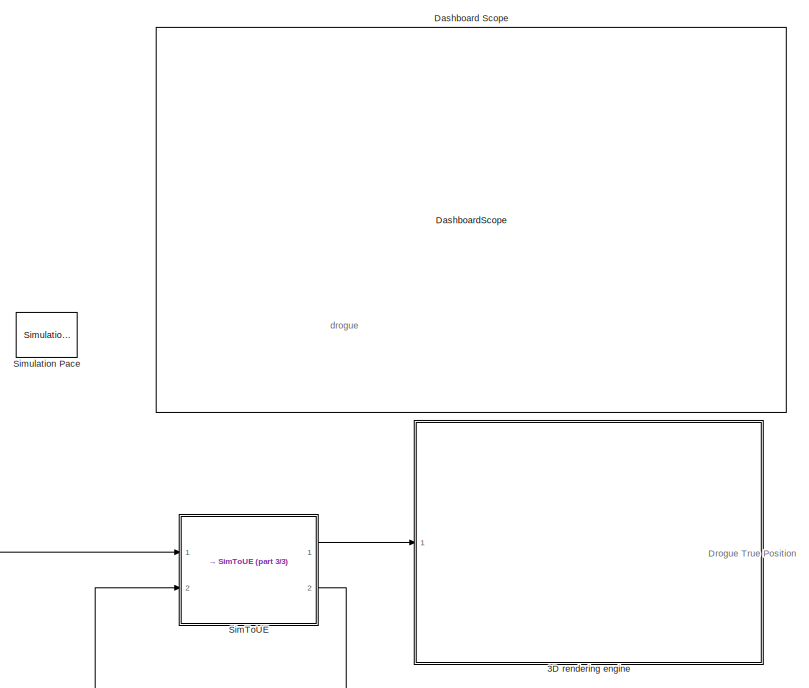
[diagram: root canvas - part 1/3, top right region]
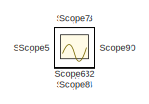
[diagram: root canvas - part 2/3, top left region]
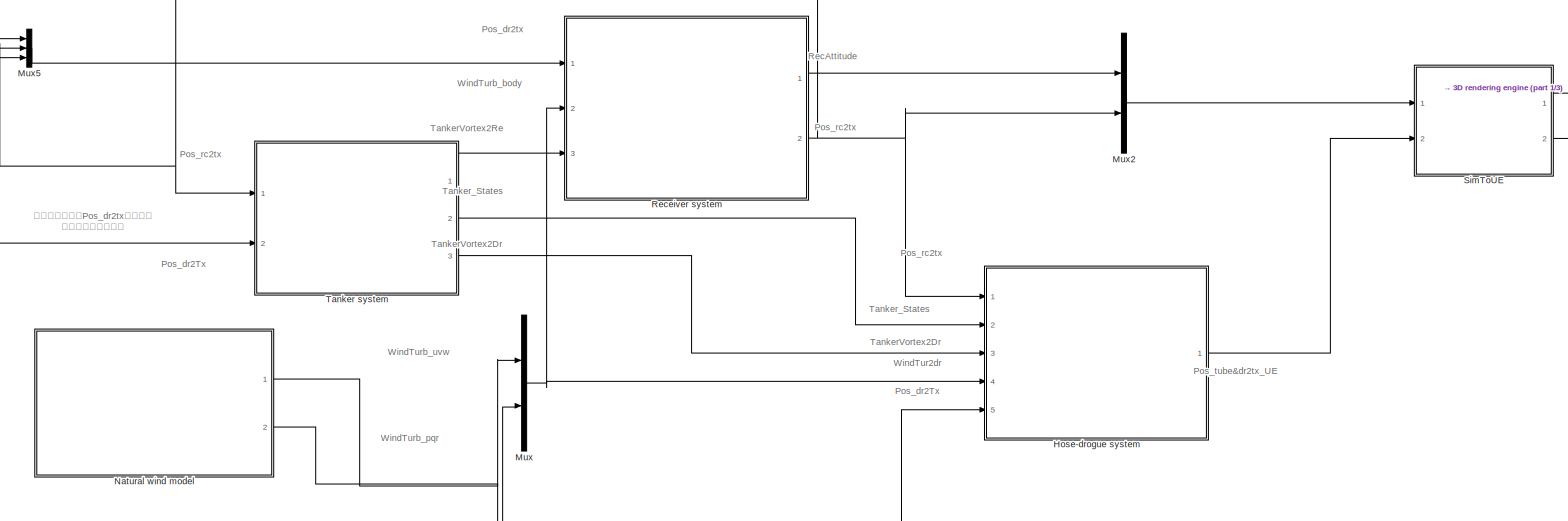
[diagram: root canvas - part 3/3, central region]
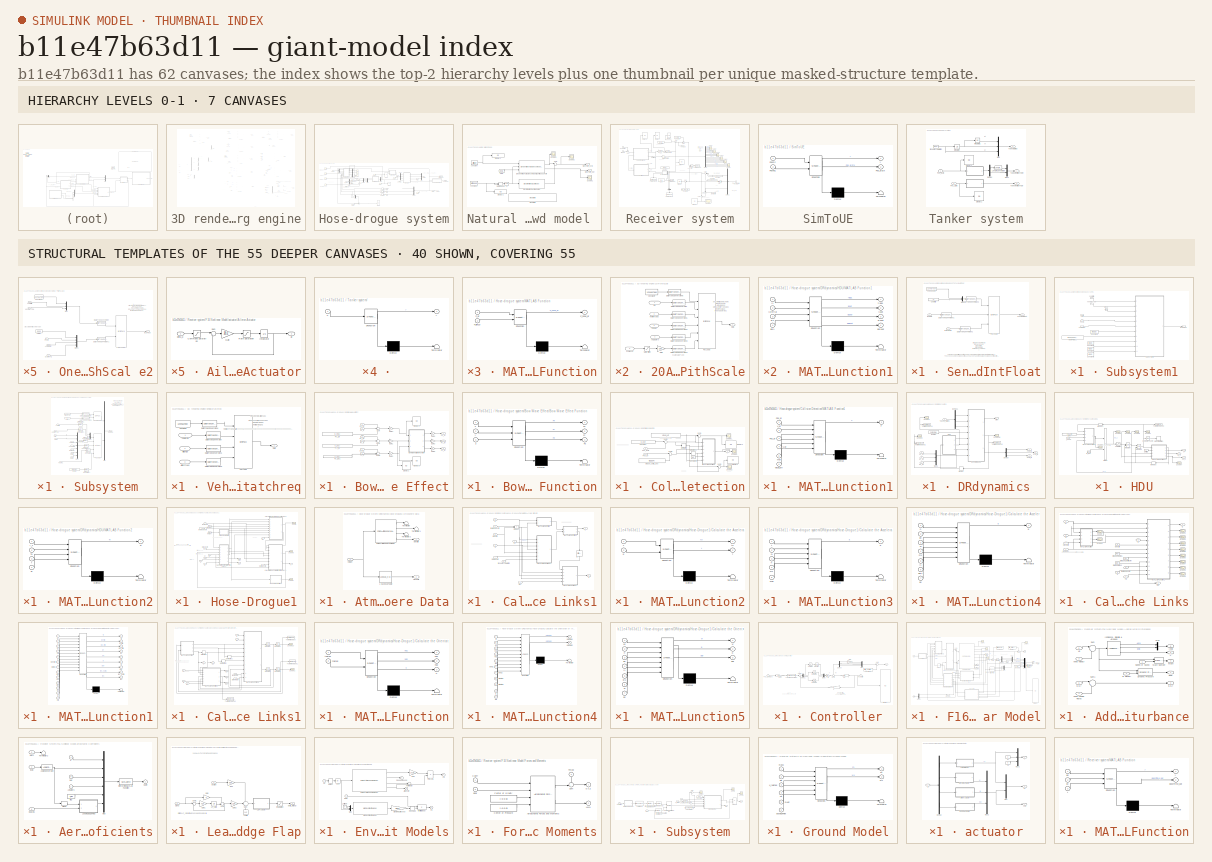
[diagram: thumbnail index - top-2 hierarchy levels (7 canvases) + 40 structural-template representatives of the remaining 55 canvases]
MODEL slx_b11e47b63d11
KIND model
CONFIG AbsTol = 1e-4
CONFIG EnableMultiTasking = on
CONFIG FixedStep = 0.01
CONFIG InitFcn = F16_Init
CONFIG MaxStep = auto
CONFIG MinStep = auto
CONFIG RelTol = 1e-5
CONFIG SampleTimeConstraint = Unconstrained
CONFIG SolverName = ode3
CONFIG StartTime = 0.0
CONFIG StopTime = 270
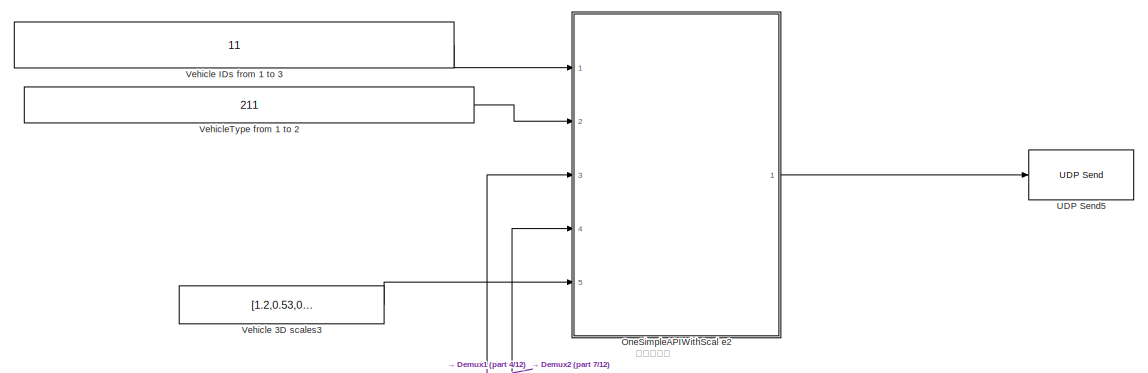
[diagram: 3D rendering engine - part 1/12, top center region]
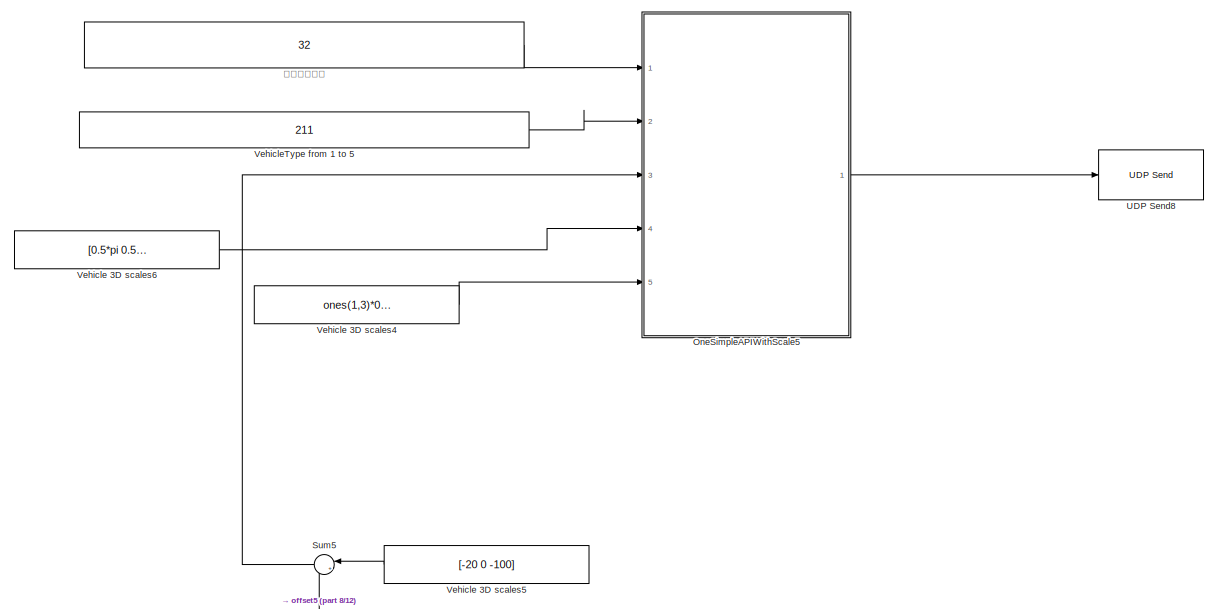
[diagram: 3D rendering engine - part 2/12, top right region]
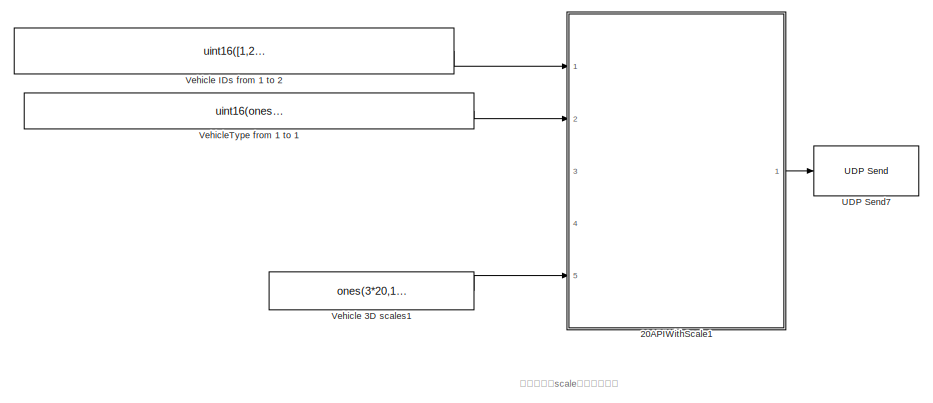
[diagram: 3D rendering engine - part 3/12, top left region]
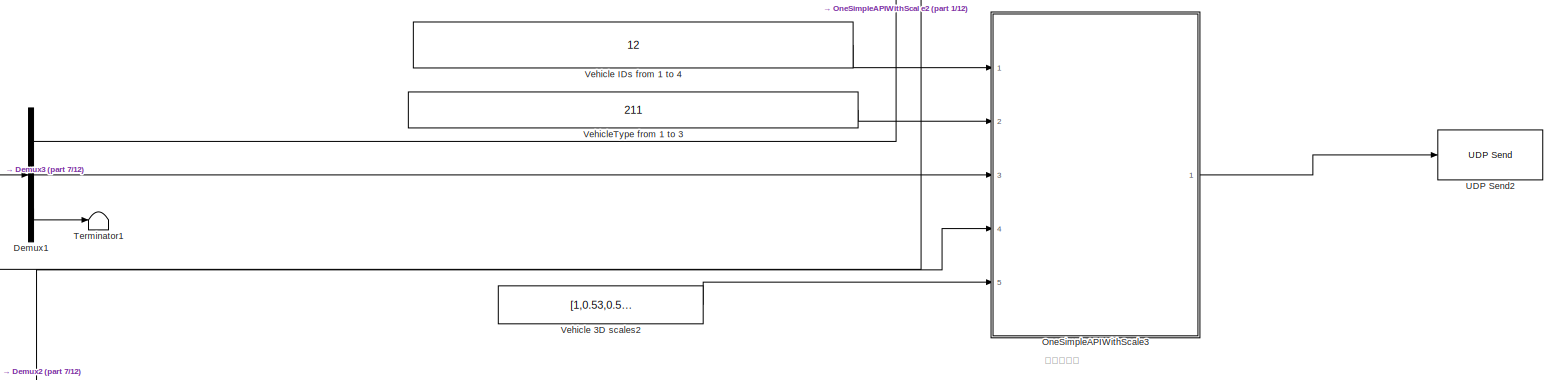
[diagram: 3D rendering engine - part 4/12, top center region]
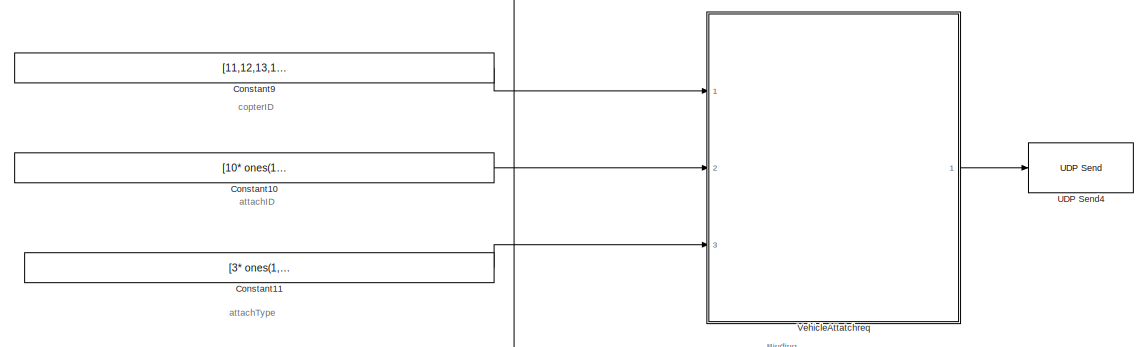
[diagram: 3D rendering engine - part 5/12, middle right region]
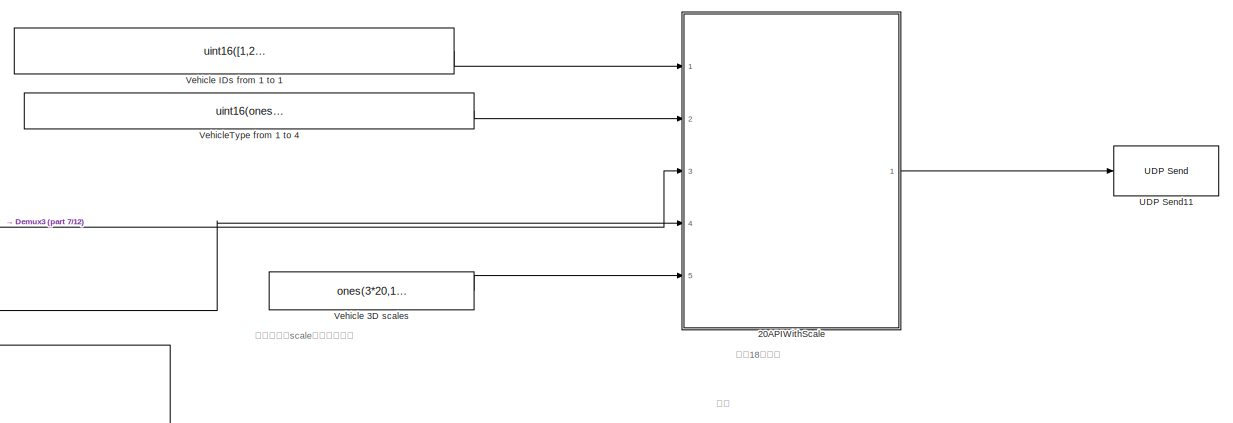
[diagram: 3D rendering engine - part 6/12, central region]
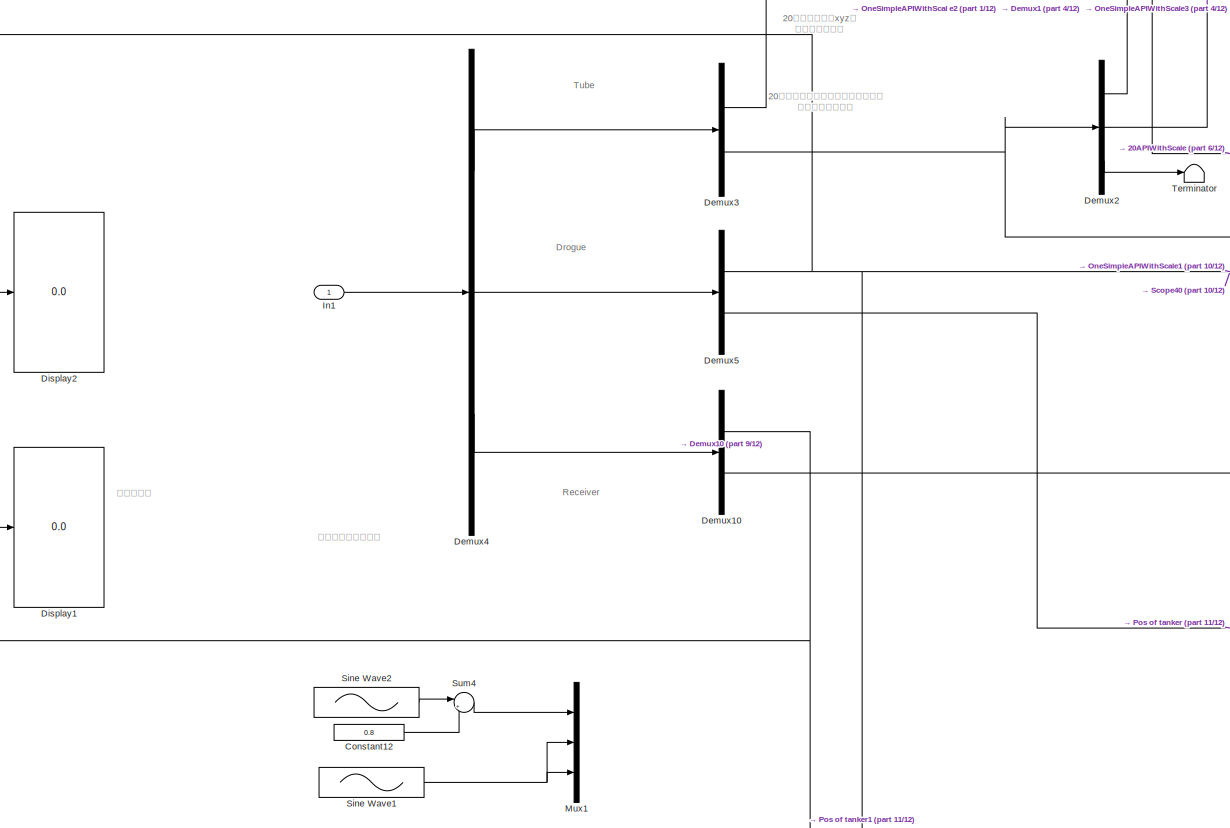
[diagram: 3D rendering engine - part 7/12, middle left region]
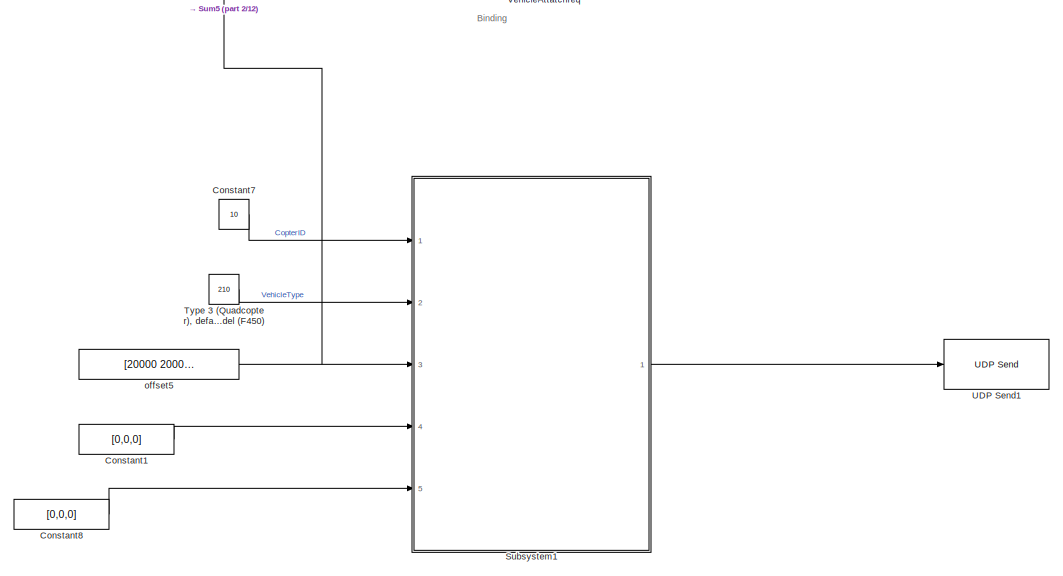
[diagram: 3D rendering engine - part 8/12, middle right region]
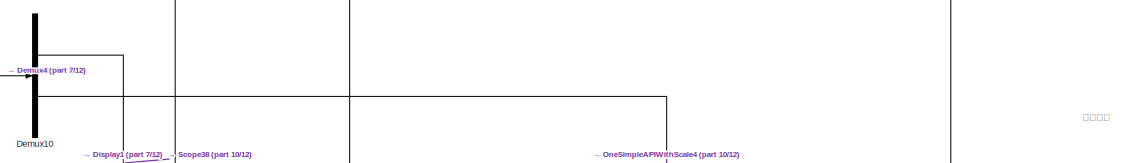
[diagram: 3D rendering engine - part 9/12, middle left region]
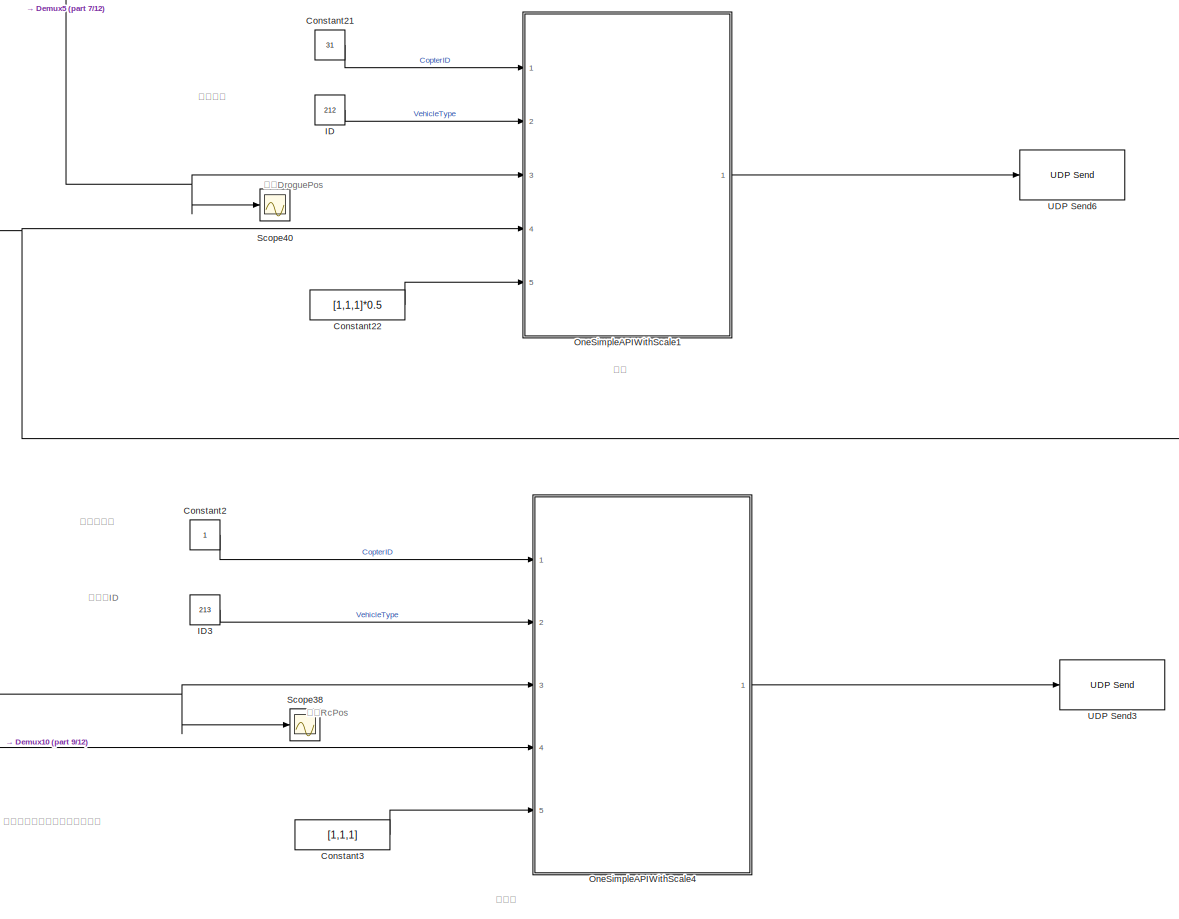
[diagram: 3D rendering engine - part 10/12, central region]
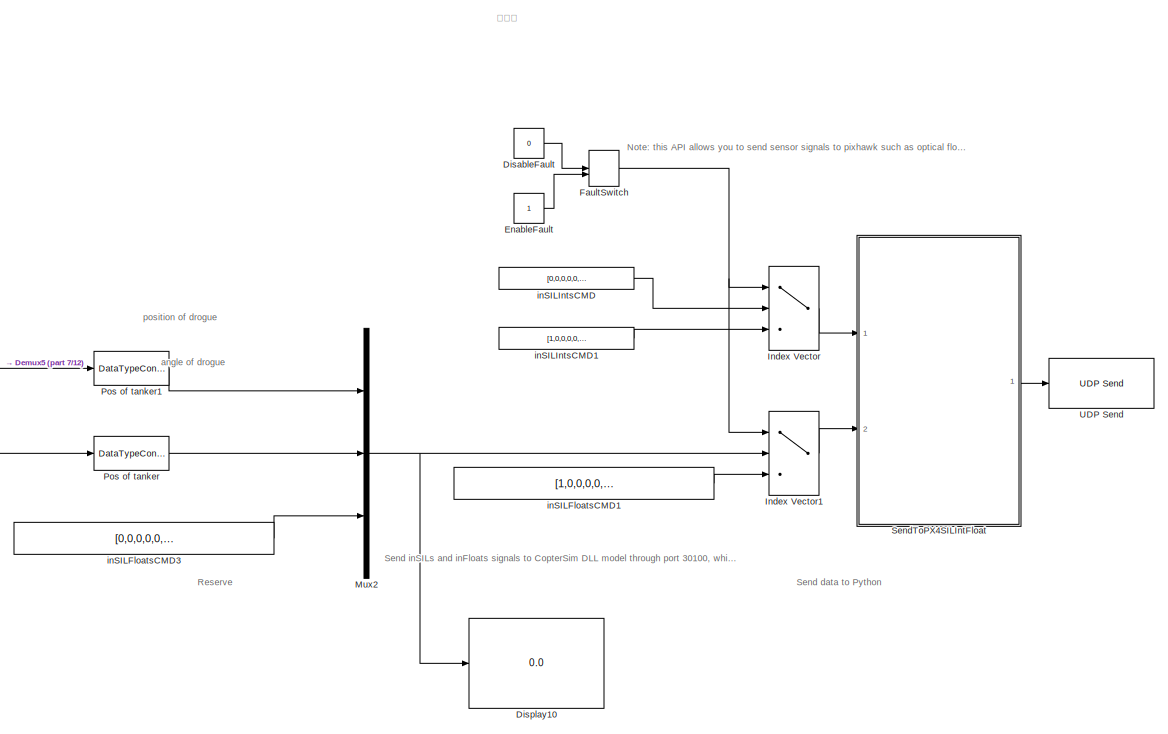
[diagram: 3D rendering engine - part 11/12, bottom right region]
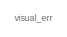
[diagram: 3D rendering engine - part 12/12, bottom center region]
BLOCK [SubSystem] 3D rendering engine
  Ports = [1]
  RequestExecContextInheritance = off
BLOCK [SubSystem] 3D rendering engine/20APIWithScale
  Ports = [5, 1]
  RequestExecContextInheritance = off
BLOCK [Inport] 3D rendering engine/20APIWithScale/AngEulers
  Port = 4
  PortDimensions = 60
BLOCK [Constant] 3D rendering engine/20APIWithScale/Constant7
  Value = 1234567890
BLOCK [DataTypeConversion] 3D rendering engine/20APIWithScale/Data Type Conversion
  OutDataTypeStr = uint16
  RndMeth = Floor
  SaturateOnIntegerOverflow = off
BLOCK [DataTypeConversion] 3D rendering engine/20APIWithScale/Data Type Conversion1
  OutDataTypeStr = uint16
  RndMeth = Floor
  SaturateOnIntegerOverflow = off
BLOCK [DataTypeConversion] 3D rendering engine/20APIWithScale/Data Type Conversion2
  OutDataTypeStr = single
  RndMeth = Floor
  SaturateOnIntegerOverflow = off
BLOCK [DataTypeConversion] 3D rendering engine/20APIWithScale/Data Type Conversion3
  OutDataTypeStr = single
  RndMeth = Floor
  SaturateOnIntegerOverflow = off
BLOCK [DataTypeConversion] 3D rendering engine/20APIWithScale/Data Type Conversion4
  OutDataTypeStr = uint16
  RndMeth = Floor
  SaturateOnIntegerOverflow = off
BLOCK [DataTypeConversion] 3D rendering engine/20APIWithScale/Data Type Conversion5
  OutDataTypeStr = int32
  RndMeth = Floor
  SaturateOnIntegerOverflow = off
BLOCK [Gain] 3D rendering engine/20APIWithScale/Gain
  Gain = 100
BLOCK [Inport] 3D rendering engine/20APIWithScale/IDs
  PortDimensions = 20
BLOCK [Outport] 3D rendering engine/20APIWithScale/Out1
  VectorParamsAs1DForOutWhenUnconnected = off
BLOCK [Reference] 3D rendering engine/20APIWithScale/PayLoad  REF=etargetslib/Byte Pack
  Ports = [6, 1]
  SourceBlock = etargetslib/Byte Pack
  SourceProductBaseCode = ME
  SourceType = Byte pack
BLOCK [Inport] 3D rendering engine/20APIWithScale/PosEs
  Port = 3
  PortDimensions = 60
BLOCK [Saturate] 3D rendering engine/20APIWithScale/Saturation
  LowerLimit = 0.01
  UpperLimit = 655.35
BLOCK [Inport] 3D rendering engine/20APIWithScale/VehileTypes
  Port = 2
  PortDimensions = 20
BLOCK [Inport] 3D rendering engine/20APIWithScale/scaleXYZ
  Port = 5
  PortDimensions = 60
BLOCK [SubSystem] 3D rendering engine/20APIWithScale1
  Commented = on
  Ports = [5, 1]
  RequestExecContextInheritance = off
BLOCK [Inport] 3D rendering engine/20APIWithScale1/AngEulers
  Port = 4
  PortDimensions = 60
BLOCK [Constant] 3D rendering engine/20APIWithScale1/Constant7
  Value = 1234567890
BLOCK [DataTypeConversion] 3D rendering engine/20APIWithScale1/Data Type Conversion
  OutDataTypeStr = uint16
  RndMeth = Floor
  SaturateOnIntegerOverflow = off
BLOCK [DataTypeConversion] 3D rendering engine/20APIWithScale1/Data Type Conversion1
  OutDataTypeStr = uint16
  RndMeth = Floor
  SaturateOnIntegerOverflow = off
BLOCK [DataTypeConversion] 3D rendering engine/20APIWithScale1/Data Type Conversion2
  OutDataTypeStr = single
  RndMeth = Floor
  SaturateOnIntegerOverflow = off
BLOCK [DataTypeConversion] 3D rendering engine/20APIWithScale1/Data Type Conversion3
  OutDataTypeStr = single
  RndMeth = Floor
  SaturateOnIntegerOverflow = off
BLOCK [DataTypeConversion] 3D rendering engine/20APIWithScale1/Data Type Conversion4
  OutDataTypeStr = uint16
  RndMeth = Floor
  SaturateOnIntegerOverflow = off
BLOCK [DataTypeConversion] 3D rendering engine/20APIWithScale1/Data Type Conversion5
  OutDataTypeStr = int32
  RndMeth = Floor
  SaturateOnIntegerOverflow = off
BLOCK [Gain] 3D rendering engine/20APIWithScale1/Gain
  Gain = 100
BLOCK [Inport] 3D rendering engine/20APIWithScale1/IDs
  PortDimensions = 20
BLOCK [Outport] 3D rendering engine/20APIWithScale1/Out1
  VectorParamsAs1DForOutWhenUnconnected = off
BLOCK [Reference] 3D rendering engine/20APIWithScale1/PayLoad  REF=etargetslib/Byte Pack
  Ports = [6, 1]
  SourceBlock = etargetslib/Byte Pack
  SourceProductBaseCode = ME
  SourceType = Byte pack
BLOCK [Inport] 3D rendering engine/20APIWithScale1/PosEs
  Port = 3
  PortDimensions = 60
BLOCK [Saturate] 3D rendering engine/20APIWithScale1/Saturation
  LowerLimit = 0.01
  UpperLimit = 655.35
BLOCK [Inport] 3D rendering engine/20APIWithScale1/VehileTypes
  Port = 2
  PortDimensions = 20
BLOCK [Inport] 3D rendering engine/20APIWithScale1/scaleXYZ
  Port = 5
  PortDimensions = 60
BLOCK [Constant] 3D rendering engine/Constant1
  Value = [0,0,0]
BLOCK [Constant] 3D rendering engine/Constant10
  Value = [10* ones(1,22),zeros(1,3)]
BLOCK [Constant] 3D rendering engine/Constant11
  Value = [3* ones(1,22),zeros(1,3)]
BLOCK [Constant] 3D rendering engine/Constant12
  Commented = on
  Value = 0.8
BLOCK [Constant] 3D rendering engine/Constant2
BLOCK [Constant] 3D rendering engine/Constant21
  Value = 31
BLOCK [Constant] 3D rendering engine/Constant22
  Value = [1,1,1]*0.5
BLOCK [Constant] 3D rendering engine/Constant3
  Value = [1,1,1]
BLOCK [Constant] 3D rendering engine/Constant7
  Value = 10
BLOCK [Constant] 3D rendering engine/Constant8
  Value = [0,0,0]
BLOCK [Constant] 3D rendering engine/Constant9
  Value = [11,12,13,14,15,16,17,18,19,20,21,22,23,24,25,26,27,28,29,30,31,1,zeros(1,3)]
BLOCK [Demux] 3D rendering engine/Demux1
  Outputs = [3,3,54]
  Ports = [1, 3]
BLOCK [Demux] 3D rendering engine/Demux10
  Outputs = [3,3]
  Ports = [1, 2]
BLOCK [Demux] 3D rendering engine/Demux2
  Outputs = [3,3,54]
  Ports = [1, 3]
BLOCK [Demux] 3D rendering engine/Demux3
  Outputs = [60,60]
  Ports = [1, 2]
BLOCK [Demux] 3D rendering engine/Demux4
  Outputs = [120,6,6]
  Ports = [1, 3]
BLOCK [Demux] 3D rendering engine/Demux5
  Outputs = [3,3]
  Ports = [1, 2]
BLOCK [Constant] 3D rendering engine/DisableFault
  Value = 0
BLOCK [Display] 3D rendering engine/Display1
  Decimation = 1
  Ports = [1]
BLOCK [Display] 3D rendering engine/Display10
  Decimation = 1
  Ports = [1]
BLOCK [Display] 3D rendering engine/Display2
  Decimation = 1
  Ports = [1]
BLOCK [Constant] 3D rendering engine/EnableFault
BLOCK [ManualSwitch] 3D rendering engine/FaultSwitch
BLOCK [Constant] 3D rendering engine/ID
  NameLocation = left
  Value = 212
BLOCK [Constant] 3D rendering engine/ID3
  NameLocation = left
  Value = 213
BLOCK [Inport] 3D rendering engine/In1
BLOCK [MultiPortSwitch] 3D rendering engine/Index Vector
  DataPortOrder = Zero-based contiguous
  InputSameDT = off
  Inputs = 2
  Ports = [3, 1]
  SaturateOnIntegerOverflow = off
  zeroidx = on
BLOCK [MultiPortSwitch] 3D rendering engine/Index Vector1
  DataPortOrder = Zero-based contiguous
  InputSameDT = off
  Inputs = 2
  Ports = [3, 1]
  SaturateOnIntegerOverflow = off
  zeroidx = on
BLOCK [Mux] 3D rendering engine/Mux1
  Commented = on
  DisplayOption = bar
  Inputs = 3
  Ports = [3, 1]
BLOCK [Mux] 3D rendering engine/Mux2
  DisplayOption = bar
  Inputs = [3 3 14]
  Ports = [3, 1]
BLOCK [SubSystem] 3D rendering engine/OneSimpleAPIWithScal e2
  Ports = [5, 1]
  RequestExecContextInheritance = off
BLOCK [Inport] 3D rendering engine/OneSimpleAPIWithScal e2/AngEuler
  Port = 4
  PortDimensions = 3
BLOCK [Constant] 3D rendering engine/OneSimpleAPIWithScal e2/Constant7
  Value = 1234567890
BLOCK [DataTypeConversion] 3D rendering engine/OneSimpleAPIWithScal e2/Data Type Conversion
  OutDataTypeStr = int32
  RndMeth = Floor
  SaturateOnIntegerOverflow = off
BLOCK [DataTypeConversion] 3D rendering engine/OneSimpleAPIWithScal e2/Data Type Conversion1
  OutDataTypeStr = single
  RndMeth = Floor
  SaturateOnIntegerOverflow = off
BLOCK [Mux] 3D rendering engine/OneSimpleAPIWithScal e2/Mux
  DisplayOption = bar
  Inputs = 3
  Ports = [3, 1]
BLOCK [Mux] 3D rendering engine/OneSimpleAPIWithScal e2/Mux1
  DisplayOption = bar
  Ports = [4, 1]
BLOCK [Constant] 3D rendering engine/OneSimpleAPIWithScal e2/PWMs
  Value = 3000
BLOCK [Reference] 3D rendering engine/OneSimpleAPIWithScal e2/PayLoad  REF=etargetslib/Byte Pack
  Ports = [2, 1]
  SourceBlock = etargetslib/Byte Pack
  SourceProductBaseCode = ME
  SourceType = Byte pack
BLOCK [Inport] 3D rendering engine/OneSimpleAPIWithScal e2/PosE
  Port = 3
  PortDimensions = 3
BLOCK [Inport] 3D rendering engine/OneSimpleAPIWithScal e2/ScaleXYZ
  Port = 5
  PortDimensions = 3
BLOCK [Inport] 3D rendering engine/OneSimpleAPIWithScal e2/copterID
  PortDimensions = 1
BLOCK [Outport] 3D rendering engine/OneSimpleAPIWithScal e2/toUnReal
  VectorParamsAs1DForOutWhenUnconnected = off
BLOCK [Inport] 3D rendering engine/OneSimpleAPIWithScal e2/vehicleType
  Port = 2
  PortDimensions = 1
BLOCK [SubSystem] 3D rendering engine/OneSimpleAPIWithScale1
  Ports = [5, 1]
  RequestExecContextInheritance = off
BLOCK [Inport] 3D rendering engine/OneSimpleAPIWithScale1/AngEuler
  Port = 4
  PortDimensions = 3
BLOCK [Constant] 3D rendering engine/OneSimpleAPIWithScale1/Constant7
  Value = 1234567890
BLOCK [DataTypeConversion] 3D rendering engine/OneSimpleAPIWithScale1/Data Type Conversion
  OutDataTypeStr = int32
  RndMeth = Floor
  SaturateOnIntegerOverflow = off
BLOCK [DataTypeConversion] 3D rendering engine/OneSimpleAPIWithScale1/Data Type Conversion1
  OutDataTypeStr = single
  RndMeth = Floor
  SaturateOnIntegerOverflow = off
BLOCK [Mux] 3D rendering engine/OneSimpleAPIWithScale1/Mux
  DisplayOption = bar
  Inputs = 3
  Ports = [3, 1]
BLOCK [Mux] 3D rendering engine/OneSimpleAPIWithScale1/Mux1
  DisplayOption = bar
  Ports = [4, 1]
BLOCK [Constant] 3D rendering engine/OneSimpleAPIWithScale1/PWMs
  Value = 3000
BLOCK [Reference] 3D rendering engine/OneSimpleAPIWithScale1/PayLoad  REF=etargetslib/Byte Pack
  Ports = [2, 1]
  SourceBlock = etargetslib/Byte Pack
  SourceProductBaseCode = ME
  SourceType = Byte pack
BLOCK [Inport] 3D rendering engine/OneSimpleAPIWithScale1/PosE
  Port = 3
  PortDimensions = 3
BLOCK [Inport] 3D rendering engine/OneSimpleAPIWithScale1/ScaleXYZ
  Port = 5
  PortDimensions = 3
BLOCK [Inport] 3D rendering engine/OneSimpleAPIWithScale1/copterID
  PortDimensions = 1
BLOCK [Outport] 3D rendering engine/OneSimpleAPIWithScale1/toUnReal
  VectorParamsAs1DForOutWhenUnconnected = off
BLOCK [Inport] 3D rendering engine/OneSimpleAPIWithScale1/vehicleType
  Port = 2
  PortDimensions = 1
BLOCK [SubSystem] 3D rendering engine/OneSimpleAPIWithScale3
  Ports = [5, 1]
  RequestExecContextInheritance = off
BLOCK [Inport] 3D rendering engine/OneSimpleAPIWithScale3/AngEuler
  Port = 4
  PortDimensions = 3
BLOCK [Constant] 3D rendering engine/OneSimpleAPIWithScale3/Constant7
  Value = 1234567890
BLOCK [DataTypeConversion] 3D rendering engine/OneSimpleAPIWithScale3/Data Type Conversion
  OutDataTypeStr = int32
  RndMeth = Floor
  SaturateOnIntegerOverflow = off
BLOCK [DataTypeConversion] 3D rendering engine/OneSimpleAPIWithScale3/Data Type Conversion1
  OutDataTypeStr = single
  RndMeth = Floor
  SaturateOnIntegerOverflow = off
BLOCK [Mux] 3D rendering engine/OneSimpleAPIWithScale3/Mux
  DisplayOption = bar
  Inputs = 3
  Ports = [3, 1]
BLOCK [Mux] 3D rendering engine/OneSimpleAPIWithScale3/Mux1
  DisplayOption = bar
  Ports = [4, 1]
BLOCK [Constant] 3D rendering engine/OneSimpleAPIWithScale3/PWMs
  Value = 3000
BLOCK [Reference] 3D rendering engine/OneSimpleAPIWithScale3/PayLoad  REF=etargetslib/Byte Pack
  Ports = [2, 1]
  SourceBlock = etargetslib/Byte Pack
  SourceProductBaseCode = ME
  SourceType = Byte pack
BLOCK [Inport] 3D rendering engine/OneSimpleAPIWithScale3/PosE
  Port = 3
  PortDimensions = 3
BLOCK [Inport] 3D rendering engine/OneSimpleAPIWithScale3/ScaleXYZ
  Port = 5
  PortDimensions = 3
BLOCK [Inport] 3D rendering engine/OneSimpleAPIWithScale3/copterID
  PortDimensions = 1
BLOCK [Outport] 3D rendering engine/OneSimpleAPIWithScale3/toUnReal
  VectorParamsAs1DForOutWhenUnconnected = off
BLOCK [Inport] 3D rendering engine/OneSimpleAPIWithScale3/vehicleType
  Port = 2
  PortDimensions = 1
BLOCK [SubSystem] 3D rendering engine/OneSimpleAPIWithScale4
  Ports = [5, 1]
  RequestExecContextInheritance = off
BLOCK [Inport] 3D rendering engine/OneSimpleAPIWithScale4/AngEuler
  Port = 4
  PortDimensions = 3
BLOCK [Constant] 3D rendering engine/OneSimpleAPIWithScale4/Constant7
  Value = 1234567890
BLOCK [DataTypeConversion] 3D rendering engine/OneSimpleAPIWithScale4/Data Type Conversion
  OutDataTypeStr = int32
  RndMeth = Floor
  SaturateOnIntegerOverflow = off
BLOCK [DataTypeConversion] 3D rendering engine/OneSimpleAPIWithScale4/Data Type Conversion1
  OutDataTypeStr = single
  RndMeth = Floor
  SaturateOnIntegerOverflow = off
BLOCK [Mux] 3D rendering engine/OneSimpleAPIWithScale4/Mux
  DisplayOption = bar
  Inputs = 3
  Ports = [3, 1]
BLOCK [Mux] 3D rendering engine/OneSimpleAPIWithScale4/Mux1
  DisplayOption = bar
  Ports = [4, 1]
BLOCK [Constant] 3D rendering engine/OneSimpleAPIWithScale4/PWMs
  Value = 3000
BLOCK [Reference] 3D rendering engine/OneSimpleAPIWithScale4/PayLoad  REF=etargetslib/Byte Pack
  Ports = [2, 1]
  SourceBlock = etargetslib/Byte Pack
  SourceProductBaseCode = ME
  SourceType = Byte pack
BLOCK [Inport] 3D rendering engine/OneSimpleAPIWithScale4/PosE
  Port = 3
  PortDimensions = 3
BLOCK [Inport] 3D rendering engine/OneSimpleAPIWithScale4/ScaleXYZ
  Port = 5
  PortDimensions = 3
BLOCK [Inport] 3D rendering engine/OneSimpleAPIWithScale4/copterID
  PortDimensions = 1
BLOCK [Outport] 3D rendering engine/OneSimpleAPIWithScale4/toUnReal
  VectorParamsAs1DForOutWhenUnconnected = off
BLOCK [Inport] 3D rendering engine/OneSimpleAPIWithScale4/vehicleType
  Port = 2
  PortDimensions = 1
BLOCK [SubSystem] 3D rendering engine/OneSimpleAPIWithScale5
  Ports = [5, 1]
  RequestExecContextInheritance = off
BLOCK [Inport] 3D rendering engine/OneSimpleAPIWithScale5/AngEuler
  Port = 4
  PortDimensions = 3
BLOCK [Constant] 3D rendering engine/OneSimpleAPIWithScale5/Constant7
  Value = 1234567890
BLOCK [DataTypeConversion] 3D rendering engine/OneSimpleAPIWithScale5/Data Type Conversion
  OutDataTypeStr = int32
  RndMeth = Floor
  SaturateOnIntegerOverflow = off
BLOCK [DataTypeConversion] 3D rendering engine/OneSimpleAPIWithScale5/Data Type Conversion1
  OutDataTypeStr = single
  RndMeth = Floor
  SaturateOnIntegerOverflow = off
BLOCK [Mux] 3D rendering engine/OneSimpleAPIWithScale5/Mux
  DisplayOption = bar
  Inputs = 3
  Ports = [3, 1]
BLOCK [Mux] 3D rendering engine/OneSimpleAPIWithScale5/Mux1
  DisplayOption = bar
  Ports = [4, 1]
BLOCK [Constant] 3D rendering engine/OneSimpleAPIWithScale5/PWMs
  Value = 3000
BLOCK [Reference] 3D rendering engine/OneSimpleAPIWithScale5/PayLoad  REF=etargetslib/Byte Pack
  Ports = [2, 1]
  SourceBlock = etargetslib/Byte Pack
  SourceProductBaseCode = ME
  SourceType = Byte pack
BLOCK [Inport] 3D rendering engine/OneSimpleAPIWithScale5/PosE
  Port = 3
  PortDimensions = 3
BLOCK [Inport] 3D rendering engine/OneSimpleAPIWithScale5/ScaleXYZ
  Port = 5
  PortDimensions = 3
BLOCK [Inport] 3D rendering engine/OneSimpleAPIWithScale5/copterID
  PortDimensions = 1
BLOCK [Outport] 3D rendering engine/OneSimpleAPIWithScale5/toUnReal
  VectorParamsAs1DForOutWhenUnconnected = off
BLOCK [Inport] 3D rendering engine/OneSimpleAPIWithScale5/vehicleType
  Port = 2
  PortDimensions = 1
BLOCK [DataTypeConversion] 3D rendering engine/Pos of tanker
  OutDataTypeStr = single
  RndMeth = Floor
  SaturateOnIntegerOverflow = off
BLOCK [DataTypeConversion] 3D rendering engine/Pos of tanker1
  OutDataTypeStr = single
  RndMeth = Floor
  SaturateOnIntegerOverflow = off
BLOCK [Scope] 3D rendering engine/Scope38
  Floating = off
  NumInputPorts = 1
  Ports = [1]
  ScopeSpecificationString = Simulink.scopes.TimeScopeBlockCfg('CurrentConfiguration', extmgr.ConfigurationSet(extmgr.Configuration('Core','General UI',true),extmgr.Configuration('Core','Source UI',true),extmgr.Configuration('Sources','WiredSimulink',true,'DataLoggingVariableName','ScopeData5','DataLogging',true,'DataLoggingSaveFormat','StructureWithTime'),extmgr.Configuration('Visuals','Time Domain',true,'SerializedDisplays'...<+1540ch>
BLOCK [Scope] 3D rendering engine/Scope40
  Floating = off
  NumInputPorts = 1
  Ports = [1]
  ScopeSpecificationString = Simulink.scopes.TimeScopeBlockCfg('CurrentConfiguration', extmgr.ConfigurationSet(extmgr.Configuration('Core','General UI',true),extmgr.Configuration('Core','Source UI',true),extmgr.Configuration('Sources','WiredSimulink',true,'DataLoggingVariableName','ScopeData7','DataLogging',true,'DataLoggingSaveFormat','StructureWithTime'),extmgr.Configuration('Visuals','Time Domain',true,'SerializedDisplays'...<+1544ch>
BLOCK [SubSystem] 3D rendering engine/SendToPX4SILIntFloat
  Ports = [2, 1]
  RequestExecContextInheritance = off
BLOCK [Constant] 3D rendering engine/SendToPX4SILIntFloat/CopterID
  OutDataTypeStr = Inherit: Inherit via back propagation
  Value = 10
BLOCK [DataTypeConversion] 3D rendering engine/SendToPX4SILIntFloat/Data Type Conversion1
  OutDataTypeStr = int32
  RndMeth = Floor
  SaturateOnIntegerOverflow = off
BLOCK [DataTypeConversion] 3D rendering engine/SendToPX4SILIntFloat/Data Type Conversion2
  OutDataTypeStr = single
  RndMeth = Floor
  SaturateOnIntegerOverflow = off
BLOCK [DataTypeConversion] 3D rendering engine/SendToPX4SILIntFloat/Data Type Conversion3
  OutDataTypeStr = int32
  RndMeth = Floor
  SaturateOnIntegerOverflow = off
BLOCK [Mux] 3D rendering engine/SendToPX4SILIntFloat/Mux
  DisplayOption = bar
  Inputs = 2
  Ports = [2, 1]
BLOCK [Outport] 3D rendering engine/SendToPX4SILIntFloat/PX4SILIntFloat
  OutDataTypeStr = uint8
  PortDimensions = 120
  VectorParamsAs1DForOutWhenUnconnected = off
BLOCK [Reference] 3D rendering engine/SendToPX4SILIntFloat/PayLoad  REF=etargetslib/Byte Pack
  Ports = [3, 1]
  SourceBlock = etargetslib/Byte Pack
  SourceProductBaseCode = ME
  SourceType = Byte pack
BLOCK [Constant] 3D rendering engine/SendToPX4SILIntFloat/checksum
  OutDataTypeStr = Inherit: Inherit via back propagation
  Value = 1234567897
BLOCK [Inport] 3D rendering engine/SendToPX4SILIntFloat/inSILFloats
  OutDataTypeStr = single
  Port = 2
  PortDimensions = 20
BLOCK [Inport] 3D rendering engine/SendToPX4SILIntFloat/inSILInts
  OutDataTypeStr = int32
  PortDimensions = 8
BLOCK [Sin] 3D rendering engine/Sine Wave1
  Amplitude = 0
  Commented = on
  Ports = [0, 1]
  SampleTime = 0
BLOCK [Sin] 3D rendering engine/Sine Wave2
  Amplitude = 0.8
  Commented = on
  Ports = [0, 1]
  SampleTime = 0
BLOCK [SubSystem] 3D rendering engine/Subsystem1
  Ports = [5, 1]
  RequestExecContextInheritance = off
BLOCK [Inport] 3D rendering engine/Subsystem1/AngEuler
  Port = 4
  PortDimensions = 3
BLOCK [Clock] 3D rendering engine/Subsystem1/Clock
BLOCK [Constant] 3D rendering engine/Subsystem1/Constant1
  Value = [0,0,0,0]
BLOCK [Constant] 3D rendering engine/Subsystem1/Constant3
  Value = [0,0,0]
BLOCK [Constant] 3D rendering engine/Subsystem1/Constant4
  Value = [0,0,0]
BLOCK [Constant] 3D rendering engine/Subsystem1/Constant5
  Value = [0,0,0]
BLOCK [Constant] 3D rendering engine/Subsystem1/MotorPWMs1
  Value = [1000,1000,1000,1000,0,0,0,0]
BLOCK [Inport] 3D rendering engine/Subsystem1/PosE
  Port = 3
  PortDimensions = 3
BLOCK [SubSystem] 3D rendering engine/Subsystem1/Subsystem
  Ports = [11, 1]
  RequestExecContextInheritance = off
BLOCK [Inport] 3D rendering engine/Subsystem1/Subsystem/AccB
  Port = 9
  PortDimensions = 3
BLOCK [Inport] 3D rendering engine/Subsystem1/Subsystem/AngEuler
  Port = 6
  PortDimensions = 3
BLOCK [Inport] 3D rendering engine/Subsystem1/Subsystem/AngQuatern
  Port = 7
  PortDimensions = 4
BLOCK [DataTypeConversion] 3D rendering engine/Subsystem1/Subsystem/Data Type Conversion
  OutDataTypeStr = uint32
  RndMeth = Floor
  SaturateOnIntegerOverflow = off
BLOCK [DataTypeConversion] 3D rendering engine/Subsystem1/Subsystem/Data Type Conversion1
  OutDataTypeStr = int32
  RndMeth = Floor
  SaturateOnIntegerOverflow = off
BLOCK [DataTypeConversion] 3D rendering engine/Subsystem1/Subsystem/Data Type Conversion2
  OutDataTypeStr = int32
  RndMeth = Floor
  SaturateOnIntegerOverflow = off
BLOCK [DataTypeConversion] 3D rendering engine/Subsystem1/Subsystem/Data Type Conversion3
  OutDataTypeStr = int32
  RndMeth = Floor
  SaturateOnIntegerOverflow = off
BLOCK [DataTypeConversion] 3D rendering engine/Subsystem1/Subsystem/Data Type Conversion4
  OutDataTypeStr = double
  RndMeth = Floor
  SaturateOnIntegerOverflow = off
BLOCK [DataTypeConversion] 3D rendering engine/Subsystem1/Subsystem/Data Type Conversion5
  OutDataTypeStr = single
  RndMeth = Floor
  SaturateOnIntegerOverflow = off
BLOCK [DataTypeConversion] 3D rendering engine/Subsystem1/Subsystem/Data Type Conversion6
  OutDataTypeStr = double
  RndMeth = Floor
  SaturateOnIntegerOverflow = off
BLOCK [DataTypeConversion] 3D rendering engine/Subsystem1/Subsystem/Data Type Conversion7
  OutDataTypeStr = double
  RndMeth = Floor
  SaturateOnIntegerOverflow = off
BLOCK [Inport] 3D rendering engine/Subsystem1/Subsystem/MotorRPMS
  Port = 8
  PortDimensions = 8
BLOCK [Mux] 3D rendering engine/Subsystem1/Subsystem/Mux
  DisplayOption = bar
  Inputs = 2
  Ports = [2, 1]
BLOCK [Mux] 3D rendering engine/Subsystem1/Subsystem/Mux1
  DisplayOption = bar
  Inputs = 7
  Ports = [7, 1]
BLOCK [Mux] 3D rendering engine/Subsystem1/Subsystem/Mux2
  DisplayOption = bar
  Inputs = 2
  Ports = [2, 1]
BLOCK [Reference] 3D rendering engine/Subsystem1/Subsystem/Package Head  REF=etargetslib/Byte Pack
  Ports = [2, 1]
  SourceBlock = etargetslib/Byte Pack
  SourceProductBaseCode = ME
  SourceType = Byte pack
BLOCK [Reference] 3D rendering engine/Subsystem1/Subsystem/PayLoad  REF=etargetslib/Byte Pack
  Ports = [5, 1]
  SourceBlock = etargetslib/Byte Pack
  SourceProductBaseCode = ME
  SourceType = Byte pack
BLOCK [Inport] 3D rendering engine/Subsystem1/Subsystem/PosE
  Port = 5
  PortDimensions = 3
BLOCK [Inport] 3D rendering engine/Subsystem1/Subsystem/PosGPS
  Port = 11
  PortDimensions = 3
BLOCK [Inport] 3D rendering engine/Subsystem1/Subsystem/RateB
  Port = 10
  PortDimensions = 3
BLOCK [Constant] 3D rendering engine/Subsystem1/Subsystem/TargetType
  OutDataTypeStr = Inherit: Inherit via back propagation
BLOCK [Inport] 3D rendering engine/Subsystem1/Subsystem/VelE 
  Port = 4
  PortDimensions = 3
BLOCK [Inport] 3D rendering engine/Subsystem1/Subsystem/copterID
  PortDimensions = 1
BLOCK [Constant] 3D rendering engine/Subsystem1/Subsystem/len
  OutDataTypeStr = Inherit: Inherit via back propagation
  Value = 152
BLOCK [Constant] 3D rendering engine/Subsystem1/Subsystem/reserve
  OutDataTypeStr = double
  Value = [0 0 0 0 0]
BLOCK [Inport] 3D rendering engine/Subsystem1/Subsystem/runnedTime
  Port = 3
  PortDimensions = 1
BLOCK [Outport] 3D rendering engine/Subsystem1/Subsystem/toUnReal
  VectorParamsAs1DForOutWhenUnconnected = off
BLOCK [Inport] 3D rendering engine/Subsystem1/Subsystem/vehicleType
  Port = 2
  PortDimensions = 1
BLOCK [Inport] 3D rendering engine/Subsystem1/VelE
  Port = 5
  PortDimensions = 3
BLOCK [Inport] 3D rendering engine/Subsystem1/copterID
  PortDimensions = 1
BLOCK [Outport] 3D rendering engine/Subsystem1/toUnReal
  VectorParamsAs1DForOutWhenUnconnected = off
BLOCK [Inport] 3D rendering engine/Subsystem1/vehicleType
  Port = 2
  PortDimensions = 1
BLOCK [Sum] 3D rendering engine/Sum4
  Commented = on
  Inputs = |++
  Ports = [2, 1]
BLOCK [Sum] 3D rendering engine/Sum5
  Inputs = |++
  Ports = [2, 1]
BLOCK [Terminator] 3D rendering engine/Terminator
BLOCK [Terminator] 3D rendering engine/Terminator1
BLOCK [Constant] 3D rendering engine/Type 3 (Quadcopter), default model (F450)
  Value = 210
BLOCK [Reference] 3D rendering engine/UDP Send  REF=dspnetwork/UDP Send
  Ports = [1]
  SourceBlock = dspnetwork/UDP Send
  SourceProductBaseCode = SL
  SourceType = UDP Send
BLOCK [Reference] 3D rendering engine/UDP Send1  REF=dspnetwork/UDP Send
  Ports = [1]
  SourceBlock = dspnetwork/UDP Send
  SourceProductBaseCode = SL
  SourceType = UDP Send
BLOCK [Reference] 3D rendering engine/UDP Send11  REF=dspnetwork/UDP Send
  Ports = [1]
  SourceBlock = dspnetwork/UDP Send
  SourceProductBaseCode = SL
  SourceType = UDP Send
BLOCK [Reference] 3D rendering engine/UDP Send2  REF=dspnetwork/UDP Send
  Ports = [1]
  SourceBlock = dspnetwork/UDP Send
  SourceProductBaseCode = SL
  SourceType = UDP Send
BLOCK [Reference] 3D rendering engine/UDP Send3  REF=dspnetwork/UDP Send
  Ports = [1]
  SourceBlock = dspnetwork/UDP Send
  SourceProductBaseCode = SL
  SourceType = UDP Send
BLOCK [Reference] 3D rendering engine/UDP Send4  REF=dspnetwork/UDP Send
  Ports = [1]
  SourceBlock = dspnetwork/UDP Send
  SourceProductBaseCode = SL
  SourceType = UDP Send
BLOCK [Reference] 3D rendering engine/UDP Send5  REF=dspnetwork/UDP Send
  Ports = [1]
  SourceBlock = dspnetwork/UDP Send
  SourceProductBaseCode = SL
  SourceType = UDP Send
BLOCK [Reference] 3D rendering engine/UDP Send6  REF=dspnetwork/UDP Send
  Ports = [1]
  SourceBlock = dspnetwork/UDP Send
  SourceProductBaseCode = SL
  SourceType = UDP Send
BLOCK [Reference] 3D rendering engine/UDP Send7  REF=dspnetwork/UDP Send
  Commented = on
  Ports = [1]
  SourceBlock = dspnetwork/UDP Send
  SourceProductBaseCode = SL
  SourceType = UDP Send
BLOCK [Reference] 3D rendering engine/UDP Send8  REF=dspnetwork/UDP Send
  Ports = [1]
  SourceBlock = dspnetwork/UDP Send
  SourceProductBaseCode = SL
  SourceType = UDP Send
BLOCK [Constant] 3D rendering engine/Vehicle 3D scales
  Value = ones(3*20,1)*0.53
BLOCK [Constant] 3D rendering engine/Vehicle 3D scales1
  Commented = on
  Value = ones(3*20,1)*0.53
BLOCK [Constant] 3D rendering engine/Vehicle 3D scales2
  Value = [1,0.53,0.53]
BLOCK [Constant] 3D rendering engine/Vehicle 3D scales3
  Value = [1.2,0.53,0.53]
BLOCK [Constant] 3D rendering engine/Vehicle 3D scales4
  Value = ones(1,3)*0.01
BLOCK [Constant] 3D rendering engine/Vehicle 3D scales5
  NameLocation = top
  Value = [-20 0 -100]
BLOCK [Constant] 3D rendering engine/Vehicle 3D scales6
  Value = [0.5*pi 0.5*pi 0.5*pi]
BLOCK [Constant] 3D rendering engine/Vehicle IDs from 1 to 1
  Value = uint16([1,2,3,4,5,6,7,8,9,10,11,12,13,14,15,16,17,18,19,20]+10)
BLOCK [Constant] 3D rendering engine/Vehicle IDs from 1 to 2
  Commented = on
  Value = uint16([1,2,3,4,5,6,7,8,9,10,11,12,13,14,15,16,17,18,19,20]+10)
BLOCK [Constant] 3D rendering engine/Vehicle IDs from 1 to 3
  Value = 11
BLOCK [Constant] 3D rendering engine/Vehicle IDs from 1 to 4
  Value = 12
BLOCK [SubSystem] 3D rendering engine/VehicleAttatchreq
  Ports = [3, 1]
  RequestExecContextInheritance = off
BLOCK [Inport] 3D rendering engine/VehicleAttatchreq/AttatchIDs
  Port = 2
  PortDimensions = 25
BLOCK [Inport] 3D rendering engine/VehicleAttatchreq/AttatchTypes
  Port = 3
  PortDimensions = 25
BLOCK [Constant] 3D rendering engine/VehicleAttatchreq/Constant7
  Value = 1234567892
BLOCK [Inport] 3D rendering engine/VehicleAttatchreq/CopterIDs
  PortDimensions = 25
BLOCK [DataTypeConversion] 3D rendering engine/VehicleAttatchreq/Data Type Conversion
  OutDataTypeStr = int32
  RndMeth = Floor
  SaturateOnIntegerOverflow = off
BLOCK [DataTypeConversion] 3D rendering engine/VehicleAttatchreq/Data Type Conversion1
  OutDataTypeStr = int32
  RndMeth = Floor
  SaturateOnIntegerOverflow = off
BLOCK [DataTypeConversion] 3D rendering engine/VehicleAttatchreq/Data Type Conversion2
  OutDataTypeStr = int32
  RndMeth = Floor
  SaturateOnIntegerOverflow = off
BLOCK [DataTypeConversion] 3D rendering engine/VehicleAttatchreq/Data Type Conversion4
  OutDataTypeStr = int32
  RndMeth = Floor
  SaturateOnIntegerOverflow = off
BLOCK [Outport] 3D rendering engine/VehicleAttatchreq/Out1
  VectorParamsAs1DForOutWhenUnconnected = off
BLOCK [Reference] 3D rendering engine/VehicleAttatchreq/PayLoad  REF=etargetslib/Byte Pack
  Ports = [4, 1]
  SourceBlock = etargetslib/Byte Pack
  SourceProductBaseCode = ME
  SourceType = Byte pack
BLOCK [Constant] 3D rendering engine/VehicleType from 1 to 1
  Commented = on
  Value = uint16(ones(20,1)*211)
BLOCK [Constant] 3D rendering engine/VehicleType from 1 to 2
  Value = 211
BLOCK [Constant] 3D rendering engine/VehicleType from 1 to 3
  Value = 211
BLOCK [Constant] 3D rendering engine/VehicleType from 1 to 4
  Value = uint16(ones(20,1)*211)
BLOCK [Constant] 3D rendering engine/VehicleType from 1 to 5
  Value = 211
BLOCK [Constant] 3D rendering engine/inSILFloatsCMD1
  OutDataTypeStr = single
  Value = [1,0,0,0,0,0,0,0,0,0,0,0,0,0,0,0,0,0,0,0]
BLOCK [Constant] 3D rendering engine/inSILFloatsCMD3
  OutDataTypeStr = single
  Value = [0,0,0,0,0,0,0,0,0,0,0,0,0,0]
BLOCK [Constant] 3D rendering engine/inSILIntsCMD
  OutDataTypeStr = int32
  Value = [0,0,0,0,0,0,0,1]
BLOCK [Constant] 3D rendering engine/inSILIntsCMD1
  OutDataTypeStr = int32
  Value = [1,0,0,0,0,0,0,0]
BLOCK [Constant] 3D rendering engine/offset5
  Value = [20000 20000 -3000]
BLOCK [Constant] 3D rendering engine/上帝视角观察
  Value = 32
BLOCK [DashboardScope] Dashboard Scope
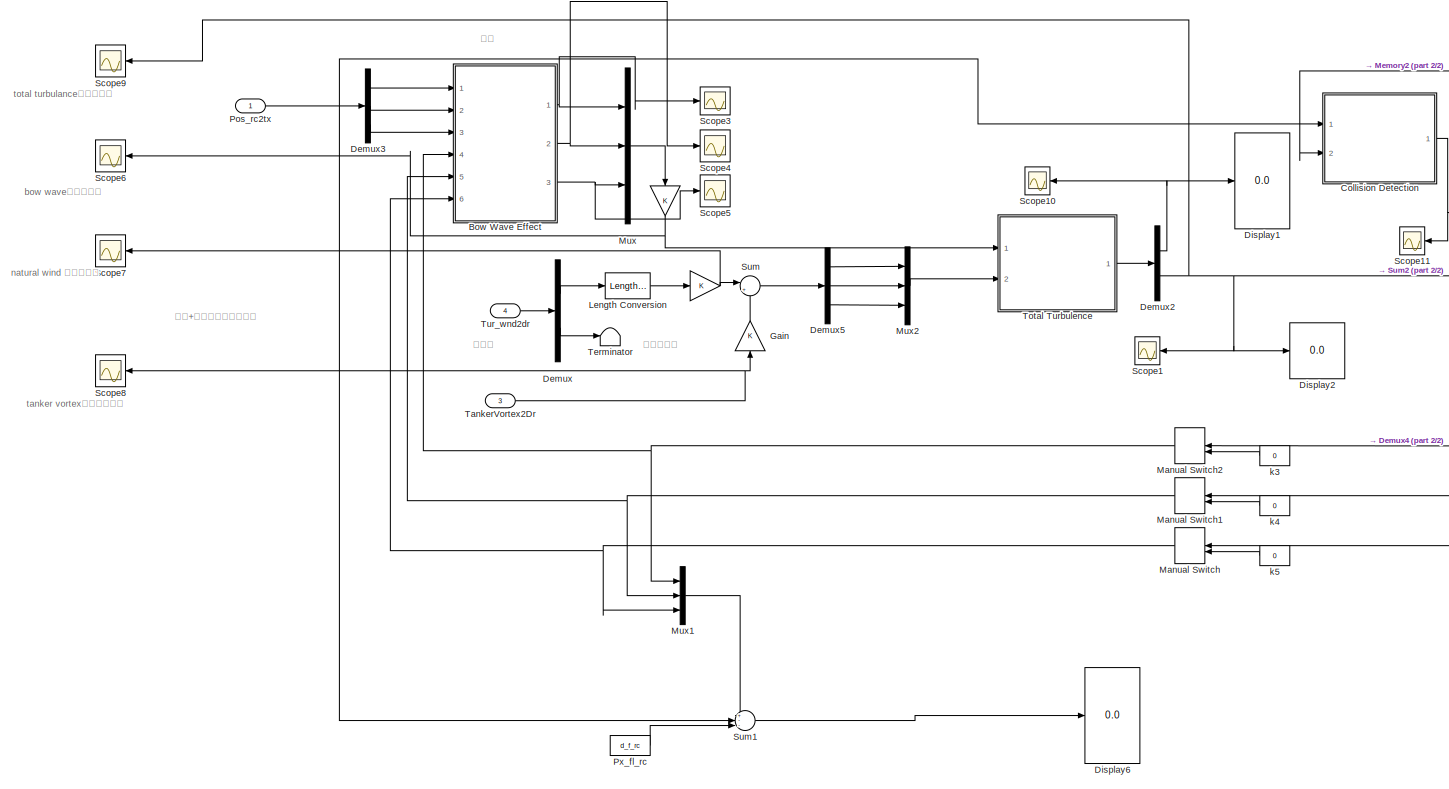
[diagram: Hose-drogue system - part 1/2, left side, full height]
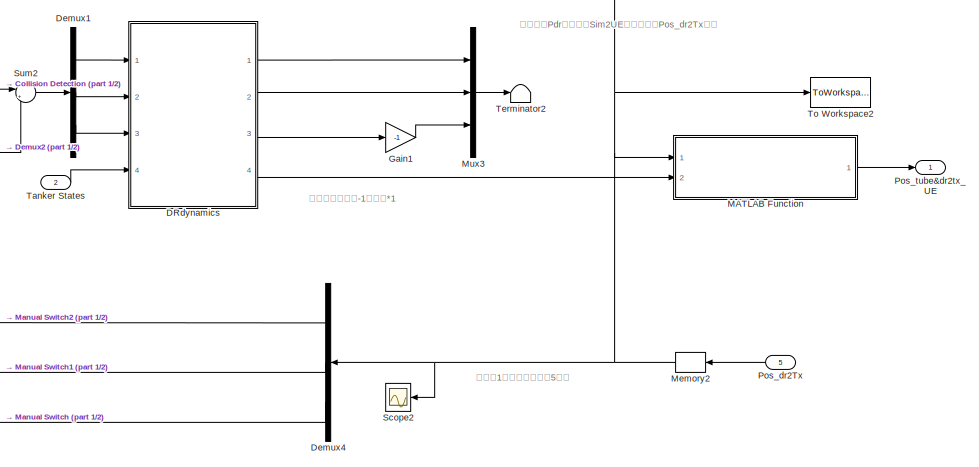
[diagram: Hose-drogue system - part 2/2, middle right region]
BLOCK [SubSystem] Hose-drogue system
  Ports = [5, 1]
  RequestExecContextInheritance = off
BLOCK [Gain] Hose-drogue system/ 
BLOCK [Gain] Hose-drogue system/  
  NameLocation = left
BLOCK [SubSystem] Hose-drogue system/Bow Wave Effect
  Ports = [6, 3]
  RequestExecContextInheritance = off
BLOCK [SubSystem] Hose-drogue system/Bow Wave Effect/Bow Wave Effect Function
  ErrorFcn = Stateflow.Translate.translate
  PermitHierarchicalResolution = ExplicitOnly
  Ports = [3, 3]
  RequestExecContextInheritance = off
  SFBlockType = MATLAB Function
  TreatAsAtomicUnit = on
BLOCK [Demux] Hose-drogue system/Bow Wave Effect/Bow Wave Effect Function/ Demux 
  Outputs = 1
  Ports = [1, 1]
BLOCK [S-Function] Hose-drogue system/Bow Wave Effect/Bow Wave Effect Function/ SFunction 
  EnableBusSupport = on
  FunctionName = sf_sfun
  PortCounts = [3 4]
  Ports = [3, 4]
  SFcnIsStateOwnerBlock = off
  SFunctionDeploymentMode = off
  Tag = Stateflow S-Function 7
BLOCK [Terminator] Hose-drogue system/Bow Wave Effect/Bow Wave Effect Function/ Terminator 
BLOCK [Outport] Hose-drogue system/Bow Wave Effect/Bow Wave Effect Function/Fx
BLOCK [Outport] Hose-drogue system/Bow Wave Effect/Bow Wave Effect Function/Fy
  Port = 2
BLOCK [Outport] Hose-drogue system/Bow Wave Effect/Bow Wave Effect Function/Fz
  Port = 3
BLOCK [Inport] Hose-drogue system/Bow Wave Effect/Bow Wave Effect Function/x
BLOCK [Inport] Hose-drogue system/Bow Wave Effect/Bow Wave Effect Function/y
  Port = 2
BLOCK [Inport] Hose-drogue system/Bow Wave Effect/Bow Wave Effect Function/z
  Port = 3
BLOCK [Display] Hose-drogue system/Bow Wave Effect/Display1
  Decimation = 1
  Ports = [1]
BLOCK [Display] Hose-drogue system/Bow Wave Effect/Display2
  Decimation = 1
  Ports = [1]
BLOCK [Display] Hose-drogue system/Bow Wave Effect/Display3
  Decimation = 1
  Ports = [1]
BLOCK [Outport] Hose-drogue system/Bow Wave Effect/Fx_dr
BLOCK [Outport] Hose-drogue system/Bow Wave Effect/Fy_dr
  Port = 2
BLOCK [Outport] Hose-drogue system/Bow Wave Effect/Fz_dr
  Port = 3
BLOCK [Gain] Hose-drogue system/Bow Wave Effect/Gain1
BLOCK [Gain] Hose-drogue system/Bow Wave Effect/Gain2
BLOCK [Gain] Hose-drogue system/Bow Wave Effect/Gain3
BLOCK [Gain] Hose-drogue system/Bow Wave Effect/Gain4
BLOCK [Gain] Hose-drogue system/Bow Wave Effect/Gain5
BLOCK [Gain] Hose-drogue system/Bow Wave Effect/Gain6
BLOCK [Inport] Hose-drogue system/Bow Wave Effect/Px_dr
  Port = 4
BLOCK [Constant] Hose-drogue system/Bow Wave Effect/Px_fl_rc
  Value = d_f_rc(1)
BLOCK [Inport] Hose-drogue system/Bow Wave Effect/Px_rc
BLOCK [Inport] Hose-drogue system/Bow Wave Effect/Py_dr
  Port = 5
BLOCK [Constant] Hose-drogue system/Bow Wave Effect/Py_fl_rc
  Value = d_f_rc(2)
BLOCK [Inport] Hose-drogue system/Bow Wave Effect/Py_rc
  Port = 2
BLOCK [Inport] Hose-drogue system/Bow Wave Effect/Pz_dr
  Port = 6
BLOCK [Constant] Hose-drogue system/Bow Wave Effect/Pz_fl_rc1
  Value = d_f_rc(3)
BLOCK [Inport] Hose-drogue system/Bow Wave Effect/Pz_rc
  Port = 3
BLOCK [Sum] Hose-drogue system/Bow Wave Effect/Sum
  Inputs = +--
  Ports = [3, 1]
BLOCK [Sum] Hose-drogue system/Bow Wave Effect/Sum1
  Inputs = +--
  Ports = [3, 1]
BLOCK [Sum] Hose-drogue system/Bow Wave Effect/Sum2
  Inputs = +--
  Ports = [3, 1]
BLOCK [SubSystem] Hose-drogue system/Collision Detection
  Ports = [2, 1]
  RequestExecContextInheritance = off
BLOCK [Constant] Hose-drogue system/Collision Detection/Constant
  Value = d_pr_rc
BLOCK [Constant] Hose-drogue system/Collision Detection/Constant1
  Value = Mdr
BLOCK [Derivative] Hose-drogue system/Collision Detection/Derivative
BLOCK [Derivative] Hose-drogue system/Collision Detection/Derivative1
BLOCK [Display] Hose-drogue system/Collision Detection/Display1
  Decimation = 1
  Ports = [1]
BLOCK [Display] Hose-drogue system/Collision Detection/Display6
  Decimation = 1
  Ports = [1]
BLOCK [SubSystem] Hose-drogue system/Collision Detection/MATLAB Function1
  ErrorFcn = Stateflow.Translate.translate
  PermitHierarchicalResolution = ExplicitOnly
  Ports = [6, 1]
  RequestExecContextInheritance = off
  SFBlockType = MATLAB Function
  TreatAsAtomicUnit = on
BLOCK [Demux] Hose-drogue system/Collision Detection/MATLAB Function1/ Demux 
  Outputs = 1
  Ports = [1, 1]
BLOCK [S-Function] Hose-drogue system/Collision Detection/MATLAB Function1/ SFunction 
  EnableBusSupport = on
  FunctionName = sf_sfun
  PortCounts = [6 2]
  Ports = [6, 2]
  SFcnIsStateOwnerBlock = off
  SFunctionDeploymentMode = off
  Tag = Stateflow S-Function 19
BLOCK [Terminator] Hose-drogue system/Collision Detection/MATLAB Function1/ Terminator 
BLOCK [Outport] Hose-drogue system/Collision Detection/MATLAB Function1/F
BLOCK [Inport] Hose-drogue system/Collision Detection/MATLAB Function1/Mdr
  Port = 5
BLOCK [Inport] Hose-drogue system/Collision Detection/MATLAB Function1/Pos_dr
  Port = 3
BLOCK [Inport] Hose-drogue system/Collision Detection/MATLAB Function1/Pos_pr
BLOCK [Inport] Hose-drogue system/Collision Detection/MATLAB Function1/V_dr
  Port = 4
BLOCK [Inport] Hose-drogue system/Collision Detection/MATLAB Function1/V_pr
  Port = 2
BLOCK [Inport] Hose-drogue system/Collision Detection/MATLAB Function1/visual_err
  Port = 6
BLOCK [Inport] Hose-drogue system/Collision Detection/Pos_dr
  Port = 2
BLOCK [Inport] Hose-drogue system/Collision Detection/Pos_rc2tx
BLOCK [Scope] Hose-drogue system/Collision Detection/Scope1
  Floating = off
  NumInputPorts = 1
  Ports = [1]
  ScopeSpecificationString = Simulink.scopes.TimeScopeBlockCfg('CurrentConfiguration', extmgr.ConfigurationSet(extmgr.Configuration('Core','General UI',true),extmgr.Configuration('Core','Source UI',true),extmgr.Configuration('Sources','WiredSimulink',true,'DataLoggingVariableName','ScopeData2'),extmgr.Configuration('Visuals','Time Domain',true,'SerializedDisplays',{struct('MinYLimReal','-2.83906','MaxYLimReal','11.69369','YLa...<+1486ch>
BLOCK [Scope] Hose-drogue system/Collision Detection/Scope2
  Floating = off
  NumInputPorts = 1
  Ports = [1]
  ScopeSpecificationString = Simulink.scopes.TimeScopeBlockCfg('CurrentConfiguration', extmgr.ConfigurationSet(extmgr.Configuration('Core','General UI',true),extmgr.Configuration('Core','Source UI',true),extmgr.Configuration('Sources','WiredSimulink',true,'DataLoggingVariableName','ScopeData1'),extmgr.Configuration('Visuals','Time Domain',true,'SerializedDisplays',{struct('MinYLimReal','-7.63297','MaxYLimReal','8.21035','YLab...<+1443ch>
BLOCK [Scope] Hose-drogue system/Collision Detection/Scope3
  Floating = off
  NumInputPorts = 1
  Ports = [1]
  ScopeSpecificationString = Simulink.scopes.TimeScopeBlockCfg('CurrentConfiguration', extmgr.ConfigurationSet(extmgr.Configuration('Core','General UI',true),extmgr.Configuration('Core','Source UI',true),extmgr.Configuration('Sources','WiredSimulink',true,'DataLoggingVariableName','ScopeData3'),extmgr.Configuration('Visuals','Time Domain',true,'SerializedDisplays',{struct('MinYLimReal','-146.88825','MaxYLimReal','238.87233','...<+1540ch>
BLOCK [Sum] Hose-drogue system/Collision Detection/Sum1
  Inputs = |+-+
  Ports = [3, 1]
BLOCK [Sum] Hose-drogue system/Collision Detection/Sum2
  Inputs = |++
  Ports = [2, 1]
BLOCK [Sum] Hose-drogue system/Collision Detection/Sum3
  Inputs = |+-
  Ports = [2, 1]
BLOCK [Sum] Hose-drogue system/Collision Detection/Sum5
  Inputs = |++
  Ports = [2, 1]
BLOCK [Constant] Hose-drogue system/Collision Detection/drogue_delta_pos
  Value = [0,0,0.04]
BLOCK [Outport] Hose-drogue system/Collision Detection/y
BLOCK [Constant] Hose-drogue system/Collision Detection/修正数据让对接时误差为0
  Value = visual_err
BLOCK [SubSystem] Hose-drogue system/DRdynamics
  Ports = [4, 4]
  RequestExecContextInheritance = off
BLOCK [Demux] Hose-drogue system/DRdynamics/Demux
  Outputs = 3
  Ports = [1, 3]
BLOCK [Demux] Hose-drogue system/DRdynamics/Demux1
  Outputs = 3
  Ports = [1, 3]
BLOCK [Inport] Hose-drogue system/DRdynamics/Fx_dr
BLOCK [Inport] Hose-drogue system/DRdynamics/Fy_dr
  Port = 2
BLOCK [Inport] Hose-drogue system/DRdynamics/Fz_dr
  Port = 3
BLOCK [SubSystem] Hose-drogue system/DRdynamics/HDU
  Ports = [1, 3]
  RequestExecContextInheritance = off
BLOCK [Reference] Hose-drogue system/DRdynamics/HDU/Compare To Zero  REF=simulink/Logic and Bit
Operations/Compare
To Zero
  Commented = on
  Ports = [1, 1]
  SourceBlock = simulink/Logic and Bit\nOperations/Compare\nTo Zero
  SourceProductBaseCode = SL
  SourceType = Compare To Zero
BLOCK [Product] Hose-drogue system/DRdynamics/HDU/Divide
  Inputs = */
  Ports = [2, 1]
BLOCK [Integrator] Hose-drogue system/DRdynamics/HDU/Integrator
  ExternalReset = rising
  LowerSaturationLimit = -0.3
  Ports = [2, 1]
  UpperSaturationLimit = 0.3
BLOCK [Integrator] Hose-drogue system/DRdynamics/HDU/Integrator1
  ExternalReset = rising
  InitialCondition = l1
  Ports = [2, 1]
BLOCK [SubSystem] Hose-drogue system/DRdynamics/HDU/MATLAB Function1
  ErrorFcn = Stateflow.Translate.translate
  PermitHierarchicalResolution = ExplicitOnly
  Ports = [4, 4]
  RequestExecContextInheritance = off
  SFBlockType = MATLAB Function
  TreatAsAtomicUnit = on
BLOCK [Demux] Hose-drogue system/DRdynamics/HDU/MATLAB Function1/ Demux 
  Outputs = 1
  Ports = [1, 1]
BLOCK [S-Function] Hose-drogue system/DRdynamics/HDU/MATLAB Function1/ SFunction 
  EnableBusSupport = on
  FunctionName = sf_sfun
  PortCounts = [4 5]
  Ports = [4, 5]
  SFcnIsStateOwnerBlock = off
  SFunctionDeploymentMode = off
  Tag = Stateflow S-Function 6
BLOCK [Terminator] Hose-drogue system/DRdynamics/HDU/MATLAB Function1/ Terminator 
BLOCK [Inport] Hose-drogue system/DRdynamics/HDU/MATLAB Function1/ddl1
  Port = 4
BLOCK [Outport] Hose-drogue system/DRdynamics/HDU/MATLAB Function1/ddl1out
  Port = 4
BLOCK [Inport] Hose-drogue system/DRdynamics/HDU/MATLAB Function1/dl1
  Port = 3
BLOCK [Outport] Hose-drogue system/DRdynamics/HDU/MATLAB Function1/dl1out
  Port = 3
BLOCK [Outport] Hose-drogue system/DRdynamics/HDU/MATLAB Function1/flag1
BLOCK [Inport] Hose-drogue system/DRdynamics/HDU/MATLAB Function1/l1
BLOCK [Inport] Hose-drogue system/DRdynamics/HDU/MATLAB Function1/l1initial
  Port = 2
BLOCK [Outport] Hose-drogue system/DRdynamics/HDU/MATLAB Function1/l1out
  Port = 2
BLOCK [SubSystem] Hose-drogue system/DRdynamics/HDU/MATLAB Function2
  ErrorFcn = Stateflow.Translate.translate
  PermitHierarchicalResolution = ExplicitOnly
  Ports = [4, 1]
  RequestExecContextInheritance = off
  SFBlockType = MATLAB Function
  TreatAsAtomicUnit = on
BLOCK [Demux] Hose-drogue system/DRdynamics/HDU/MATLAB Function2/ Demux 
  Outputs = 1
  Ports = [1, 1]
BLOCK [S-Function] Hose-drogue system/DRdynamics/HDU/MATLAB Function2/ SFunction 
  EnableBusSupport = on
  FunctionName = sf_sfun
  Parameters = k_reel,kd,l1
  PortCounts = [4 2]
  Ports = [4, 2]
  SFcnIsStateOwnerBlock = off
  SFunctionDeploymentMode = off
  Tag = Stateflow S-Function 10
BLOCK [Terminator] Hose-drogue system/DRdynamics/HDU/MATLAB Function2/ Terminator 
BLOCK [Inport] Hose-drogue system/DRdynamics/HDU/MATLAB Function2/T0
  Port = 2
BLOCK [Outport] Hose-drogue system/DRdynamics/HDU/MATLAB Function2/Tt
BLOCK [Inport] Hose-drogue system/DRdynamics/HDU/MATLAB Function2/dl
  Port = 4
BLOCK [Inport] Hose-drogue system/DRdynamics/HDU/MATLAB Function2/l_1
BLOCK [Inport] Hose-drogue system/DRdynamics/HDU/MATLAB Function2/t
  Port = 3
BLOCK [Memory] Hose-drogue system/DRdynamics/HDU/Memory2
  InitialCondition = l1
BLOCK [Memory] Hose-drogue system/DRdynamics/HDU/Memory3
BLOCK [Saturate] Hose-drogue system/DRdynamics/HDU/Saturation
  LowerLimit = -3
  UpperLimit = 3
BLOCK [Scope] Hose-drogue system/DRdynamics/HDU/Scope1
  Floating = off
  NumInputPorts = 1
  Ports = [1]
  ScopeSpecificationString = Simulink.scopes.TimeScopeBlockCfg('CurrentConfiguration', extmgr.ConfigurationSet(extmgr.Configuration('Core','General UI',true),extmgr.Configuration('Core','Source UI',true),extmgr.Configuration('Sources','WiredSimulink',true,'DataLoggingVariableName','ScopeData12','DataLoggingSaveFormat','StructureWithTime','DataLoggingDecimation','1','DataLoggingDecimateData',true),extmgr.Configuration('Visuals...<+1714ch>
BLOCK [Scope] Hose-drogue system/DRdynamics/HDU/Scope2
  Floating = off
  NumInputPorts = 1
  Ports = [1]
  ScopeSpecificationString = Simulink.scopes.TimeScopeBlockCfg('CurrentConfiguration', extmgr.ConfigurationSet(extmgr.Configuration('Core','General UI',true),extmgr.Configuration('Core','Source UI',true),extmgr.Configuration('Sources','WiredSimulink',true,'DataLoggingVariableName','ScopeData13','DataLoggingSaveFormat','StructureWithTime','DataLoggingDecimation','1','DataLoggingDecimateData',true),extmgr.Configuration('Visuals...<+1697ch>
BLOCK [Scope] Hose-drogue system/DRdynamics/HDU/Scope3
  Floating = off
  NumInputPorts = 1
  Ports = [1]
  ScopeSpecificationString = Simulink.scopes.TimeScopeBlockCfg('CurrentConfiguration', extmgr.ConfigurationSet(extmgr.Configuration('Core','General UI',true),extmgr.Configuration('Core','Source UI',true),extmgr.Configuration('Sources','WiredSimulink',true,'DataLoggingVariableName','ScopeData14','DataLoggingSaveFormat','StructureWithTime','DataLoggingDecimation','1','DataLoggingDecimateData',true),extmgr.Configuration('Visuals...<+1758ch>
BLOCK [Scope] Hose-drogue system/DRdynamics/HDU/Scope5
  Floating = off
  NumInputPorts = 1
  Ports = [1]
  ScopeSpecificationString = C++SS(StrPVP('Location','[5, 48, 1285, 983]'),StrPVP('Open','off'),StrPVP('ZoomMode','yonly'),MxPVP('AxesTitles',54,'struct(''axes1'',''%<SignalLabel>'')'),MxPVP('ScopeGraphics',57,'struct(''FigureColor'',''[0.5 0.5 0.5]'',''AxesColor'',''[0 0 0]'',''AxesTickColor'',''[1 1 1]'',''LineColors'',''[1 1 0;1 0 1;0 1 1;1 0 0;0 1 0;0 0 1]'',''LineStyles'',''-|-|-|-|-|-'',''LineWidths'',''[0.5 0.5 0.5 0.5...<+364ch>
BLOCK [Scope] Hose-drogue system/DRdynamics/HDU/Scope7
  Floating = off
  NumInputPorts = 1
  Ports = [1]
  ScopeSpecificationString = Simulink.scopes.TimeScopeBlockCfg('CurrentConfiguration', extmgr.ConfigurationSet(extmgr.Configuration('Core','General UI',true),extmgr.Configuration('Core','Source UI',true),extmgr.Configuration('Sources','WiredSimulink',true,'DataLoggingVariableName','ScopeData18','DataLoggingSaveFormat','StructureWithTime','DataLoggingDecimation','1','DataLoggingDecimateData',true),extmgr.Configuration('Visuals...<+1743ch>
BLOCK [Scope] Hose-drogue system/DRdynamics/HDU/Scope8
  Floating = off
  NumInputPorts = 1
  Ports = [1]
  ScopeSpecificationString = Simulink.scopes.TimeScopeBlockCfg('CurrentConfiguration', extmgr.ConfigurationSet(extmgr.Configuration('Core','General UI',true),extmgr.Configuration('Core','Source UI',true),extmgr.Configuration('Sources','WiredSimulink',true,'DataLoggingVariableName','ScopeData19','DataLoggingSaveFormat','StructureWithTime','DataLoggingDecimation','1','DataLoggingDecimateData',true),extmgr.Configuration('Visuals...<+1670ch>
BLOCK [Stop] Hose-drogue system/DRdynamics/HDU/Stop Simulation
  Commented = on
BLOCK [ToWorkspace] Hose-drogue system/DRdynamics/HDU/To Workspace3
  MaxDataPoints = inf
  Ports = [1]
  SampleTime = -1
  VariableName = l1
BLOCK [Outport] Hose-drogue system/DRdynamics/HDU/ddl_1
  Port = 3
BLOCK [Outport] Hose-drogue system/DRdynamics/HDU/dl_1
  Port = 2
BLOCK [Constant] Hose-drogue system/DRdynamics/HDU/l1 initial1
  Value = l1
BLOCK [Outport] Hose-drogue system/DRdynamics/HDU/l_1
BLOCK [Constant] Hose-drogue system/DRdynamics/HDU/m_reel
  Value = 68
BLOCK [Inport] Hose-drogue system/DRdynamics/HDU/t_hose
BLOCK [Constant] Hose-drogue system/DRdynamics/HDU/t_reel
  Value = T_reel_initial
BLOCK [SubSystem] Hose-drogue system/DRdynamics/Hose-Drogue1
  Ports = [8, 3]
  RequestExecContextInheritance = off
BLOCK [SubSystem] Hose-drogue system/DRdynamics/Hose-Drogue1/Atmosphere Data
  Ports = [1, 2]
  RequestExecContextInheritance = off
BLOCK [Lookup_n-D] Hose-drogue system/DRdynamics/Hose-Drogue1/Atmosphere Data/1-D Lookup Table
  BreakpointsForDimension1 = [0,1000,2000,3000,4000,5000,6000,7000,8000,9000,10000]
  InputPortMap = u0
  NumberOfTableDimensions = 1
  Ports = [1, 1]
  RndMeth = Simplest
  Table = [1.789e-05,1.749e-05,1.717e-05,1.684e-05,1.652e-05,1.619e-05,1.586e-05,1.552e-05,1.517e-05,1.482e-05,1.447e-05]
BLOCK [Reference] Hose-drogue system/DRdynamics/Hose-Drogue1/Atmosphere Data/COESA Atmosphere Model  REF=aerolibatmos2/COESA Atmosphere Model
  Ports = [1, 4]
  SourceBlock = aerolibatmos2/COESA Atmosphere Model
  SourceProductBaseCode = AE
  SourceType = Atmosphere Model
BLOCK [Terminator] Hose-drogue system/DRdynamics/Hose-Drogue1/Atmosphere Data/Terminator
BLOCK [Terminator] Hose-drogue system/DRdynamics/Hose-Drogue1/Atmosphere Data/Terminator1
BLOCK [Terminator] Hose-drogue system/DRdynamics/Hose-Drogue1/Atmosphere Data/Terminator2
BLOCK [Outport] Hose-drogue system/DRdynamics/Hose-Drogue1/Atmosphere Data/densitiy
BLOCK [Inport] Hose-drogue system/DRdynamics/Hose-Drogue1/Atmosphere Data/height
BLOCK [Outport] Hose-drogue system/DRdynamics/Hose-Drogue1/Atmosphere Data/viscosity
  Port = 2
BLOCK [SubSystem] Hose-drogue system/DRdynamics/Hose-Drogue1/Calculate the Acceleration of the Links1
  Ports = [8, 2]
  RequestExecContextInheritance = off
BLOCK [Inport] Hose-drogue system/DRdynamics/Hose-Drogue1/Calculate the Acceleration of the Links1/DD l1 length
  Port = 7
BLOCK [InitialCondition] Hose-drogue system/DRdynamics/Hose-Drogue1/Calculate the Acceleration of the Links1/IC
  NameLocation = left
  Value = 0
BLOCK [SubSystem] Hose-drogue system/DRdynamics/Hose-Drogue1/Calculate the Acceleration of the Links1/MATLAB Function
  ErrorFcn = Stateflow.Translate.translate
  PermitHierarchicalResolution = ExplicitOnly
  Ports = [2, 1]
  RequestExecContextInheritance = off
  SFBlockType = MATLAB Function
  TreatAsAtomicUnit = on
BLOCK [Demux] Hose-drogue system/DRdynamics/Hose-Drogue1/Calculate the Acceleration of the Links1/MATLAB Function/ Demux 
  Outputs = 1
  Ports = [1, 1]
BLOCK [S-Function] Hose-drogue system/DRdynamics/Hose-Drogue1/Calculate the Acceleration of the Links1/MATLAB Function/ SFunction 
  EnableBusSupport = on
  FunctionName = sf_sfun
  Parameters = N,m0
  PortCounts = [2 2]
  Ports = [2, 2]
  SFcnIsStateOwnerBlock = off
  SFunctionDeploymentMode = off
  Tag = Stateflow S-Function 3
BLOCK [Terminator] Hose-drogue system/DRdynamics/Hose-Drogue1/Calculate the Acceleration of the Links1/MATLAB Function/ Terminator 
BLOCK [Outport] Hose-drogue system/DRdynamics/Hose-Drogue1/Calculate the Acceleration of the Links1/MATLAB Function/T
BLOCK [Inport] Hose-drogue system/DRdynamics/Hose-Drogue1/Calculate the Acceleration of the Links1/MATLAB Function/m1
  Port = 2
BLOCK [Inport] Hose-drogue system/DRdynamics/Hose-Drogue1/Calculate the Acceleration of the Links1/MATLAB Function/n
BLOCK [SubSystem] Hose-drogue system/DRdynamics/Hose-Drogue1/Calculate the Acceleration of the Links1/MATLAB Function2
  ErrorFcn = Stateflow.Translate.translate
  PermitHierarchicalResolution = ExplicitOnly
  Ports = [2, 2]
  RequestExecContextInheritance = off
  SFBlockType = MATLAB Function
  TreatAsAtomicUnit = on
BLOCK [Demux] Hose-drogue system/DRdynamics/Hose-Drogue1/Calculate the Acceleration of the Links1/MATLAB Function2/ Demux 
  Outputs = 1
  Ports = [1, 1]
BLOCK [S-Function] Hose-drogue system/DRdynamics/Hose-Drogue1/Calculate the Acceleration of the Links1/MATLAB Function2/ SFunction 
  EnableBusSupport = on
  FunctionName = sf_sfun
  PortCounts = [2 3]
  Ports = [2, 3]
  SFcnIsStateOwnerBlock = off
  SFunctionDeploymentMode = off
  Tag = Stateflow S-Function 14
BLOCK [Terminator] Hose-drogue system/DRdynamics/Hose-Drogue1/Calculate the Acceleration of the Links1/MATLAB Function2/ Terminator 
BLOCK [Inport] Hose-drogue system/DRdynamics/Hose-Drogue1/Calculate the Acceleration of the Links1/MATLAB Function2/T
BLOCK [Inport] Hose-drogue system/DRdynamics/Hose-Drogue1/Calculate the Acceleration of the Links1/MATLAB Function2/q
  Port = 2
BLOCK [Outport] Hose-drogue system/DRdynamics/Hose-Drogue1/Calculate the Acceleration of the Links1/MATLAB Function2/t
  Port = 2
BLOCK [Outport] Hose-drogue system/DRdynamics/Hose-Drogue1/Calculate the Acceleration of the Links1/MATLAB Function2/t0
BLOCK [SubSystem] Hose-drogue system/DRdynamics/Hose-Drogue1/Calculate the Acceleration of the Links1/MATLAB Function3
  ErrorFcn = Stateflow.Translate.translate
  PermitHierarchicalResolution = ExplicitOnly
  Ports = [5, 1]
  RequestExecContextInheritance = off
  SFBlockType = MATLAB Function
  TreatAsAtomicUnit = on
BLOCK [Demux] Hose-drogue system/DRdynamics/Hose-Drogue1/Calculate the Acceleration of the Links1/MATLAB Function3/ Demux 
  Outputs = 1
  Ports = [1, 1]
BLOCK [S-Function] Hose-drogue system/DRdynamics/Hose-Drogue1/Calculate the Acceleration of the Links1/MATLAB Function3/ SFunction 
  EnableBusSupport = on
  FunctionName = sf_sfun
  Parameters = N,m0
  PortCounts = [5 2]
  Ports = [5, 2]
  SFcnIsStateOwnerBlock = off
  SFunctionDeploymentMode = off
  Tag = Stateflow S-Function 15
BLOCK [Terminator] Hose-drogue system/DRdynamics/Hose-Drogue1/Calculate the Acceleration of the Links1/MATLAB Function3/ Terminator 
BLOCK [Inport] Hose-drogue system/DRdynamics/Hose-Drogue1/Calculate the Acceleration of the Links1/MATLAB Function3/Mdr
  Port = 5
BLOCK [Inport] Hose-drogue system/DRdynamics/Hose-Drogue1/Calculate the Acceleration of the Links1/MATLAB Function3/Q
  Port = 2
BLOCK [Outport] Hose-drogue system/DRdynamics/Hose-Drogue1/Calculate the Acceleration of the Links1/MATLAB Function3/a
BLOCK [Inport] Hose-drogue system/DRdynamics/Hose-Drogue1/Calculate the Acceleration of the Links1/MATLAB Function3/m1
  Port = 4
BLOCK [Inport] Hose-drogue system/DRdynamics/Hose-Drogue1/Calculate the Acceleration of the Links1/MATLAB Function3/n
  Port = 3
BLOCK [Inport] Hose-drogue system/DRdynamics/Hose-Drogue1/Calculate the Acceleration of the Links1/MATLAB Function3/t
BLOCK [SubSystem] Hose-drogue system/DRdynamics/Hose-Drogue1/Calculate the Acceleration of the Links1/MATLAB Function4
  ErrorFcn = Stateflow.Translate.translate
  PermitHierarchicalResolution = ExplicitOnly
  Ports = [7, 1]
  RequestExecContextInheritance = off
  SFBlockType = MATLAB Function
  TreatAsAtomicUnit = on
BLOCK [Demux] Hose-drogue system/DRdynamics/Hose-Drogue1/Calculate the Acceleration of the Links1/MATLAB Function4/ Demux 
  Outputs = 1
  Ports = [1, 1]
BLOCK [S-Function] Hose-drogue system/DRdynamics/Hose-Drogue1/Calculate the Acceleration of the Links1/MATLAB Function4/ SFunction 
  EnableBusSupport = on
  FunctionName = sf_sfun
  Parameters = N,l0,m0
  PortCounts = [7 2]
  Ports = [7, 2]
  SFcnIsStateOwnerBlock = off
  SFunctionDeploymentMode = off
  Tag = Stateflow S-Function 16
BLOCK [Terminator] Hose-drogue system/DRdynamics/Hose-Drogue1/Calculate the Acceleration of the Links1/MATLAB Function4/ Terminator 
BLOCK [Inport] Hose-drogue system/DRdynamics/Hose-Drogue1/Calculate the Acceleration of the Links1/MATLAB Function4/Q
  Port = 3
BLOCK [Inport] Hose-drogue system/DRdynamics/Hose-Drogue1/Calculate the Acceleration of the Links1/MATLAB Function4/a0
  Port = 7
BLOCK [Inport] Hose-drogue system/DRdynamics/Hose-Drogue1/Calculate the Acceleration of the Links1/MATLAB Function4/ddl1
  Port = 6
BLOCK [Inport] Hose-drogue system/DRdynamics/Hose-Drogue1/Calculate the Acceleration of the Links1/MATLAB Function4/dn
  Port = 2
BLOCK [Inport] Hose-drogue system/DRdynamics/Hose-Drogue1/Calculate the Acceleration of the Links1/MATLAB Function4/l1
  Port = 5
BLOCK [Inport] Hose-drogue system/DRdynamics/Hose-Drogue1/Calculate the Acceleration of the Links1/MATLAB Function4/m1
  Port = 4
BLOCK [Inport] Hose-drogue system/DRdynamics/Hose-Drogue1/Calculate the Acceleration of the Links1/MATLAB Function4/n
BLOCK [Outport] Hose-drogue system/DRdynamics/Hose-Drogue1/Calculate the Acceleration of the Links1/MATLAB Function4/q
BLOCK [Inport] Hose-drogue system/DRdynamics/Hose-Drogue1/Calculate the Acceleration of the Links1/Mdr
  Port = 2
BLOCK [Product] Hose-drogue system/DRdynamics/Hose-Drogue1/Calculate the Acceleration of the Links1/Product
  Ports = [2, 1]
BLOCK [Inport] Hose-drogue system/DRdynamics/Hose-Drogue1/Calculate the Acceleration of the Links1/Q
BLOCK [Outport] Hose-drogue system/DRdynamics/Hose-Drogue1/Calculate the Acceleration of the Links1/a
BLOCK [Inport] Hose-drogue system/DRdynamics/Hose-Drogue1/Calculate the Acceleration of the Links1/dn
  NameLocation = top
  Port = 4
BLOCK [Inport] Hose-drogue system/DRdynamics/Hose-Drogue1/Calculate the Acceleration of the Links1/l1 length
  Port = 6
BLOCK [Inport] Hose-drogue system/DRdynamics/Hose-Drogue1/Calculate the Acceleration of the Links1/link line density
  Port = 5
BLOCK [Inport] Hose-drogue system/DRdynamics/Hose-Drogue1/Calculate the Acceleration of the Links1/n
  Port = 3
BLOCK [Outport] Hose-drogue system/DRdynamics/Hose-Drogue1/Calculate the Acceleration of the Links1/t
  Port = 2
BLOCK [Inport] Hose-drogue system/DRdynamics/Hose-Drogue1/Calculate the Acceleration of the Links1/tanker acceleration 
  Port = 8
BLOCK [SubSystem] Hose-drogue system/DRdynamics/Hose-Drogue1/Calculate the External Force of the Links
  Ports = [9, 2]
  RequestExecContextInheritance = off
BLOCK [Constant] Hose-drogue system/DRdynamics/Hose-Drogue1/Calculate the External Force of the Links/Drogue Coeffecint
  Value = Cdr_
BLOCK [Constant] Hose-drogue system/DRdynamics/Hose-Drogue1/Calculate the External Force of the Links/Drogue Mass
  Value = Mdr
BLOCK [Constant] Hose-drogue system/DRdynamics/Hose-Drogue1/Calculate the External Force of the Links/Drogue Radius
  Value = Rdr
BLOCK [Inport] Hose-drogue system/DRdynamics/Hose-Drogue1/Calculate the External Force of the Links/Fb
  Port = 9
BLOCK [SubSystem] Hose-drogue system/DRdynamics/Hose-Drogue1/Calculate the External Force of the Links/MATLAB Function
  ErrorFcn = Stateflow.Translate.translate
  PermitHierarchicalResolution = ExplicitOnly
  Ports = [4, 4]
  RequestExecContextInheritance = off
  SFBlockType = MATLAB Function
  TreatAsAtomicUnit = on
BLOCK [Demux] Hose-drogue system/DRdynamics/Hose-Drogue1/Calculate the External Force of the Links/MATLAB Function/ Demux 
  Outputs = 1
  Ports = [1, 1]
BLOCK [S-Function] Hose-drogue system/DRdynamics/Hose-Drogue1/Calculate the External Force of the Links/MATLAB Function/ SFunction 
  EnableBusSupport = on
  FunctionName = sf_sfun
  Parameters = N
  PortCounts = [4 5]
  Ports = [4, 5]
  SFcnIsStateOwnerBlock = off
  SFunctionDeploymentMode = off
  Tag = Stateflow S-Function 24
BLOCK [Terminator] Hose-drogue system/DRdynamics/Hose-Drogue1/Calculate the External Force of the Links/MATLAB Function/ Terminator 
BLOCK [Outport] Hose-drogue system/DRdynamics/Hose-Drogue1/Calculate the External Force of the Links/MATLAB Function/Cd
  Port = 4
BLOCK [Outport] Hose-drogue system/DRdynamics/Hose-Drogue1/Calculate the External Force of the Links/MATLAB Function/Cf
  Port = 2
BLOCK [Outport] Hose-drogue system/DRdynamics/Hose-Drogue1/Calculate the External Force of the Links/MATLAB Function/Red
  Port = 3
BLOCK [Outport] Hose-drogue system/DRdynamics/Hose-Drogue1/Calculate the External Force of the Links/MATLAB Function/Ref
BLOCK [Inport] Hose-drogue system/DRdynamics/Hose-Drogue1/Calculate the External Force of the Links/MATLAB Function/n
  Port = 2
BLOCK [Inport] Hose-drogue system/DRdynamics/Hose-Drogue1/Calculate the External Force of the Links/MATLAB Function/radius
  Port = 3
BLOCK [Inport] Hose-drogue system/DRdynamics/Hose-Drogue1/Calculate the External Force of the Links/MATLAB Function/viscosity
  Port = 4
BLOCK [Inport] Hose-drogue system/DRdynamics/Hose-Drogue1/Calculate the External Force of the Links/MATLAB Function/vr
BLOCK [SubSystem] Hose-drogue system/DRdynamics/Hose-Drogue1/Calculate the External Force of the Links/MATLAB Function1
  ErrorFcn = Stateflow.Translate.translate
  PermitHierarchicalResolution = ExplicitOnly
  Ports = [13, 9]
  RequestExecContextInheritance = off
  SFBlockType = MATLAB Function
  TreatAsAtomicUnit = on
BLOCK [Demux] Hose-drogue system/DRdynamics/Hose-Drogue1/Calculate the External Force of the Links/MATLAB Function1/ Demux 
  Outputs = 1
  Ports = [1, 1]
BLOCK [S-Function] Hose-drogue system/DRdynamics/Hose-Drogue1/Calculate the External Force of the Links/MATLAB Function1/ SFunction 
  EnableBusSupport = on
  FunctionName = sf_sfun
  Parameters = N,l0
  PortCounts = [13 10]
  Ports = [13, 10]
  SFcnIsStateOwnerBlock = off
  SFunctionDeploymentMode = off
  Tag = Stateflow S-Function 25
BLOCK [Terminator] Hose-drogue system/DRdynamics/Hose-Drogue1/Calculate the External Force of the Links/MATLAB Function1/ Terminator 
BLOCK [Inport] Hose-drogue system/DRdynamics/Hose-Drogue1/Calculate the External Force of the Links/MATLAB Function1/Cd
  Port = 4
BLOCK [Inport] Hose-drogue system/DRdynamics/Hose-Drogue1/Calculate the External Force of the Links/MATLAB Function1/Cdr
  Port = 9
BLOCK [Inport] Hose-drogue system/DRdynamics/Hose-Drogue1/Calculate the External Force of the Links/MATLAB Function1/Cf
  Port = 3
BLOCK [Outport] Hose-drogue system/DRdynamics/Hose-Drogue1/Calculate the External Force of the Links/MATLAB Function1/D
  Port = 6
BLOCK [Outport] Hose-drogue system/DRdynamics/Hose-Drogue1/Calculate the External Force of the Links/MATLAB Function1/Dd
  Port = 5
BLOCK [Outport] Hose-drogue system/DRdynamics/Hose-Drogue1/Calculate the External Force of the Links/MATLAB Function1/Dd_mid
  Port = 3
BLOCK [Outport] Hose-drogue system/DRdynamics/Hose-Drogue1/Calculate the External Force of the Links/MATLAB Function1/Ddr
  Port = 7
BLOCK [Outport] Hose-drogue system/DRdynamics/Hose-Drogue1/Calculate the External Force of the Links/MATLAB Function1/Df
  Port = 4
BLOCK [Outport] Hose-drogue system/DRdynamics/Hose-Drogue1/Calculate the External Force of the Links/MATLAB Function1/Df_mid
  Port = 2
BLOCK [Inport] Hose-drogue system/DRdynamics/Hose-Drogue1/Calculate the External Force of the Links/MATLAB Function1/Fb
  Port = 13
BLOCK [Inport] Hose-drogue system/DRdynamics/Hose-Drogue1/Calculate the External Force of the Links/MATLAB Function1/Mdr
  Port = 10
BLOCK [Outport] Hose-drogue system/DRdynamics/Hose-Drogue1/Calculate the External Force of the Links/MATLAB Function1/Q
BLOCK [Inport] Hose-drogue system/DRdynamics/Hose-Drogue1/Calculate the External Force of the Links/MATLAB Function1/Rdr
  Port = 8
BLOCK [Inport] Hose-drogue system/DRdynamics/Hose-Drogue1/Calculate the External Force of the Links/MATLAB Function1/density
  Port = 6
BLOCK [Outport] Hose-drogue system/DRdynamics/Hose-Drogue1/Calculate the External Force of the Links/MATLAB Function1/fen
  Port = 9
BLOCK [Outport] Hose-drogue system/DRdynamics/Hose-Drogue1/Calculate the External Force of the Links/MATLAB Function1/fen_norm
  Port = 8
BLOCK [Inport] Hose-drogue system/DRdynamics/Hose-Drogue1/Calculate the External Force of the Links/MATLAB Function1/l1
  Port = 5
BLOCK [Inport] Hose-drogue system/DRdynamics/Hose-Drogue1/Calculate the External Force of the Links/MATLAB Function1/n
  Port = 2
BLOCK [Inport] Hose-drogue system/DRdynamics/Hose-Drogue1/Calculate the External Force of the Links/MATLAB Function1/p
  Port = 12
BLOCK [Inport] Hose-drogue system/DRdynamics/Hose-Drogue1/Calculate the External Force of the Links/MATLAB Function1/radius
  Port = 7
BLOCK [Inport] Hose-drogue system/DRdynamics/Hose-Drogue1/Calculate the External Force of the Links/MATLAB Function1/rou
  Port = 11
BLOCK [Inport] Hose-drogue system/DRdynamics/Hose-Drogue1/Calculate the External Force of the Links/MATLAB Function1/vr
BLOCK [Outport] Hose-drogue system/DRdynamics/Hose-Drogue1/Calculate the External Force of the Links/Mdr
  Port = 2
BLOCK [Outport] Hose-drogue system/DRdynamics/Hose-Drogue1/Calculate the External Force of the Links/Q
BLOCK [Scope] Hose-drogue system/DRdynamics/Hose-Drogue1/Calculate the External Force of the Links/Scope
  Floating = off
  NumInputPorts = 1
  Ports = [1]
  ScopeSpecificationString = C++SS(StrPVP('Location','[5, 48, 1285, 983]'),StrPVP('Open','off'),StrPVP('ZoomMode','yonly'),MxPVP('AxesTitles',54,'struct(''axes1'',''%<SignalLabel>'')'),MxPVP('ScopeGraphics',57,'struct(''FigureColor'',''[0.5 0.5 0.5]'',''AxesColor'',''[0 0 0]'',''AxesTickColor'',''[1 1 1]'',''LineColors'',''[1 1 0;1 0 1;0 1 1;1 0 0;0 1 0;0 0 1]'',''LineStyles'',''-|-|-|-|-|-'',''LineWidths'',''[0.5 0.5 0.5 0.5...<+296ch>  <repeated x6 — deduplicated; at blocks: Scope, Scope2, Scope4, Scope5, Scope6, Scope7>
BLOCK [Scope] Hose-drogue system/DRdynamics/Hose-Drogue1/Calculate the External Force of the Links/Scope1
  Floating = off
  NumInputPorts = 1
  Ports = [1]
  ScopeSpecificationString = Simulink.scopes.TimeScopeBlockCfg('CurrentConfiguration', extmgr.ConfigurationSet(extmgr.Configuration('Core','General UI',true),extmgr.Configuration('Core','Source UI',true),extmgr.Configuration('Sources','WiredSimulink',true,'DataLoggingVariableName','ScopeData2','DataLoggingSaveFormat','StructureWithTime','DataLoggingDecimation','1','DataLoggingDecimateData',true),extmgr.Configuration('Visuals'...<+875ch>
BLOCK [Scope] Hose-drogue system/DRdynamics/Hose-Drogue1/Calculate the External Force of the Links/Scope2
  Floating = off
  NumInputPorts = 1
  Ports = [1]
BLOCK [Scope] Hose-drogue system/DRdynamics/Hose-Drogue1/Calculate the External Force of the Links/Scope3
  Floating = off
  NumInputPorts = 1
  Ports = [1]
  ScopeSpecificationString = C++SS(StrPVP('Location','[5, 48, 1285, 983]'),StrPVP('Open','off'),StrPVP('ZoomMode','yonly'),MxPVP('AxesTitles',54,'struct(''axes1'',''%<SignalLabel>'')'),MxPVP('ScopeGraphics',57,'struct(''FigureColor'',''[0.5 0.5 0.5]'',''AxesColor'',''[0 0 0]'',''AxesTickColor'',''[1 1 1]'',''LineColors'',''[1 1 0;1 0 1;0 1 1;1 0 0;0 1 0;0 0 1]'',''LineStyles'',''-|-|-|-|-|-'',''LineWidths'',''[0.5 0.5 0.5 0.5...<+297ch>
BLOCK [Scope] Hose-drogue system/DRdynamics/Hose-Drogue1/Calculate the External Force of the Links/Scope4
  Floating = off
  NumInputPorts = 1
  Ports = [1]
BLOCK [Scope] Hose-drogue system/DRdynamics/Hose-Drogue1/Calculate the External Force of the Links/Scope5
  Floating = off
  NumInputPorts = 1
  Ports = [1]
BLOCK [Scope] Hose-drogue system/DRdynamics/Hose-Drogue1/Calculate the External Force of the Links/Scope6
  Floating = off
  NumInputPorts = 1
  Ports = [1]
BLOCK [Scope] Hose-drogue system/DRdynamics/Hose-Drogue1/Calculate the External Force of the Links/Scope7
  Floating = off
  NumInputPorts = 1
  Ports = [1]
BLOCK [Scope] Hose-drogue system/DRdynamics/Hose-Drogue1/Calculate the External Force of the Links/Scope8
  Floating = off
  NumInputPorts = 1
  Ports = [1]
  ScopeSpecificationString = C++SS(StrPVP('Location','[5, 48, 1285, 983]'),StrPVP('Open','off'),StrPVP('ZoomMode','xonly'),MxPVP('AxesTitles',54,'struct(''axes1'',''%<SignalLabel>'')'),MxPVP('ScopeGraphics',57,'struct(''FigureColor'',''[0.5 0.5 0.5]'',''AxesColor'',''[0 0 0]'',''AxesTickColor'',''[1 1 1]'',''LineColors'',''[1 1 0;1 0 1;0 1 1;1 0 0;0 1 0;0 0 1]'',''LineStyles'',''-|-|-|-|-|-'',''LineWidths'',''[0.5 0.5 0.5 0.5...<+298ch>
BLOCK [Scope] Hose-drogue system/DRdynamics/Hose-Drogue1/Calculate the External Force of the Links/Scope9
  Floating = off
  NumInputPorts = 1
  Ports = [1]
  ScopeSpecificationString = C++SS(StrPVP('Location','[5, 48, 1285, 983]'),StrPVP('Open','off'),StrPVP('ZoomMode','yonly'),MxPVP('AxesTitles',54,'struct(''axes1'',''%<SignalLabel>'')'),MxPVP('ScopeGraphics',57,'struct(''FigureColor'',''[0.5 0.5 0.5]'',''AxesColor'',''[0 0 0]'',''AxesTickColor'',''[1 1 1]'',''LineColors'',''[1 1 0;1 0 1;0 1 1;1 0 0;0 1 0;0 0 1]'',''LineStyles'',''-|-|-|-|-|-'',''LineWidths'',''[0.5 0.5 0.5 0.5...<+297ch>
BLOCK [Inport] Hose-drogue system/DRdynamics/Hose-Drogue1/Calculate the External Force of the Links/density
  Port = 6
BLOCK [Inport] Hose-drogue system/DRdynamics/Hose-Drogue1/Calculate the External Force of the Links/l1
  Port = 3
BLOCK [Inport] Hose-drogue system/DRdynamics/Hose-Drogue1/Calculate the External Force of the Links/link line density
  Port = 5
BLOCK [Inport] Hose-drogue system/DRdynamics/Hose-Drogue1/Calculate the External Force of the Links/link radius
  Port = 4
BLOCK [Inport] Hose-drogue system/DRdynamics/Hose-Drogue1/Calculate the External Force of the Links/n
  Port = 2
BLOCK [Inport] Hose-drogue system/DRdynamics/Hose-Drogue1/Calculate the External Force of the Links/p
  Port = 8
BLOCK [Inport] Hose-drogue system/DRdynamics/Hose-Drogue1/Calculate the External Force of the Links/viscosity
  Port = 7
BLOCK [Inport] Hose-drogue system/DRdynamics/Hose-Drogue1/Calculate the External Force of the Links/vr
BLOCK [SubSystem] Hose-drogue system/DRdynamics/Hose-Drogue1/Calculate the Orientation of the Links1
  Ports = [7, 5]
  RequestExecContextInheritance = off
BLOCK [Inport] Hose-drogue system/DRdynamics/Hose-Drogue1/Calculate the Orientation of the Links1/D link length
  Port = 2
BLOCK [Derivative] Hose-drogue system/DRdynamics/Hose-Drogue1/Calculate the Orientation of the Links1/Derivative
BLOCK [Derivative] Hose-drogue system/DRdynamics/Hose-Drogue1/Calculate the Orientation of the Links1/Derivative1
BLOCK [Derivative] Hose-drogue system/DRdynamics/Hose-Drogue1/Calculate the Orientation of the Links1/Derivative2
BLOCK [Integrator] Hose-drogue system/DRdynamics/Hose-Drogue1/Calculate the Orientation of the Links1/Integrator
  InitialCondition = dtheta10
  Ports = [1, 1]
BLOCK [Integrator] Hose-drogue system/DRdynamics/Hose-Drogue1/Calculate the Orientation of the Links1/Integrator1
  InitialCondition = theta10
  Ports = [1, 1]
BLOCK [Integrator] Hose-drogue system/DRdynamics/Hose-Drogue1/Calculate the Orientation of the Links1/Integrator2
  InitialCondition = dtheta20
  Ports = [1, 1]
BLOCK [Integrator] Hose-drogue system/DRdynamics/Hose-Drogue1/Calculate the Orientation of the Links1/Integrator3
  InitialCondition = theta20
  Ports = [1, 1]
BLOCK [SubSystem] Hose-drogue system/DRdynamics/Hose-Drogue1/Calculate the Orientation of the Links1/MATLAB Function
  ErrorFcn = Stateflow.Translate.translate
  PermitHierarchicalResolution = ExplicitOnly
  Ports = [2, 3]
  RequestExecContextInheritance = off
  SFBlockType = MATLAB Function
  TreatAsAtomicUnit = on
BLOCK [Demux] Hose-drogue system/DRdynamics/Hose-Drogue1/Calculate the Orientation of the Links1/MATLAB Function/ Demux 
  Outputs = 1
  Ports = [1, 1]
BLOCK [S-Function] Hose-drogue system/DRdynamics/Hose-Drogue1/Calculate the Orientation of the Links1/MATLAB Function/ SFunction 
  EnableBusSupport = on
  FunctionName = sf_sfun
  Parameters = N
  PortCounts = [2 4]
  Ports = [2, 4]
  SFcnIsStateOwnerBlock = off
  SFunctionDeploymentMode = off
  Tag = Stateflow S-Function 26
BLOCK [Terminator] Hose-drogue system/DRdynamics/Hose-Drogue1/Calculate the Orientation of the Links1/MATLAB Function/ Terminator 
BLOCK [Outport] Hose-drogue system/DRdynamics/Hose-Drogue1/Calculate the Orientation of the Links1/MATLAB Function/n
  Port = 3
BLOCK [Outport] Hose-drogue system/DRdynamics/Hose-Drogue1/Calculate the Orientation of the Links1/MATLAB Function/nd1
BLOCK [Outport] Hose-drogue system/DRdynamics/Hose-Drogue1/Calculate the Orientation of the Links1/MATLAB Function/nd2
  Port = 2
BLOCK [Inport] Hose-drogue system/DRdynamics/Hose-Drogue1/Calculate the Orientation of the Links1/MATLAB Function/theta1
BLOCK [Inport] Hose-drogue system/DRdynamics/Hose-Drogue1/Calculate the Orientation of the Links1/MATLAB Function/theta2
  Port = 2
BLOCK [SubSystem] Hose-drogue system/DRdynamics/Hose-Drogue1/Calculate the Orientation of the Links1/MATLAB Function4
  ErrorFcn = Stateflow.Translate.translate
  PermitHierarchicalResolution = ExplicitOnly
  Ports = [11, 2]
  RequestExecContextInheritance = off
  SFBlockType = MATLAB Function
  TreatAsAtomicUnit = on
BLOCK [Demux] Hose-drogue system/DRdynamics/Hose-Drogue1/Calculate the Orientation of the Links1/MATLAB Function4/ Demux 
  Outputs = 1
  Ports = [1, 1]
BLOCK [S-Function] Hose-drogue system/DRdynamics/Hose-Drogue1/Calculate the Orientation of the Links1/MATLAB Function4/ SFunction 
  EnableBusSupport = on
  FunctionName = sf_sfun
  Parameters = N,l0
  PortCounts = [11 3]
  Ports = [11, 3]
  SFcnIsStateOwnerBlock = off
  SFunctionDeploymentMode = off
  Tag = Stateflow S-Function 27
BLOCK [Terminator] Hose-drogue system/DRdynamics/Hose-Drogue1/Calculate the Orientation of the Links1/MATLAB Function4/ Terminator 
BLOCK [Inport] Hose-drogue system/DRdynamics/Hose-Drogue1/Calculate the Orientation of the Links1/MATLAB Function4/a
BLOCK [Inport] Hose-drogue system/DRdynamics/Hose-Drogue1/Calculate the Orientation of the Links1/MATLAB Function4/a0
  Port = 2
BLOCK [Outport] Hose-drogue system/DRdynamics/Hose-Drogue1/Calculate the Orientation of the Links1/MATLAB Function4/ddtheta1
BLOCK [Outport] Hose-drogue system/DRdynamics/Hose-Drogue1/Calculate the Orientation of the Links1/MATLAB Function4/ddtheta2
  Port = 2
BLOCK [Inport] Hose-drogue system/DRdynamics/Hose-Drogue1/Calculate the Orientation of the Links1/MATLAB Function4/dl1
  Port = 11
BLOCK [Inport] Hose-drogue system/DRdynamics/Hose-Drogue1/Calculate the Orientation of the Links1/MATLAB Function4/dn
  Port = 5
BLOCK [Inport] Hose-drogue system/DRdynamics/Hose-Drogue1/Calculate the Orientation of the Links1/MATLAB Function4/dnd1
  Port = 6
BLOCK [Inport] Hose-drogue system/DRdynamics/Hose-Drogue1/Calculate the Orientation of the Links1/MATLAB Function4/dnd2
  Port = 7
BLOCK [Inport] Hose-drogue system/DRdynamics/Hose-Drogue1/Calculate the Orientation of the Links1/MATLAB Function4/dtheta1
  Port = 8
BLOCK [Inport] Hose-drogue system/DRdynamics/Hose-Drogue1/Calculate the Orientation of the Links1/MATLAB Function4/dtheta2
  Port = 9
BLOCK [Inport] Hose-drogue system/DRdynamics/Hose-Drogue1/Calculate the Orientation of the Links1/MATLAB Function4/l1
  Port = 10
BLOCK [Inport] Hose-drogue system/DRdynamics/Hose-Drogue1/Calculate the Orientation of the Links1/MATLAB Function4/nd1
  Port = 3
BLOCK [Inport] Hose-drogue system/DRdynamics/Hose-Drogue1/Calculate the Orientation of the Links1/MATLAB Function4/nd2
  Port = 4
BLOCK [SubSystem] Hose-drogue system/DRdynamics/Hose-Drogue1/Calculate the Orientation of the Links1/MATLAB Function5
  ErrorFcn = Stateflow.Translate.translate
  PermitHierarchicalResolution = ExplicitOnly
  Ports = [7, 3]
  RequestExecContextInheritance = off
  SFBlockType = MATLAB Function
  TreatAsAtomicUnit = on
BLOCK [Demux] Hose-drogue system/DRdynamics/Hose-Drogue1/Calculate the Orientation of the Links1/MATLAB Function5/ Demux 
  Outputs = 1
  Ports = [1, 1]
BLOCK [S-Function] Hose-drogue system/DRdynamics/Hose-Drogue1/Calculate the Orientation of the Links1/MATLAB Function5/ SFunction 
  EnableBusSupport = on
  FunctionName = sf_sfun
  Parameters = N,l0
  PortCounts = [7 4]
  Ports = [7, 4]
  SFcnIsStateOwnerBlock = off
  SFunctionDeploymentMode = off
  Tag = Stateflow S-Function 28
BLOCK [Terminator] Hose-drogue system/DRdynamics/Hose-Drogue1/Calculate the Orientation of the Links1/MATLAB Function5/ Terminator 
BLOCK [Inport] Hose-drogue system/DRdynamics/Hose-Drogue1/Calculate the Orientation of the Links1/MATLAB Function5/dl1
  Port = 5
BLOCK [Inport] Hose-drogue system/DRdynamics/Hose-Drogue1/Calculate the Orientation of the Links1/MATLAB Function5/dn
  Port = 3
BLOCK [Inport] Hose-drogue system/DRdynamics/Hose-Drogue1/Calculate the Orientation of the Links1/MATLAB Function5/l1
  Port = 4
BLOCK [Inport] Hose-drogue system/DRdynamics/Hose-Drogue1/Calculate the Orientation of the Links1/MATLAB Function5/n
  Port = 2
BLOCK [Outport] Hose-drogue system/DRdynamics/Hose-Drogue1/Calculate the Orientation of the Links1/MATLAB Function5/p
  Port = 2
BLOCK [Inport] Hose-drogue system/DRdynamics/Hose-Drogue1/Calculate the Orientation of the Links1/MATLAB Function5/p0
  Port = 7
BLOCK [Outport] Hose-drogue system/DRdynamics/Hose-Drogue1/Calculate the Orientation of the Links1/MATLAB Function5/pdr
  Port = 3
BLOCK [Inport] Hose-drogue system/DRdynamics/Hose-Drogue1/Calculate the Orientation of the Links1/MATLAB Function5/v0
BLOCK [Outport] Hose-drogue system/DRdynamics/Hose-Drogue1/Calculate the Orientation of the Links1/MATLAB Function5/vr
BLOCK [Inport] Hose-drogue system/DRdynamics/Hose-Drogue1/Calculate the Orientation of the Links1/MATLAB Function5/w
  Port = 6
BLOCK [Scope] Hose-drogue system/DRdynamics/Hose-Drogue1/Calculate the Orientation of the Links1/Scope1
  Floating = off
  NumInputPorts = 1
  Ports = [1]
  ScopeSpecificationString = Simulink.scopes.TimeScopeBlockCfg('CurrentConfiguration', extmgr.ConfigurationSet(extmgr.Configuration('Core','General UI',true),extmgr.Configuration('Core','Source UI',true),extmgr.Configuration('Sources','WiredSimulink',true,'DataLoggingVariableName','ScopeData32','DataLoggingSaveFormat','StructureWithTime','DataLoggingDecimation','1','DataLoggingDecimateData',true),extmgr.Configuration('Visuals...<+876ch>
BLOCK [Scope] Hose-drogue system/DRdynamics/Hose-Drogue1/Calculate the Orientation of the Links1/Scope10
  Floating = off
  NumInputPorts = 1
  Ports = [1]
  ScopeSpecificationString = Simulink.scopes.TimeScopeBlockCfg('CurrentConfiguration', extmgr.ConfigurationSet(extmgr.Configuration('Core','General UI',true),extmgr.Configuration('Core','Source UI',true),extmgr.Configuration('Sources','WiredSimulink',true,'DataLoggingVariableName','ScopeData31','DataLoggingSaveFormat','StructureWithTime','DataLoggingDecimation','1','DataLoggingDecimateData',true),extmgr.Configuration('Visuals...<+1826ch>
BLOCK [ToWorkspace] Hose-drogue system/DRdynamics/Hose-Drogue1/Calculate the Orientation of the Links1/To Workspace
  FixptAsFi = on
  MaxDataPoints = inf
  Ports = [1]
  SampleTime = -1
  Save2DSignal = 2-D array (concatenate along first dimension)
  VariableName = theta1
BLOCK [ToWorkspace] Hose-drogue system/DRdynamics/Hose-Drogue1/Calculate the Orientation of the Links1/To Workspace1
  FixptAsFi = on
  MaxDataPoints = inf
  Ports = [1]
  SampleTime = -1
  Save2DSignal = 2-D array (concatenate along first dimension)
  VariableName = theta2
BLOCK [ToWorkspace] Hose-drogue system/DRdynamics/Hose-Drogue1/Calculate the Orientation of the Links1/To Workspace2
  FixptAsFi = on
  MaxDataPoints = inf
  Ports = [1]
  SampleTime = -1
  VariableName = P_hose
BLOCK [Inport] Hose-drogue system/DRdynamics/Hose-Drogue1/Calculate the Orientation of the Links1/a
  Port = 3
BLOCK [Inport] Hose-drogue system/DRdynamics/Hose-Drogue1/Calculate the Orientation of the Links1/at
  Port = 4
BLOCK [Outport] Hose-drogue system/DRdynamics/Hose-Drogue1/Calculate the Orientation of the Links1/dn
  Port = 2
BLOCK [Inport] Hose-drogue system/DRdynamics/Hose-Drogue1/Calculate the Orientation of the Links1/link length
BLOCK [Outport] Hose-drogue system/DRdynamics/Hose-Drogue1/Calculate the Orientation of the Links1/n
BLOCK [Outport] Hose-drogue system/DRdynamics/Hose-Drogue1/Calculate the Orientation of the Links1/p
  Port = 4
BLOCK [Outport] Hose-drogue system/DRdynamics/Hose-Drogue1/Calculate the Orientation of the Links1/pdr
  Port = 5
BLOCK [Inport] Hose-drogue system/DRdynamics/Hose-Drogue1/Calculate the Orientation of the Links1/pt
  Port = 7
BLOCK [Outport] Hose-drogue system/DRdynamics/Hose-Drogue1/Calculate the Orientation of the Links1/vr
  Port = 3
BLOCK [Inport] Hose-drogue system/DRdynamics/Hose-Drogue1/Calculate the Orientation of the Links1/vt
  Port = 5
BLOCK [Inport] Hose-drogue system/DRdynamics/Hose-Drogue1/Calculate the Orientation of the Links1/w
  Port = 6
BLOCK [Inport] Hose-drogue system/DRdynamics/Hose-Drogue1/D link length
  Port = 6
BLOCK [Inport] Hose-drogue system/DRdynamics/Hose-Drogue1/DD link length
  Port = 7
BLOCK [Inport] Hose-drogue system/DRdynamics/Hose-Drogue1/Fb
  Port = 8
BLOCK [Constant] Hose-drogue system/DRdynamics/Hose-Drogue1/Height
  Value = height
BLOCK [SubSystem] Hose-drogue system/DRdynamics/Hose-Drogue1/MATLAB Function3
  ErrorFcn = Stateflow.Translate.translate
  PermitHierarchicalResolution = ExplicitOnly
  Ports = [1, 1]
  RequestExecContextInheritance = off
  SFBlockType = MATLAB Function
  TreatAsAtomicUnit = on
BLOCK [Demux] Hose-drogue system/DRdynamics/Hose-Drogue1/MATLAB Function3/ Demux 
  Outputs = 1
  Ports = [1, 1]
BLOCK [S-Function] Hose-drogue system/DRdynamics/Hose-Drogue1/MATLAB Function3/ SFunction 
  EnableBusSupport = on
  FunctionName = sf_sfun
  Parameters = N
  PortCounts = [1 2]
  Ports = [1, 2]
  SFcnIsStateOwnerBlock = off
  SFunctionDeploymentMode = off
  Tag = Stateflow S-Function 29
BLOCK [Terminator] Hose-drogue system/DRdynamics/Hose-Drogue1/MATLAB Function3/ Terminator 
BLOCK [Outport] Hose-drogue system/DRdynamics/Hose-Drogue1/MATLAB Function3/alpha
BLOCK [Inport] Hose-drogue system/DRdynamics/Hose-Drogue1/MATLAB Function3/n
BLOCK [Scope] Hose-drogue system/DRdynamics/Hose-Drogue1/Scope
  Floating = off
  NumInputPorts = 1
  Ports = [1]
  ScopeSpecificationString = Simulink.scopes.TimeScopeBlockCfg('CurrentConfiguration', extmgr.ConfigurationSet(extmgr.Configuration('Core','General UI',true),extmgr.Configuration('Core','Source UI',true),extmgr.Configuration('Sources','WiredSimulink',true,'DataLoggingSaveFormat','StructureWithTime','DataLoggingDecimation','1','DataLoggingDecimateData',true),extmgr.Configuration('Visuals','Time Domain',true,'SerializedDisplays...<+3113ch>
BLOCK [Scope] Hose-drogue system/DRdynamics/Hose-Drogue1/Scope1
  Floating = off
  NumInputPorts = 1
  Ports = [1]
  ScopeSpecificationString = Simulink.scopes.TimeScopeBlockCfg('CurrentConfiguration', extmgr.ConfigurationSet(extmgr.Configuration('Core','General UI',true),extmgr.Configuration('Core','Source UI',true),extmgr.Configuration('Sources','WiredSimulink',true,'DataLoggingVariableName','ScopeData12','DataLoggingSaveFormat','StructureWithTime','DataLoggingDecimation','1','DataLoggingDecimateData',true),extmgr.Configuration('Visuals...<+1876ch>
BLOCK [Scope] Hose-drogue system/DRdynamics/Hose-Drogue1/Scope8
  Floating = off
  NumInputPorts = 1
  Ports = [1]
  ScopeSpecificationString = Simulink.scopes.TimeScopeBlockCfg('CurrentConfiguration', extmgr.ConfigurationSet(extmgr.Configuration('Core','General UI',true),extmgr.Configuration('Core','Source UI',true),extmgr.Configuration('Sources','WiredSimulink',true,'DataLoggingVariableName','ScopeData9','DataLoggingSaveFormat','StructureWithTime','DataLoggingDecimation','1','DataLoggingDecimateData',true),extmgr.Configuration('Visuals'...<+3101ch>
BLOCK [Inport] Hose-drogue system/DRdynamics/Hose-Drogue1/at
  Port = 3
BLOCK [Inport] Hose-drogue system/DRdynamics/Hose-Drogue1/link length
  Port = 5
BLOCK [Constant] Hose-drogue system/DRdynamics/Hose-Drogue1/link line density
  Value = l_density
BLOCK [Constant] Hose-drogue system/DRdynamics/Hose-Drogue1/link radius
  Value = Rl
BLOCK [Outport] Hose-drogue system/DRdynamics/Hose-Drogue1/p link
BLOCK [Outport] Hose-drogue system/DRdynamics/Hose-Drogue1/pdr
  Port = 3
BLOCK [Inport] Hose-drogue system/DRdynamics/Hose-Drogue1/pt
BLOCK [Outport] Hose-drogue system/DRdynamics/Hose-Drogue1/t
  Port = 2
BLOCK [Inport] Hose-drogue system/DRdynamics/Hose-Drogue1/vt
  Port = 2
BLOCK [Inport] Hose-drogue system/DRdynamics/Hose-Drogue1/w
  Port = 4
BLOCK [Memory] Hose-drogue system/DRdynamics/Memory
  InitialCondition = T_reel_initial
BLOCK [Mux] Hose-drogue system/DRdynamics/Mux1
  DisplayOption = bar
  Inputs = 3
  Ports = [3, 1]
BLOCK [Outport] Hose-drogue system/DRdynamics/Pxdr_tk
BLOCK [Outport] Hose-drogue system/DRdynamics/Pydr_tk
  Port = 2
BLOCK [Outport] Hose-drogue system/DRdynamics/Pzdr_tk
  Port = 3
BLOCK [Scope] Hose-drogue system/DRdynamics/Scope1
  Floating = off
  NumInputPorts = 1
  Ports = [1]
  ScopeSpecificationString = Simulink.scopes.TimeScopeBlockCfg('CurrentConfiguration', extmgr.ConfigurationSet(extmgr.Configuration('Core','General UI',true),extmgr.Configuration('Core','Source UI',true),extmgr.Configuration('Sources','WiredSimulink',true,'DataLoggingVariableName','ScopeData3','DataLoggingSaveFormat','StructureWithTime','DataLoggingDecimation','1','DataLoggingDecimateData',true),extmgr.Configuration('Visuals'...<+1741ch>
BLOCK [Scope] Hose-drogue system/DRdynamics/Scope2
  Floating = off
  NumInputPorts = 1
  Ports = [1]
  ScopeSpecificationString = Simulink.scopes.TimeScopeBlockCfg('CurrentConfiguration', extmgr.ConfigurationSet(extmgr.Configuration('Core','General UI',true),extmgr.Configuration('Core','Source UI',true),extmgr.Configuration('Sources','WiredSimulink',true,'DataLoggingVariableName','ScopeData4','DataLoggingSaveFormat','StructureWithTime','DataLoggingDecimation','1','DataLoggingDecimateData',true),extmgr.Configuration('Visuals'...<+1768ch>
BLOCK [Scope] Hose-drogue system/DRdynamics/Scope38
  Floating = off
  NumInputPorts = 1
  Ports = [1]
  ScopeSpecificationString = Simulink.scopes.TimeScopeBlockCfg('CurrentConfiguration', extmgr.ConfigurationSet(extmgr.Configuration('Core','General UI',true),extmgr.Configuration('Core','Source UI',true),extmgr.Configuration('Sources','WiredSimulink',true,'DataLoggingVariableName','ScopeData11','DataLoggingSaveFormat','StructureWithTime','DataLoggingDecimation','1','DataLoggingDecimateData',true),extmgr.Configuration('Visuals...<+1769ch>
BLOCK [Inport] Hose-drogue system/DRdynamics/Tanker_States
  Port = 4
BLOCK [ToWorkspace] Hose-drogue system/DRdynamics/To Workspace1
  MaxDataPoints = inf
  Ports = [1]
  SampleTime = -1
  VariableName = dl_1
BLOCK [ToWorkspace] Hose-drogue system/DRdynamics/To Workspace2
  MaxDataPoints = inf
  Ports = [1]
  SampleTime = -1
  VariableName = ddl_1
BLOCK [ToWorkspace] Hose-drogue system/DRdynamics/To Workspace3
  MaxDataPoints = inf
  Ports = [1]
  SampleTime = -1
  VariableName = T_hose
BLOCK [Constant] Hose-drogue system/DRdynamics/length2
  Value = zeros(3,N)
BLOCK [Outport] Hose-drogue system/DRdynamics/plink
  Port = 4
BLOCK [Demux] Hose-drogue system/Demux
  Outputs = 2
  Ports = [1, 2]
BLOCK [Demux] Hose-drogue system/Demux1
  Outputs = 3
  Ports = [1, 3]
BLOCK [Demux] Hose-drogue system/Demux2
  Outputs = [3,3]
  Ports = [1, 2]
BLOCK [Demux] Hose-drogue system/Demux3
  Outputs = 3
  Ports = [1, 3]
BLOCK [Demux] Hose-drogue system/Demux4
  NameLocation = top
  Outputs = 3
  Ports = [1, 3]
BLOCK [Demux] Hose-drogue system/Demux5
  Outputs = [1,1,1]
  Ports = [1, 3]
BLOCK [Display] Hose-drogue system/Display1
  Decimation = 1
  Ports = [1]
BLOCK [Display] Hose-drogue system/Display2
  Decimation = 1
  Ports = [1]
BLOCK [Display] Hose-drogue system/Display6
  Decimation = 1
  Ports = [1]
BLOCK [Gain] Hose-drogue system/Gain
  NameLocation = right
BLOCK [Gain] Hose-drogue system/Gain1
  Gain = -1
BLOCK [Reference] Hose-drogue system/Length Conversion  REF=aerolibconvert2/Length Conversion
  Ports = [1, 1]
  SourceBlock = aerolibconvert2/Length Conversion
  SourceProductBaseCode = AE
  SourceType = Length Conversion
BLOCK [SubSystem] Hose-drogue system/MATLAB Function
  ErrorFcn = Stateflow.Translate.translate
  PermitHierarchicalResolution = ExplicitOnly
  Ports = [2, 1]
  RequestExecContextInheritance = off
  SFBlockType = MATLAB Function
  TreatAsAtomicUnit = on
BLOCK [Demux] Hose-drogue system/MATLAB Function/ Demux 
  Outputs = 1
  Ports = [1, 1]
BLOCK [S-Function] Hose-drogue system/MATLAB Function/ SFunction 
  EnableBusSupport = on
  FunctionName = sf_sfun
  PortCounts = [2 2]
  Ports = [2, 2]
  SFcnIsStateOwnerBlock = off
  SFunctionDeploymentMode = off
  Tag = Stateflow S-Function 20
BLOCK [Terminator] Hose-drogue system/MATLAB Function/ Terminator 
BLOCK [Inport] Hose-drogue system/MATLAB Function/P_dr
BLOCK [Outport] Hose-drogue system/MATLAB Function/P_hose_dr
BLOCK [Inport] Hose-drogue system/MATLAB Function/P_link10
  Port = 2
BLOCK [ManualSwitch] Hose-drogue system/Manual Switch
BLOCK [ManualSwitch] Hose-drogue system/Manual Switch1
BLOCK [ManualSwitch] Hose-drogue system/Manual Switch2
BLOCK [Memory] Hose-drogue system/Memory2
  InitialCondition = l1
BLOCK [Mux] Hose-drogue system/Mux
  DisplayOption = bar
  Inputs = 3
  Ports = [3, 1]
BLOCK [Mux] Hose-drogue system/Mux1
  DisplayOption = bar
  Inputs = 3
  Ports = [3, 1]
BLOCK [Mux] Hose-drogue system/Mux2
  DisplayOption = bar
  Inputs = [1,1,1]
  Ports = [3, 1]
BLOCK [Mux] Hose-drogue system/Mux3
  DisplayOption = bar
  Inputs = 3
  Ports = [3, 1]
BLOCK [Inport] Hose-drogue system/Pos_dr2Tx
  NameLocation = top
  Port = 5
BLOCK [Inport] Hose-drogue system/Pos_rc2tx
  SignalType = real
BLOCK [Outport] Hose-drogue system/Pos_tube&dr2tx_UE
BLOCK [Constant] Hose-drogue system/Px_fl_rc
  Value = d_f_rc
BLOCK [Scope] Hose-drogue system/Scope1
  Floating = off
  NameLocation = top
  NumInputPorts = 1
  Ports = [1]
  ScopeSpecificationString = Simulink.scopes.TimeScopeBlockCfg('CurrentConfiguration', extmgr.ConfigurationSet(extmgr.Configuration('Core','General UI',true),extmgr.Configuration('Core','Source UI',true),extmgr.Configuration('Sources','WiredSimulink',true,'DataLoggingVariableName','ScopeData4','DataLogging',true,'DataLoggingSaveFormat','StructureWithTime'),extmgr.Configuration('Visuals','Time Domain',true,'SerializedDisplays'...<+1542ch>
BLOCK [Scope] Hose-drogue system/Scope10
  Floating = off
  NameLocation = top
  NumInputPorts = 1
  Ports = [1]
  ScopeSpecificationString = Simulink.scopes.TimeScopeBlockCfg('CurrentConfiguration', extmgr.ConfigurationSet(extmgr.Configuration('Core','General UI',true),extmgr.Configuration('Core','Source UI',true),extmgr.Configuration('Sources','WiredSimulink',true,'DataLoggingVariableName','Tur_vortexAddwindF','DataLogging',true,'DataLoggingSaveFormat','StructureWithTime'),extmgr.Configuration('Visuals','Time Domain',true,'SerializedD...<+1532ch>
BLOCK [Scope] Hose-drogue system/Scope11
  Floating = off
  NameLocation = top
  NumInputPorts = 1
  Ports = [1]
  ScopeSpecificationString = Simulink.scopes.TimeScopeBlockCfg('CurrentConfiguration', extmgr.ConfigurationSet(extmgr.Configuration('Core','General UI',true),extmgr.Configuration('Core','Source UI',true),extmgr.Configuration('Sources','WiredSimulink',true,'DataLoggingVariableName','ScopeData2','DataLogging',true,'DataLoggingSaveFormat','StructureWithTime'),extmgr.Configuration('Visuals','Time Domain',true,'SerializedDisplays'...<+1625ch>
BLOCK [Scope] Hose-drogue system/Scope2
  Floating = off
  NameLocation = top
  NumInputPorts = 1
  Ports = [1]
  ScopeSpecificationString = Simulink.scopes.TimeScopeBlockCfg('CurrentConfiguration', extmgr.ConfigurationSet(extmgr.Configuration('Core','General UI',true),extmgr.Configuration('Core','Source UI',true),extmgr.Configuration('Sources','WiredSimulink',true,'DataLoggingVariableName','ScopeData1','DataLogging',true,'DataLoggingSaveFormat','StructureWithTime'),extmgr.Configuration('Visuals','Time Domain',true,'SerializedDisplays'...<+1539ch>
BLOCK [Scope] Hose-drogue system/Scope3
  Floating = off
  NumInputPorts = 1
  Ports = [1]
  ScopeSpecificationString = Simulink.scopes.TimeScopeBlockCfg('CurrentConfiguration', extmgr.ConfigurationSet(extmgr.Configuration('Core','General UI',true),extmgr.Configuration('Core','Source UI',true),extmgr.Configuration('Sources','WiredSimulink',true,'DataLoggingVariableName','ScopeData1'),extmgr.Configuration('Visuals','Time Domain',true,'SerializedDisplays',{struct('MinYLimReal','-3.67371','MaxYLimReal','33.06342','YLa...<+1417ch>
BLOCK [Scope] Hose-drogue system/Scope4
  Floating = off
  NumInputPorts = 1
  Ports = [1]
  ScopeSpecificationString = Simulink.scopes.TimeScopeBlockCfg('CurrentConfiguration', extmgr.ConfigurationSet(extmgr.Configuration('Core','General UI',true),extmgr.Configuration('Core','Source UI',true),extmgr.Configuration('Sources','WiredSimulink',true,'DataLoggingVariableName','ScopeData2'),extmgr.Configuration('Visuals','Time Domain',true,'SerializedDisplays',{struct('MinYLimReal','-1.00000','MaxYLimReal','1.00000','YLab...<+1430ch>
BLOCK [Scope] Hose-drogue system/Scope5
  Floating = off
  NumInputPorts = 1
  Ports = [1]
  ScopeSpecificationString = Simulink.scopes.TimeScopeBlockCfg('CurrentConfiguration', extmgr.ConfigurationSet(extmgr.Configuration('Core','General UI',true),extmgr.Configuration('Core','Source UI',true),extmgr.Configuration('Sources','WiredSimulink',true,'DataLoggingVariableName','ScopeData3'),extmgr.Configuration('Visuals','Time Domain',true,'SerializedDisplays',{struct('MinYLimReal','-1.00000','MaxYLimReal','1.00000','YLab...<+1428ch>
BLOCK [Scope] Hose-drogue system/Scope6
  Floating = off
  NameLocation = top
  NumInputPorts = 1
  Ports = [1]
  ScopeSpecificationString = Simulink.scopes.TimeScopeBlockCfg('CurrentConfiguration', extmgr.ConfigurationSet(extmgr.Configuration('Core','General UI',true),extmgr.Configuration('Core','Source UI',true),extmgr.Configuration('Sources','WiredSimulink',true,'DataLoggingVariableName','Tur_bowwaveF','DataLogging',true,'DataLoggingSaveFormat','StructureWithTime'),extmgr.Configuration('Visuals','Time Domain',true,'SerializedDisplay...<+1499ch>
BLOCK [Scope] Hose-drogue system/Scope7
  Floating = off
  NameLocation = top
  NumInputPorts = 1
  Ports = [1]
  ScopeSpecificationString = Simulink.scopes.TimeScopeBlockCfg('CurrentConfiguration', extmgr.ConfigurationSet(extmgr.Configuration('Core','General UI',true),extmgr.Configuration('Core','Source UI',true),extmgr.Configuration('Sources','WiredSimulink',true,'DataLoggingVariableName','Tur_lightwakeV','DataLogging',true,'DataLoggingSaveFormat','StructureWithTime'),extmgr.Configuration('Visuals','Time Domain',true,'SerializedDispl...<+1514ch>
BLOCK [Scope] Hose-drogue system/Scope8
  Floating = off
  NameLocation = top
  NumInputPorts = 1
  Ports = [1]
  ScopeSpecificationString = Simulink.scopes.TimeScopeBlockCfg('CurrentConfiguration', extmgr.ConfigurationSet(extmgr.Configuration('Core','General UI',true),extmgr.Configuration('Core','Source UI',true),extmgr.Configuration('Sources','WiredSimulink',true,'DataLoggingVariableName','Tur_wakeorvortexV','DataLogging',true,'DataLoggingSaveFormat','StructureWithTime'),extmgr.Configuration('Visuals','Time Domain',true,'SerializedDi...<+1546ch>
BLOCK [Scope] Hose-drogue system/Scope9
  Floating = off
  NameLocation = top
  NumInputPorts = 1
  Ports = [1]
  ScopeSpecificationString = Simulink.scopes.TimeScopeBlockCfg('CurrentConfiguration', extmgr.ConfigurationSet(extmgr.Configuration('Core','General UI',true),extmgr.Configuration('Core','Source UI',true),extmgr.Configuration('Sources','WiredSimulink',true,'DataLoggingVariableName','Tur_TotalF','DataLogging',true,'DataLoggingSaveFormat','StructureWithTime'),extmgr.Configuration('Visuals','Time Domain',true,'SerializedDisplays'...<+1619ch>
BLOCK [Sum] Hose-drogue system/Sum
  Inputs = |++
  Ports = [2, 1]
BLOCK [Sum] Hose-drogue system/Sum1
  Inputs = +--
  Ports = [3, 1]
BLOCK [Sum] Hose-drogue system/Sum2
  Inputs = |++
  Ports = [2, 1]
BLOCK [Inport] Hose-drogue system/Tanker States
  Port = 2
  SignalType = real
BLOCK [Inport] Hose-drogue system/TankerVortex2Dr
  Port = 3
  SignalType = real
BLOCK [Terminator] Hose-drogue system/Terminator
BLOCK [Terminator] Hose-drogue system/Terminator2
BLOCK [ToWorkspace] Hose-drogue system/To Workspace2
  MaxDataPoints = inf
  Ports = [1]
  SampleTime = -1
  VariableName = pos_dr
BLOCK [SubSystem] Hose-drogue system/Total Turbulence  
  ErrorFcn = Stateflow.Translate.translate
  PermitHierarchicalResolution = ExplicitOnly
  Ports = [2, 1]
  RequestExecContextInheritance = off
  SFBlockType = MATLAB Function
  TreatAsAtomicUnit = on
BLOCK [Demux] Hose-drogue system/Total Turbulence  / Demux 
  Outputs = 1
  Ports = [1, 1]
BLOCK [S-Function] Hose-drogue system/Total Turbulence  / SFunction 
  EnableBusSupport = on
  FunctionName = sf_sfun
  PortCounts = [2 2]
  Ports = [2, 2]
  SFcnIsStateOwnerBlock = off
  SFunctionDeploymentMode = off
  Tag = Stateflow S-Function 8
BLOCK [Terminator] Hose-drogue system/Total Turbulence  / Terminator 
BLOCK [Inport] Hose-drogue system/Total Turbulence  /u
  Port = 2
BLOCK [Inport] Hose-drogue system/Total Turbulence  /u1
BLOCK [Outport] Hose-drogue system/Total Turbulence  /y
BLOCK [Inport] Hose-drogue system/Tur_wnd2dr
  Port = 4
  SignalType = real
BLOCK [Constant] Hose-drogue system/k3
  Value = 0
BLOCK [Constant] Hose-drogue system/k4
  Value = 0
BLOCK [Constant] Hose-drogue system/k5
  Value = 0
BLOCK [Mux] Mux
  DisplayOption = bar
  Inputs = 2
  Ports = [2, 1]
BLOCK [Mux] Mux2
  DisplayOption = bar
  Inputs = 2
  Ports = [2, 1]
BLOCK [Mux] Mux5
  DisplayOption = bar
  Inputs = 3
  Ports = [3, 1]
BLOCK [SubSystem] Natural wind model 
  Ports = [0, 2]
  RequestExecContextInheritance = off
BLOCK [Reference] Natural wind model /Discrete Wind Gust Model - On  REF=aerolibwind2/Discrete Wind Gust Model
  Ports = [1, 1]
  SourceBlock = aerolibwind2/Discrete Wind Gust Model
  SourceProductBaseCode = AE
  SourceType = Discrete Wind Gust Model
BLOCK [Display] Natural wind model /Display1
  Decimation = 1
  Ports = [1]
BLOCK [Display] Natural wind model /Display2
  Decimation = 1
  Ports = [1]
BLOCK [DotProduct] Natural wind model /Dot Product2
  InputSameDT = off
  NameLocation = top
  OutDataTypeStr = Inherit: Inherit via internal rule
  SaturateOnIntegerOverflow = on
BLOCK [Reference] Natural wind model /Dryden Wind Turbulence Model (Continuous (+q -r))  REF=aerolibwind2/Dryden Wind Turbulence Model 
(Continuous (+q -r))
  Ports = [3, 2]
  SourceBlock = aerolibwind2/Dryden Wind Turbulence Model \n(Continuous (+q -r))
  SourceProductBaseCode = AE
  SourceType = Wind Turbulence Model
BLOCK [From] Natural wind model /From
  GotoTag = DCM
  IconDisplay = Tag and signal name
  TagVisibility = global
BLOCK [Reference] Natural wind model /Model Info  REF=simulink/Model-Wide
Utilities/Model Info
  Ports = []
  SourceBlock = simulink/Model-Wide\nUtilities/Model Info
  SourceProductBaseCode = SL
  SourceType = CMBlock
BLOCK [Scope] Natural wind model /Scope1
  Floating = off
  NumInputPorts = 1
  Ports = [1]
  ScopeSpecificationString = Simulink.scopes.TimeScopeBlockCfg('CurrentConfiguration', extmgr.ConfigurationSet(extmgr.Configuration('Core','General UI',true),extmgr.Configuration('Core','Source UI',true),extmgr.Configuration('Sources','WiredSimulink',true,'DataLoggingVariableName','ScopeData2'),extmgr.Configuration('Visuals','Time Domain',true,'SerializedDisplays',{struct('MinYLimReal','-1.00000','MaxYLimReal','1.00000','YLab...<+1645ch>
BLOCK [Scope] Natural wind model /Scope2
  Floating = off
  NumInputPorts = 1
  Ports = [1]
  ScopeSpecificationString = Simulink.scopes.TimeScopeBlockCfg('CurrentConfiguration', extmgr.ConfigurationSet(extmgr.Configuration('Core','General UI',true),extmgr.Configuration('Core','Source UI',true),extmgr.Configuration('Sources','WiredSimulink',true,'DataLoggingVariableName','ScopeData1'),extmgr.Configuration('Visuals','Time Domain',true,'SerializedDisplays',{struct('MinYLimReal','-0.0125','MaxYLimReal','0.1125','YLabel...<+1448ch>
BLOCK [Scope] Natural wind model /Scope3
  Floating = off
  NumInputPorts = 1
  Ports = [1]
  ScopeSpecificationString = Simulink.scopes.TimeScopeBlockCfg('CurrentConfiguration', extmgr.ConfigurationSet(extmgr.Configuration('Core','General UI',true),extmgr.Configuration('Core','Source UI',true),extmgr.Configuration('Sources','WiredSimulink',true,'DataLoggingVariableName','ScopeData5'),extmgr.Configuration('Visuals','Time Domain',true,'SerializedDisplays',{struct('MinYLimReal','-1.00000','MaxYLimReal','1.00000','YLab...<+1610ch>
BLOCK [Sum] Natural wind model /Sum
  InputSameDT = on
  Inputs = |++
  OutDataTypeStr = Inherit: Same as first input
  Ports = [2, 1]
  SaturateOnIntegerOverflow = on
BLOCK [Math] Natural wind model /V2
  NameLocation = top
  Operator = sqrt
  Ports = [1, 1]
  SignedPower = on
BLOCK [Outport] Natural wind model /WndTurb_pqr
  Port = 2
BLOCK [Outport] Natural wind model /WndTurb_uvw
BLOCK [Constant] Natural wind model /constan1
  Value = airSpeed
BLOCK [Constant] Natural wind model /constant
  Value = altitude
BLOCK [SubSystem] Receiver system
  Ports = [3, 2]
  RequestExecContextInheritance = off
BLOCK [Gain] Receiver system/C2m
  Gain = C2m
  Multiplication = Matrix(K*u) (u vector)
BLOCK [Clock] Receiver system/Clock
  Decimation = 50
  DisplayTime = on
BLOCK [Constant] Receiver system/Constant1
  Value = -p0_pr
BLOCK [Constant] Receiver system/Constant2
  Value = d_pr_rc
BLOCK [Constant] Receiver system/Constant4
  NameLocation = left
  Value = p0_rc+d_pr_rc
BLOCK [Constant] Receiver system/Constant5
  Value = p0_rc
BLOCK [Constant] Receiver system/Constant6
  Value = d_pr_rc
BLOCK [Constant] Receiver system/Constant7
  Commented = on
  Value = [9.5;-1.5;-1.03]
BLOCK [Constant] Receiver system/Constant8
  Value = visual_err
BLOCK [SubSystem] Receiver system/Controller
  NameLocation = top
  Ports = [2, 1]
  RequestExecContextInheritance = off
BLOCK [Gain] Receiver system/Controller/C
  Gain = C
  Multiplication = Matrix(K*u) (u vector)
BLOCK [Constant] Receiver system/Controller/Constant
  Value = trim_control
BLOCK [Demux] Receiver system/Controller/Demux
  Ports = [1, 4]
BLOCK [Demux] Receiver system/Controller/Demux1
  Outputs = 3
  Ports = [1, 3]
BLOCK [Display] Receiver system/Controller/Display
  Decimation = 1
  Ports = [1]
BLOCK [Inport] Receiver system/Controller/F16State
BLOCK [Gain] Receiver system/Controller/Gain
  Gain = 1000
BLOCK [Gain] Receiver system/Controller/Gain1
  Gain = [1,0,0;0,0,-1;0,1,0]
  Multiplication = Matrix(K*u) (u vector)
BLOCK [Integrator] Receiver system/Controller/Integrator
  Ports = [1, 1]
BLOCK [Integrator] Receiver system/Controller/Integrator1
  Ports = [1, 1]
BLOCK [Integrator] Receiver system/Controller/Integrator2
  Ports = [1, 1]
BLOCK [Gain] Receiver system/Controller/Ki
  Gain = Ki
  Multiplication = Matrix(K*u) (u vector)
BLOCK [Gain] Receiver system/Controller/Kp
  Gain = Kp
  Multiplication = Matrix(K*u) (u vector)
BLOCK [Reference] Receiver system/Controller/Length Conversion  REF=aerolibconvert2/Length Conversion
  Ports = [1, 1]
  SourceBlock = aerolibconvert2/Length Conversion
  SourceProductBaseCode = AE
  SourceType = Length Conversion
BLOCK [Mux] Receiver system/Controller/Mux
  DisplayOption = bar
  Ports = [4, 1]
BLOCK [Mux] Receiver system/Controller/Mux3
  DisplayOption = bar
  Inputs = 3
  Ports = [3, 1]
BLOCK [Inport] Receiver system/Controller/Pos_Demand
  Port = 2
BLOCK [Saturate] Receiver system/Controller/Saturation
  LowerLimit = -15
  UpperLimit = 15
BLOCK [Sum] Receiver system/Controller/Sum
  Inputs = |++
  Ports = [2, 1]
BLOCK [Sum] Receiver system/Controller/Sum2
  Inputs = |+-
  Ports = [2, 1]
BLOCK [Sum] Receiver system/Controller/Sum3
  Inputs = +|-
  NameLocation = right
  Ports = [2, 1]
BLOCK [Outport] Receiver system/Controller/U
BLOCK [Demux] Receiver system/Demux
  DisplayOption = none
  Outputs = 18
  Ports = [1, 18]
BLOCK [Demux] Receiver system/Demux1
  NameLocation = top
  Outputs = [3,3,3]
  Ports = [1, 3]
BLOCK [Display] Receiver system/Display1
  Decimation = 1
  NameLocation = top
  Ports = [1]
BLOCK [Display] Receiver system/Display10
  Decimation = 1
  Ports = [1]
BLOCK [Display] Receiver system/Display2
  Decimation = 1
  Ports = [1]
BLOCK [Display] Receiver system/Display4
  Decimation = 1
  NameLocation = top
  Ports = [1]
BLOCK [Display] Receiver system/Display6
  Decimation = 1
  Ports = [1]
BLOCK [Display] Receiver system/Display8
  Decimation = 1
  Ports = [1]
BLOCK [SubSystem] Receiver system/F16 Nonlinear Model
  Ports = [2, 2]
  RequestExecContextInheritance = off
BLOCK [Reference] Receiver system/F16 Nonlinear Model/6DoF (Euler Angles)  REF=aerolibobsolete/6DoF (Euler Angles)
  Ports = [2, 8]
  SourceBlock = aerolibobsolete/6DoF (Euler Angles)
  SourceProductBaseCode = AE
  SourceType = 6DoF EoM (Body Axis)
BLOCK [SubSystem] Receiver system/F16 Nonlinear Model/Adding Wind Disturbance
  Ports = [6, 5]
  RequestExecContextInheritance = off
BLOCK [Inport] Receiver system/F16 Nonlinear Model/Adding Wind Disturbance/Air Density
  Port = 2
BLOCK [Reference] Receiver system/F16 Nonlinear Model/Adding Wind Disturbance/Dynamic Pressure  REF=aerolibasang/Dynamic Pressure
  Ports = [2, 1]
  SourceBlock = aerolibasang/Dynamic Pressure
  SourceProductBaseCode = AE
  SourceType = Dynamic Pressure
BLOCK [Outport] Receiver system/F16 Nonlinear Model/Adding Wind Disturbance/Incid
  Port = 5
BLOCK [Reference] Receiver system/F16 Nonlinear Model/Adding Wind Disturbance/Incidence, Sideslip & Airspeed  REF=aerolibasang/Incidence, Sideslip,
& Airspeed
  NameLocation = top
  Ports = [1, 3]
  SourceBlock = aerolibasang/Incidence, Sideslip,\n& Airspeed
  SourceProductBaseCode = AE
  SourceType = Incidence,Sideslip,&Airspeed
BLOCK [Outport] Receiver system/F16 Nonlinear Model/Adding Wind Disturbance/Mach
  Port = 4
BLOCK [Reference] Receiver system/F16 Nonlinear Model/Adding Wind Disturbance/Mach Number  REF=aerolibasang/Mach Number
  Ports = [2, 1]
  SourceBlock = aerolibasang/Mach Number
  SourceProductBaseCode = AE
  SourceType = Mach Number
BLOCK [Mux] Receiver system/F16 Nonlinear Model/Adding Wind Disturbance/Mux
  DisplayOption = bar
  Inputs = 2
  Ports = [2, 1]
BLOCK [Inport] Receiver system/F16 Nonlinear Model/Adding Wind Disturbance/Speed of Sound
BLOCK [Sum] Receiver system/F16 Nonlinear Model/Adding Wind Disturbance/Sum
  InputSameDT = on
  Inputs = |+-
  OutDataTypeStr = Inherit: Same as first input
  Ports = [2, 1]
  SaturateOnIntegerOverflow = on
BLOCK [Sum] Receiver system/F16 Nonlinear Model/Adding Wind Disturbance/Sum1
  InputSameDT = on
  Inputs = |++
  OutDataTypeStr = Inherit: Same as first input
  Ports = [2, 1]
  SaturateOnIntegerOverflow = on
BLOCK [Outport] Receiver system/F16 Nonlinear Model/Adding Wind Disturbance/V
  Port = 3
BLOCK [Inport] Receiver system/F16 Nonlinear Model/Adding Wind Disturbance/Vb
  Port = 5
  PortDimensions = 3
BLOCK [Inport] Receiver system/F16 Nonlinear Model/Adding Wind Disturbance/Wind Angular Rates
  Port = 4
  PortDimensions = 3
BLOCK [Inport] Receiver system/F16 Nonlinear Model/Adding Wind Disturbance/Wind Velocity
  Port = 3
  PortDimensions = 3
BLOCK [Inport] Receiver system/F16 Nonlinear Model/Adding Wind Disturbance/p,q,r
  Port = 6
  PortDimensions = 3
BLOCK [Outport] Receiver system/F16 Nonlinear Model/Adding Wind Disturbance/p,q,r 
  Port = 2
BLOCK [Outport] Receiver system/F16 Nonlinear Model/Adding Wind Disturbance/qbar
  InitialOutput = 0
BLOCK [SubSystem] Receiver system/F16 Nonlinear Model/Aerodynamic Coefficients
  Ports = [6, 1]
  RequestExecContextInheritance = off
BLOCK [Inport] Receiver system/F16 Nonlinear Model/Aerodynamic Coefficients/Actuators
BLOCK [Reference] Receiver system/F16 Nonlinear Model/Aerodynamic Coefficients/Angle Conversion  REF=aerolibconvert2/Angle Conversion
  Ports = [1, 1]
  SourceBlock = aerolibconvert2/Angle Conversion
  SourceProductBaseCode = AE
  SourceType = Angle Conversion
BLOCK [Outport] Receiver system/F16 Nonlinear Model/Aerodynamic Coefficients/Coeff
  InitialOutput = 0
BLOCK [Inport] Receiver system/F16 Nonlinear Model/Aerodynamic Coefficients/Incid
  Port = 2
BLOCK [MATLABFcn] Receiver system/F16 Nonlinear Model/Aerodynamic Coefficients/Interpreted MATLAB Function
  MATLABFcn = F16Coef1
  OutputDimensions = 6
  Ports = [1, 1]
BLOCK [SubSystem] Receiver system/F16 Nonlinear Model/Aerodynamic Coefficients/Leading Edge Flap
  Ports = [2, 1]
  RequestExecContextInheritance = off
BLOCK [Gain] Receiver system/F16 Nonlinear Model/Aerodynamic Coefficients/Leading Edge Flap/Gain
  Gain = 2
  OutDataTypeStr = Inherit: Same as input
  ParamDataTypeStr = Inherit: Same as input
  SaturateOnIntegerOverflow = on
BLOCK [Gain] Receiver system/F16 Nonlinear Model/Aerodynamic Coefficients/Leading Edge Flap/Gain1
  Gain = 7.25
  OutDataTypeStr = Inherit: Same as input
  ParamDataTypeStr = Inherit: Same as input
  SaturateOnIntegerOverflow = on
BLOCK [Gain] Receiver system/F16 Nonlinear Model/Aerodynamic Coefficients/Leading Edge Flap/Gain2
  Gain = 1.38
  OutDataTypeStr = Inherit: Same as input
  ParamDataTypeStr = Inherit: Same as input
  SaturateOnIntegerOverflow = on
BLOCK [SubSystem] Receiver system/F16 Nonlinear Model/Aerodynamic Coefficients/Leading Edge Flap/LEF Actuator
  Ports = [1, 1]
  RequestExecContextInheritance = off
BLOCK [Saturate] Receiver system/F16 Nonlinear Model/Aerodynamic Coefficients/Leading Edge Flap/LEF Actuator/Command Saturation
  LowerLimit = 0
  UpperLimit = 25
BLOCK [Gain] Receiver system/F16 Nonlinear Model/Aerodynamic Coefficients/Leading Edge Flap/LEF Actuator/Gain3
  Gain = 1/0.136
  OutDataTypeStr = Inherit: Same as input
  ParamDataTypeStr = Inherit: Same as input
  SaturateOnIntegerOverflow = on
BLOCK [Integrator] Receiver system/F16 Nonlinear Model/Aerodynamic Coefficients/Leading Edge Flap/LEF Actuator/Integrator 
  InitialCondition = dLEF
  LowerSaturationLimit = -21.5
  Ports = [1, 1]
  UpperSaturationLimit = 21.5
BLOCK [Outport] Receiver system/F16 Nonlinear Model/Aerodynamic Coefficients/Leading Edge Flap/LEF Actuator/LEF
BLOCK [Saturate] Receiver system/F16 Nonlinear Model/Aerodynamic Coefficients/Leading Edge Flap/LEF Actuator/Rate Saturation
  LowerLimit = -25
  UpperLimit = 25
BLOCK [Sum] Receiver system/F16 Nonlinear Model/Aerodynamic Coefficients/Leading Edge Flap/LEF Actuator/Sum3
  InputSameDT = on
  Inputs = |+-
  OutDataTypeStr = Inherit: Same as first input
  Ports = [2, 1]
  SaturateOnIntegerOverflow = on
BLOCK [Inport] Receiver system/F16 Nonlinear Model/Aerodynamic Coefficients/Leading Edge Flap/LEF Actuator/dlef
BLOCK [Integrator] Receiver system/F16 Nonlinear Model/Aerodynamic Coefficients/Leading Edge Flap/LF_state
  InitialCondition = -alpha0
  Ports = [1, 1]
BLOCK [Sum] Receiver system/F16 Nonlinear Model/Aerodynamic Coefficients/Leading Edge Flap/Sum
  InputSameDT = on
  Inputs = -|+|+
  OutDataTypeStr = Inherit: Same as first input
  Ports = [3, 1]
  SaturateOnIntegerOverflow = on
BLOCK [Sum] Receiver system/F16 Nonlinear Model/Aerodynamic Coefficients/Leading Edge Flap/Sum1
  InputSameDT = on
  Inputs = |+-
  OutDataTypeStr = Inherit: Same as first input
  Ports = [2, 1]
  SaturateOnIntegerOverflow = on
BLOCK [Sum] Receiver system/F16 Nonlinear Model/Aerodynamic Coefficients/Leading Edge Flap/Sum2
  InputSameDT = on
  Inputs = ++|
  OutDataTypeStr = Inherit: Same as first input
  Ports = [2, 1]
  SaturateOnIntegerOverflow = on
BLOCK [Inport] Receiver system/F16 Nonlinear Model/Aerodynamic Coefficients/Leading Edge Flap/alpha
BLOCK [Constant] Receiver system/F16 Nonlinear Model/Aerodynamic Coefficients/Leading Edge Flap/coeff1
  NameLocation = left
  Value = 1.45
BLOCK [Outport] Receiver system/F16 Nonlinear Model/Aerodynamic Coefficients/Leading Edge Flap/delta_lef (deg)
BLOCK [Saturate] Receiver system/F16 Nonlinear Model/Aerodynamic Coefficients/Leading Edge Flap/lef Saturation
  LowerLimit = 0
  UpperLimit = 25
BLOCK [Inport] Receiver system/F16 Nonlinear Model/Aerodynamic Coefficients/Leading Edge Flap/qbar//ps
  Port = 2
BLOCK [Gain] Receiver system/F16 Nonlinear Model/Aerodynamic Coefficients/Leading Edge Flap/r2d6
  Gain = 9.05
  OutDataTypeStr = Inherit: Same as input
  ParamDataTypeStr = Inherit: Same as input
  SaturateOnIntegerOverflow = on
BLOCK [Inport] Receiver system/F16 Nonlinear Model/Aerodynamic Coefficients/Mach
  Port = 3
BLOCK [Mux] Receiver system/F16 Nonlinear Model/Aerodynamic Coefficients/Mux
  DisplayOption = bar
  Inputs = 6
  Ports = [6, 1]
BLOCK [Terminator] Receiver system/F16 Nonlinear Model/Aerodynamic Coefficients/Terminator2
BLOCK [Inport] Receiver system/F16 Nonlinear Model/Aerodynamic Coefficients/V
  Port = 4
BLOCK [Selector] Receiver system/F16 Nonlinear Model/Aerodynamic Coefficients/alpha
  IndexOptions = Index vector (dialog)
  Indices = 1
  InputPortWidth = 2
  OutputSizes = 1
  Ports = [1, 1]
BLOCK [Constant] Receiver system/F16 Nonlinear Model/Aerodynamic Coefficients/flag
  Value = fi_flag
BLOCK [Inport] Receiver system/F16 Nonlinear Model/Aerodynamic Coefficients/p,q,r
  Port = 5
BLOCK [Inport] Receiver system/F16 Nonlinear Model/Aerodynamic Coefficients/qbar//ps
  Port = 6
BLOCK [Constant] Receiver system/F16 Nonlinear Model/Constant3
  Value = [0,0]'
BLOCK [Demux] Receiver system/F16 Nonlinear Model/Demux2
  Outputs = 3
  Ports = [1, 3]
BLOCK [Demux] Receiver system/F16 Nonlinear Model/Demux3
  Outputs = 2
  Ports = [1, 2]
BLOCK [Display] Receiver system/F16 Nonlinear Model/Display8
  Decimation = 1
  Ports = [1]
BLOCK [SubSystem] Receiver system/F16 Nonlinear Model/Environment Models
  NameLocation = top
  Ports = [2, 4]
  RequestExecContextInheritance = off
BLOCK [Outport] Receiver system/F16 Nonlinear Model/Environment Models/Air Density
  InitialOutput = 0
  Port = 3
BLOCK [Reference] Receiver system/F16 Nonlinear Model/Environment Models/COESA Atmosphere Model  REF=aerolibatmos2/COESA Atmosphere Model
  Ports = [1, 4]
  SourceBlock = aerolibatmos2/COESA Atmosphere Model
  SourceProductBaseCode = AE
  SourceType = Atmosphere Model
BLOCK [Inport] Receiver system/F16 Nonlinear Model/Environment Models/DCM
  Port = 2
BLOCK [Outport] Receiver system/F16 Nonlinear Model/Environment Models/Fg
  InitialOutput = 0
BLOCK [Gain] Receiver system/F16 Nonlinear Model/Environment Models/Gravity in Earth Axes
  Gain = mass
  OutDataTypeStr = Inherit: Same as input
  ParamDataTypeStr = Inherit: Same as input
  SaturateOnIntegerOverflow = on
BLOCK [Selector] Receiver system/F16 Nonlinear Model/Environment Models/Height
  IndexOptions = Index vector (dialog)
  Indices = [3]
  InputPortWidth = 3
  OutputSizes = 1
  Ports = [1, 1]
BLOCK [Product] Receiver system/F16 Nonlinear Model/Environment Models/Inertial to Body
  InputSameDT = on
  Multiplication = Matrix(*)
  OutDataTypeStr = Inherit: Same as first input
  Ports = [2, 1]
  SaturateOnIntegerOverflow = on
BLOCK [Constant] Receiver system/F16 Nonlinear Model/Environment Models/Latitude
  Value = 0
BLOCK [Mux] Receiver system/F16 Nonlinear Model/Environment Models/Mux
  DisplayOption = bar
  Inputs = 3
  Ports = [3, 1]
BLOCK [Outport] Receiver system/F16 Nonlinear Model/Environment Models/PS
  Port = 4
BLOCK [Product] Receiver system/F16 Nonlinear Model/Environment Models/Product6
  InputSameDT = on
  Inputs = **
  OutDataTypeStr = Inherit: Same as first input
  Ports = [2, 1]
  SaturateOnIntegerOverflow = on
BLOCK [Reshape] Receiver system/F16 Nonlinear Model/Environment Models/Reshape
  Ports = [1, 1]
BLOCK [Outport] Receiver system/F16 Nonlinear Model/Environment Models/Speed of Sound
  InitialOutput = 0
  Port = 2
BLOCK [Terminator] Receiver system/F16 Nonlinear Model/Environment Models/Terminator
BLOCK [Reference] Receiver system/F16 Nonlinear Model/Environment Models/WGS84 Gravity Model   REF=aerolibobsolete/WGS84 Gravity Model 
  Ports = [1, 1]
  SourceBlock = aerolibobsolete/WGS84 Gravity Model
  SourceProductBaseCode = AE
  SourceType = WGS84 Gravity Model 3D
BLOCK [Inport] Receiver system/F16 Nonlinear Model/Environment Models/Xe
  PortDimensions = 3
BLOCK [Gain] Receiver system/F16 Nonlinear Model/Environment Models/r2d5
  Gain = 1715
  OutDataTypeStr = Inherit: Same as input
  ParamDataTypeStr = Inherit: Same as input
  SaturateOnIntegerOverflow = on
BLOCK [Abs] Receiver system/F16 Nonlinear Model/Environment Models/z-->h
BLOCK [SubSystem] Receiver system/F16 Nonlinear Model/Forces and Moments
  Ports = [3, 2]
  RequestExecContextInheritance = off
BLOCK [Reference] Receiver system/F16 Nonlinear Model/Forces and Moments/Aerodynamic Forces and Moments   REF=aerolibadyn/Aerodynamic
Forces and Moments 
  Ports = [4, 2]
  SourceBlock = aerolibadyn/Aerodynamic\nForces and Moments
  SourceProductBaseCode = AE
  SourceType = Aerodynamic Forces and Moments
BLOCK [Constant] Receiver system/F16 Nonlinear Model/Forces and Moments/Center of Gravity
  NameLocation = top
  Value = [-0 0 0]
BLOCK [Constant] Receiver system/F16 Nonlinear Model/Forces and Moments/Center of Pressure
  Value = [-0 0 0]
BLOCK [Inport] Receiver system/F16 Nonlinear Model/Forces and Moments/Coeff
BLOCK [Outport] Receiver system/F16 Nonlinear Model/Forces and Moments/LMN
  InitialOutput = 0
  Port = 2
BLOCK [Sum] Receiver system/F16 Nonlinear Model/Forces and Moments/Sum
  InputSameDT = on
  Inputs = ++|
  OutDataTypeStr = Inherit: Same as first input
  Ports = [2, 1]
  SaturateOnIntegerOverflow = on
BLOCK [Inport] Receiver system/F16 Nonlinear Model/Forces and Moments/Thrust
  NameLocation = right
  Port = 2
BLOCK [Outport] Receiver system/F16 Nonlinear Model/Forces and Moments/X,Y,Z
  InitialOutput = 0
BLOCK [Inport] Receiver system/F16 Nonlinear Model/Forces and Moments/qbar
  Port = 3
BLOCK [Gain] Receiver system/F16 Nonlinear Model/Gain1
  Gain = -1
BLOCK [Goto] Receiver system/F16 Nonlinear Model/Goto
  GotoTag = DCM
  IconDisplay = Tag and signal name
  TagVisibility = global
BLOCK [Reference] Receiver system/F16 Nonlinear Model/Incidence, Sideslip & Airspeed1  REF=aerolibasang/Incidence, Sideslip,
& Airspeed
  NameLocation = top
  Ports = [1, 3]
  SourceBlock = aerolibasang/Incidence, Sideslip,\n& Airspeed
  SourceProductBaseCode = AE
  SourceType = Incidence,Sideslip,&Airspeed
BLOCK [Integrator] Receiver system/F16 Nonlinear Model/Integrator1
  Ports = [1, 1]
BLOCK [Mux] Receiver system/F16 Nonlinear Model/Mux4
  DisplayOption = bar
  Inputs = 3
  Ports = [3, 1]
BLOCK [Mux] Receiver system/F16 Nonlinear Model/Mux5
  DisplayOption = bar
  Inputs = 6
  Ports = [6, 1]
BLOCK [Mux] Receiver system/F16 Nonlinear Model/Mux6
  DisplayOption = bar
  Inputs = 3
  Ports = [3, 1]
BLOCK [Outport] Receiver system/F16 Nonlinear Model/Out1
  Port = 2
BLOCK [Product] Receiver system/F16 Nonlinear Model/Product
  InputSameDT = on
  Inputs = */
  OutDataTypeStr = Inherit: Same as first input
  Ports = [2, 1]
  SaturateOnIntegerOverflow = on
BLOCK [Reshape] Receiver system/F16 Nonlinear Model/Reshape
  Ports = [1, 1]
BLOCK [Scope] Receiver system/F16 Nonlinear Model/Scope2
  Floating = off
  NumInputPorts = 1
  Ports = [1]
  ScopeSpecificationString = Simulink.scopes.TimeScopeBlockCfg('CurrentConfiguration', extmgr.ConfigurationSet(extmgr.Configuration('Core','General UI',true),extmgr.Configuration('Core','Source UI',true),extmgr.Configuration('Sources','WiredSimulink',true,'DataLoggingVariableName','ScopeData3'),extmgr.Configuration('Visuals','Time Domain',true,'SerializedDisplays',{struct('MinYLimReal','-52.1388','MaxYLimReal','447.05164','YL...<+1463ch>
BLOCK [Scope] Receiver system/F16 Nonlinear Model/Scope3
  Floating = off
  NumInputPorts = 1
  Ports = [1]
  ScopeSpecificationString = Simulink.scopes.TimeScopeBlockCfg('CurrentConfiguration', extmgr.ConfigurationSet(extmgr.Configuration('Core','General UI',true),extmgr.Configuration('Core','Source UI',true),extmgr.Configuration('Sources','WiredSimulink',true,'DataLoggingVariableName','ScopeData4'),extmgr.Configuration('Visuals','Time Domain',true,'SerializedDisplays',{struct('MinYLimReal','-11545.9399','MaxYLimReal','5483.45913'...<+1455ch>
BLOCK [Scope] Receiver system/F16 Nonlinear Model/Scope4
  Floating = off
  NumInputPorts = 1
  Ports = [1]
  ScopeSpecificationString = Simulink.scopes.TimeScopeBlockCfg('CurrentConfiguration', extmgr.ConfigurationSet(extmgr.Configuration('Core','General UI',true),extmgr.Configuration('Core','Source UI',true),extmgr.Configuration('Sources','WiredSimulink',true,'DataLoggingVariableName','ScopeData5'),extmgr.Configuration('Visuals','Time Domain',true,'SerializedDisplays',{struct('MinYLimReal','346.98108','MaxYLimReal','401.41311','Y...<+1469ch>
BLOCK [Scope] Receiver system/F16 Nonlinear Model/Scope5
  Floating = off
  NumInputPorts = 1
  Ports = [1]
  ScopeSpecificationString = Simulink.scopes.TimeScopeBlockCfg('CurrentConfiguration', extmgr.ConfigurationSet(extmgr.Configuration('Core','General UI',true),extmgr.Configuration('Core','Source UI',true),extmgr.Configuration('Sources','WiredSimulink',true,'DataLoggingVariableName','ScopeData6'),extmgr.Configuration('Visuals','Time Domain',true,'SerializedDisplays',{struct('MinYLimReal','-0.0416','MaxYLimReal','0.32754','YLabe...<+1456ch>
BLOCK [SubSystem] Receiver system/F16 Nonlinear Model/Subsystem
  Commented = on
  NameLocation = top
  Ports = [5, 2]
  RequestExecContextInheritance = off
BLOCK [Inport] Receiver system/F16 Nonlinear Model/Subsystem/<Eular(rad)>
BLOCK [Constant] Receiver system/F16 Nonlinear Model/Subsystem/Constant1
  Value = mass
BLOCK [Constant] Receiver system/F16 Nonlinear Model/Subsystem/Constant5
  Value = dockingPoint
BLOCK [Inport] Receiver system/F16 Nonlinear Model/Subsystem/DCM
  Port = 2
BLOCK [Reference] Receiver system/F16 Nonlinear Model/Subsystem/Direction Cosine Matrix to Quaternions  REF=sharedtransform/Direction Cosine Matrix 
to Quaternions
  Ports = [1, 1]
  SourceBlock = sharedtransform/Direction Cosine Matrix \nto Quaternions
  SourceProductBaseCode = AE,PW,DR,MT,VE
  SourceType = DCM2Quaternion
BLOCK [Reference] Receiver system/F16 Nonlinear Model/Subsystem/Direction Cosine Matrix to Quaternions1  REF=sharedtransform/Direction Cosine Matrix 
to Quaternions
  Ports = [1, 1]
  SourceBlock = sharedtransform/Direction Cosine Matrix \nto Quaternions
  SourceProductBaseCode = AE,PW,DR,MT,VE
  SourceType = DCM2Quaternion
BLOCK [Reference] Receiver system/F16 Nonlinear Model/Subsystem/Euler to DCM  REF=aerolibtransform2/Wind Angles to 
Direction Cosine Matrix
  Ports = [1, 1]
  SourceBlock = aerolibtransform2/Wind Angles to \nDirection Cosine Matrix
  SourceProductBaseCode = AE
  SourceType = Wind2DCM
BLOCK [Outport] Receiver system/F16 Nonlinear Model/Subsystem/F1
BLOCK [SubSystem] Receiver system/F16 Nonlinear Model/Subsystem/Ground Model
  ErrorFcn = Stateflow.Translate.translate
  PermitHierarchicalResolution = ExplicitOnly
  Ports = [6, 2]
  RequestExecContextInheritance = off
  SFBlockType = MATLAB Function
  TreatAsAtomicUnit = on
BLOCK [Demux] Receiver system/F16 Nonlinear Model/Subsystem/Ground Model/ Demux 
  Outputs = 1
  Ports = [1, 1]
BLOCK [S-Function] Receiver system/F16 Nonlinear Model/Subsystem/Ground Model/ SFunction 
  EnableBusSupport = on
  FunctionName = sf_sfun
  PortCounts = [6 3]
  Ports = [6, 3]
  SFcnIsStateOwnerBlock = off
  SFunctionDeploymentMode = off
  Tag = Stateflow S-Function 17
BLOCK [Terminator] Receiver system/F16 Nonlinear Model/Subsystem/Ground Model/ Terminator 
BLOCK [Outport] Receiver system/F16 Nonlinear Model/Subsystem/Ground Model/F1
  VectorParamsAs1DForOutWhenUnconnected = off
BLOCK [Outport] Receiver system/F16 Nonlinear Model/Subsystem/Ground Model/M1
  Port = 2
  VectorParamsAs1DForOutWhenUnconnected = off
BLOCK [Inport] Receiver system/F16 Nonlinear Model/Subsystem/Ground Model/Quet
  Port = 5
BLOCK [Inport] Receiver system/F16 Nonlinear Model/Subsystem/Ground Model/Ve
  Port = 4
BLOCK [Inport] Receiver system/F16 Nonlinear Model/Subsystem/Ground Model/X_relative
  Port = 3
BLOCK [Inport] Receiver system/F16 Nonlinear Model/Subsystem/Ground Model/dockingPoint
  Port = 6
BLOCK [Inport] Receiver system/F16 Nonlinear Model/Subsystem/Ground Model/mass
BLOCK [Inport] Receiver system/F16 Nonlinear Model/Subsystem/Ground Model/wb
  Port = 2
BLOCK [Reference] Receiver system/F16 Nonlinear Model/Subsystem/Length Conversion  REF=aerolibconvert2/Length Conversion
  Ports = [1, 1]
  SourceBlock = aerolibconvert2/Length Conversion
  SourceProductBaseCode = AE
  SourceType = Length Conversion
BLOCK [Outport] Receiver system/F16 Nonlinear Model/Subsystem/M1
  NameLocation = top
  Port = 2
BLOCK [SubSystem] Receiver system/F16 Nonlinear Model/Subsystem/OnGroundFaceup
  ErrorFcn = Stateflow.Translate.translate
  PermitHierarchicalResolution = ExplicitOnly
  Ports = [1, 1]
  RequestExecContextInheritance = off
  SFBlockType = MATLAB Function
  TreatAsAtomicUnit = on
BLOCK [Demux] Receiver system/F16 Nonlinear Model/Subsystem/OnGroundFaceup/ Demux 
  Outputs = 1
  Ports = [1, 1]
BLOCK [S-Function] Receiver system/F16 Nonlinear Model/Subsystem/OnGroundFaceup/ SFunction 
  EnableBusSupport = on
  FunctionName = sf_sfun
  PortCounts = [1 2]
  Ports = [1, 2]
  SFcnIsStateOwnerBlock = off
  SFunctionDeploymentMode = off
  Tag = Stateflow S-Function 18
BLOCK [Terminator] Receiver system/F16 Nonlinear Model/Subsystem/OnGroundFaceup/ Terminator 
BLOCK [Inport] Receiver system/F16 Nonlinear Model/Subsystem/OnGroundFaceup/EulerAng
BLOCK [Outport] Receiver system/F16 Nonlinear Model/Subsystem/OnGroundFaceup/y
  VectorParamsAs1DForOutWhenUnconnected = off
BLOCK [Product] Receiver system/F16 Nonlinear Model/Subsystem/Product1
  Multiplication = Matrix(*)
  Ports = [2, 1]
BLOCK [Reference] Receiver system/F16 Nonlinear Model/Subsystem/Quaternion Inverse  REF=aerolibutil/Quaternion
Inverse
  Ports = [1, 1]
  SourceBlock = aerolibutil/Quaternion\nInverse
  SourceProductBaseCode = AE
  SourceType = Quaternion Inverse
BLOCK [Reference] Receiver system/F16 Nonlinear Model/Subsystem/Quaternion Multiplication  REF=aerolibutil/Quaternion
Multiplication
  Ports = [2, 1]
  SourceBlock = aerolibutil/Quaternion\nMultiplication
  SourceProductBaseCode = AE
  SourceType = Quaternion Multiplication
BLOCK [Scope] Receiver system/F16 Nonlinear Model/Subsystem/Scope
  Floating = off
  NumInputPorts = 1
  Ports = [1]
  ScopeSpecificationString = Simulink.scopes.TimeScopeBlockCfg('CurrentConfiguration', extmgr.ConfigurationSet(extmgr.Configuration('Core','General UI',true),extmgr.Configuration('Core','Source UI',true),extmgr.Configuration('Sources','WiredSimulink',true,'DataLoggingVariableName','ScopeData1'),extmgr.Configuration('Visuals','Time Domain',true,'SerializedDisplays',{struct('MinYLimReal','-29804.05987','MaxYLimReal','18148.7598...<+1499ch>
BLOCK [Scope] Receiver system/F16 Nonlinear Model/Subsystem/Scope1
  Floating = off
  NumInputPorts = 1
  Ports = [1]
  ScopeSpecificationString = Simulink.scopes.TimeScopeBlockCfg('CurrentConfiguration', extmgr.ConfigurationSet(extmgr.Configuration('Core','General UI',true),extmgr.Configuration('Core','Source UI',true),extmgr.Configuration('Sources','WiredSimulink',true,'DataLoggingVariableName','ScopeData2'),extmgr.Configuration('Visuals','Time Domain',true),extmgr.Configuration('Tools','Plot Navigation',true),extmgr.Configuration('Tools',...<+40ch>
BLOCK [Scope] Receiver system/F16 Nonlinear Model/Subsystem/Scope2
  Floating = off
  NumInputPorts = 1
  Ports = [1]
  ScopeSpecificationString = Simulink.scopes.TimeScopeBlockCfg('CurrentConfiguration', extmgr.ConfigurationSet(extmgr.Configuration('Core','General UI',true),extmgr.Configuration('Core','Source UI',true),extmgr.Configuration('Sources','WiredSimulink',true,'DataLoggingVariableName','ScopeData3'),extmgr.Configuration('Visuals','Time Domain',true,'SerializedDisplays',{struct('MinYLimReal','-17.79231','MaxYLimReal','10.28026','YL...<+1417ch>
BLOCK [Sum] Receiver system/F16 Nonlinear Model/Subsystem/Sum
  Inputs = |-+
  Ports = [2, 1]
BLOCK [Inport] Receiver system/F16 Nonlinear Model/Subsystem/Ve
  Port = 3
BLOCK [Inport] Receiver system/F16 Nonlinear Model/Subsystem/X_relative
  Port = 4
BLOCK [Inport] Receiver system/F16 Nonlinear Model/Subsystem/pqr
  Port = 5
BLOCK [Sum] Receiver system/F16 Nonlinear Model/Sum
  Inputs = ++|
  Ports = [2, 1]
BLOCK [Sum] Receiver system/F16 Nonlinear Model/Sum1
  InputSameDT = on
  Inputs = |++
  NameLocation = right
  OutDataTypeStr = Inherit: Same as first input
  Ports = [2, 1]
  SaturateOnIntegerOverflow = on
BLOCK [Sum] Receiver system/F16 Nonlinear Model/Sum2
  InputSameDT = on
  Inputs = |++
  OutDataTypeStr = Inherit: Same as first input
  Ports = [2, 1]
  SaturateOnIntegerOverflow = on
BLOCK [Sum] Receiver system/F16 Nonlinear Model/Sum3
  InputSameDT = on
  Inputs = |++
  OutDataTypeStr = Inherit: Same as first input
  Ports = [2, 1]
  SaturateOnIntegerOverflow = on
BLOCK [Sum] Receiver system/F16 Nonlinear Model/Sum4
  Inputs = -+|
  Ports = [2, 1]
BLOCK [Sum] Receiver system/F16 Nonlinear Model/Sum5
  Inputs = |+-
  Ports = [2, 1]
BLOCK [Constant] Receiver system/F16 Nonlinear Model/TankerSpeed
  Value = [airSpeed,0,0]
BLOCK [Terminator] Receiver system/F16 Nonlinear Model/Terminator1
BLOCK [Terminator] Receiver system/F16 Nonlinear Model/Terminator3
BLOCK [Constant] Receiver system/F16 Nonlinear Model/TrimState1
  Value = trim_state1
BLOCK [Constant] Receiver system/F16 Nonlinear Model/TrimState2
  Value = trim_state1(4:6)
BLOCK [SubSystem] Receiver system/F16 Nonlinear Model/actuator
  Ports = [1, 3]
  RequestExecContextInheritance = off
BLOCK [SubSystem] Receiver system/F16 Nonlinear Model/actuator/Aileron Actuator
  Ports = [1, 1]
  RequestExecContextInheritance = off
BLOCK [Saturate] Receiver system/F16 Nonlinear Model/actuator/Aileron Actuator/Command Saturation
  LowerLimit = -21.5
  UpperLimit = 21.5
BLOCK [Gain] Receiver system/F16 Nonlinear Model/actuator/Aileron Actuator/Gain
  Gain = 20.2
  OutDataTypeStr = Inherit: Same as input
  ParamDataTypeStr = Inherit: Same as input
  SaturateOnIntegerOverflow = on
BLOCK [Integrator] Receiver system/F16 Nonlinear Model/actuator/Aileron Actuator/Integrator 
  InitialCondition = trim_ail
  LowerSaturationLimit = -21.5
  Ports = [1, 1]
  UpperSaturationLimit = 21.5
BLOCK [Saturate] Receiver system/F16 Nonlinear Model/actuator/Aileron Actuator/Rate Saturation
  LowerLimit = -80
  UpperLimit = 80
BLOCK [Sum] Receiver system/F16 Nonlinear Model/actuator/Aileron Actuator/Sum
  InputSameDT = on
  Inputs = |+-
  OutDataTypeStr = Inherit: Same as first input
  Ports = [2, 1]
  SaturateOnIntegerOverflow = on
BLOCK [Outport] Receiver system/F16 Nonlinear Model/actuator/Aileron Actuator/ail
BLOCK [Inport] Receiver system/F16 Nonlinear Model/actuator/Aileron Actuator/delta_a
BLOCK [Outport] Receiver system/F16 Nonlinear Model/actuator/Ang
BLOCK [Demux] Receiver system/F16 Nonlinear Model/actuator/Demux
  Ports = [1, 4]
BLOCK [SubSystem] Receiver system/F16 Nonlinear Model/actuator/Elevator Actuator
  Ports = [1, 1]
  RequestExecContextInheritance = off
BLOCK [Saturate] Receiver system/F16 Nonlinear Model/actuator/Elevator Actuator/Command Saturation
  LowerLimit = -25
  UpperLimit = 25
BLOCK [Gain] Receiver system/F16 Nonlinear Model/actuator/Elevator Actuator/Gain
  Gain = 20.2
  OutDataTypeStr = Inherit: Same as input
  ParamDataTypeStr = Inherit: Same as input
  SaturateOnIntegerOverflow = on
BLOCK [Integrator] Receiver system/F16 Nonlinear Model/actuator/Elevator Actuator/Integrator 
  InitialCondition = trim_ele
  LowerSaturationLimit = -25
  Ports = [1, 1]
  UpperSaturationLimit = 25
BLOCK [Saturate] Receiver system/F16 Nonlinear Model/actuator/Elevator Actuator/Rate Saturation
  LowerLimit = -60
  UpperLimit = 60
BLOCK [Sum] Receiver system/F16 Nonlinear Model/actuator/Elevator Actuator/Sum
  InputSameDT = on
  Inputs = |+-
  OutDataTypeStr = Inherit: Same as first input
  Ports = [2, 1]
  SaturateOnIntegerOverflow = on
BLOCK [Inport] Receiver system/F16 Nonlinear Model/actuator/Elevator Actuator/delta_e
BLOCK [Outport] Receiver system/F16 Nonlinear Model/actuator/Elevator Actuator/el
BLOCK [Mux] Receiver system/F16 Nonlinear Model/actuator/Mux
  DisplayOption = bar
  Inputs = 2
  Ports = [2, 1]
BLOCK [Mux] Receiver system/F16 Nonlinear Model/actuator/Mux1
  DisplayOption = bar
  Inputs = 3
  Ports = [3, 1]
BLOCK [Mux] Receiver system/F16 Nonlinear Model/actuator/Mux2
  DisplayOption = bar
  Inputs = 3
  Ports = [3, 1]
BLOCK [SubSystem] Receiver system/F16 Nonlinear Model/actuator/Rudder Actuator
  Ports = [1, 1]
  RequestExecContextInheritance = off
BLOCK [Saturate] Receiver system/F16 Nonlinear Model/actuator/Rudder Actuator/Command Saturation
  LowerLimit = -30
  UpperLimit = 30
BLOCK [Gain] Receiver system/F16 Nonlinear Model/actuator/Rudder Actuator/Gain
  Gain = 20.2
  OutDataTypeStr = Inherit: Same as input
  ParamDataTypeStr = Inherit: Same as input
  SaturateOnIntegerOverflow = on
BLOCK [Integrator] Receiver system/F16 Nonlinear Model/actuator/Rudder Actuator/Integrator 
  InitialCondition = trim_rud
  LowerSaturationLimit = -30
  Ports = [1, 1]
  UpperSaturationLimit = 30
BLOCK [Saturate] Receiver system/F16 Nonlinear Model/actuator/Rudder Actuator/Rate Saturation
  LowerLimit = -120
  UpperLimit = 120
BLOCK [Sum] Receiver system/F16 Nonlinear Model/actuator/Rudder Actuator/Sum
  InputSameDT = on
  Inputs = |+-
  OutDataTypeStr = Inherit: Same as first input
  Ports = [2, 1]
  SaturateOnIntegerOverflow = on
BLOCK [Inport] Receiver system/F16 Nonlinear Model/actuator/Rudder Actuator/delta_r
BLOCK [Outport] Receiver system/F16 Nonlinear Model/actuator/Rudder Actuator/rud
BLOCK [Outport] Receiver system/F16 Nonlinear Model/actuator/T
  Port = 2
BLOCK [SubSystem] Receiver system/F16 Nonlinear Model/actuator/Thrust Model
  Ports = [1, 1]
  RequestExecContextInheritance = off
BLOCK [Saturate] Receiver system/F16 Nonlinear Model/actuator/Thrust Model/Command Saturation
  LowerLimit = 1000
  UpperLimit = 19000
BLOCK [Gain] Receiver system/F16 Nonlinear Model/actuator/Thrust Model/Gain
  OutDataTypeStr = Inherit: Same as input
  ParamDataTypeStr = Inherit: Same as input
  SaturateOnIntegerOverflow = on
BLOCK [Integrator] Receiver system/F16 Nonlinear Model/actuator/Thrust Model/Integrator 
  InitialCondition = trim_thrust
  LowerSaturationLimit = -30
  Ports = [1, 1]
  UpperSaturationLimit = 30
BLOCK [Saturate] Receiver system/F16 Nonlinear Model/actuator/Thrust Model/Rate Saturation
  LowerLimit = -10000
  UpperLimit = 10000
BLOCK [Sum] Receiver system/F16 Nonlinear Model/actuator/Thrust Model/Sum
  InputSameDT = on
  Inputs = |+-
  OutDataTypeStr = Inherit: Same as first input
  Ports = [2, 1]
  SaturateOnIntegerOverflow = on
BLOCK [Outport] Receiver system/F16 Nonlinear Model/actuator/Thrust Model/T
BLOCK [Inport] Receiver system/F16 Nonlinear Model/actuator/Thrust Model/delta_t
BLOCK [Constant] Receiver system/F16 Nonlinear Model/actuator/Ty
  Value = 0
BLOCK [Constant] Receiver system/F16 Nonlinear Model/actuator/Tz
  Value = 0
BLOCK [Inport] Receiver system/F16 Nonlinear Model/actuator/u
BLOCK [Outport] Receiver system/F16 Nonlinear Model/actuator/uc
  Port = 3
BLOCK [Outport] Receiver system/F16 Nonlinear Model/state
BLOCK [Inport] Receiver system/F16 Nonlinear Model/u1
  Port = 2
BLOCK [Inport] Receiver system/F16 Nonlinear Model/u2
BLOCK [Reference] Receiver system/Length Conversion  REF=aerolibconvert2/Length Conversion
  Ports = [1, 1]
  SourceBlock = aerolibconvert2/Length Conversion
  SourceProductBaseCode = AE
  SourceType = Length Conversion
BLOCK [SubSystem] Receiver system/MATLAB Function
  ErrorFcn = Stateflow.Translate.translate
  NameLocation = top
  PermitHierarchicalResolution = ExplicitOnly
  Ports = [3, 2]
  RequestExecContextInheritance = off
  SFBlockType = MATLAB Function
  TreatAsAtomicUnit = on
BLOCK [Demux] Receiver system/MATLAB Function/ Demux 
  Outputs = 1
  Ports = [1, 1]
BLOCK [S-Function] Receiver system/MATLAB Function/ SFunction 
  EnableBusSupport = on
  FunctionName = sf_sfun
  PortCounts = [3 3]
  Ports = [3, 3]
  SFcnIsStateOwnerBlock = off
  SFunctionDeploymentMode = off
  Tag = Stateflow S-Function 1
BLOCK [Terminator] Receiver system/MATLAB Function/ Terminator 
BLOCK [Inport] Receiver system/MATLAB Function/dd
BLOCK [Outport] Receiver system/MATLAB Function/dockTime_out
  Port = 2
BLOCK [Inport] Receiver system/MATLAB Function/dx
  Port = 2
BLOCK [Inport] Receiver system/MATLAB Function/t
  Port = 3
BLOCK [Outport] Receiver system/MATLAB Function/y
  VectorParamsAs1DForOutWhenUnconnected = off
BLOCK [Mux] Receiver system/Mux
  DisplayOption = bar
  Inputs = 2
  NameLocation = left
  Ports = [2, 1]
BLOCK [Inport] Receiver system/Pos_cam2dr && Pos_dr2tx
  NameLocation = right
BLOCK [Outport] Receiver system/Pos_rc2tx
  Port = 2
BLOCK [Scope] Receiver system/Scope
  Floating = off
  NameLocation = top
  NumInputPorts = 3
  Ports = [3]
  ScopeSpecificationString = Simulink.scopes.TimeScopeBlockCfg('CurrentConfiguration', extmgr.ConfigurationSet(extmgr.Configuration('Core','General UI',true),extmgr.Configuration('Core','Source UI',true),extmgr.Configuration('Sources','WiredSimulink',true,'DataLogging',true,'DataLoggingVariableName','position','DataLoggingSaveFormat','StructureWithTime','DataLoggingDecimation','20','DataLoggingDecimateData',true),extmgr.Confi...<+3003ch>
BLOCK [Scope] Receiver system/Scope1
  Floating = off
  NumInputPorts = 1
  Ports = [1]
  ScopeSpecificationString = Simulink.scopes.TimeScopeBlockCfg('CurrentConfiguration', extmgr.ConfigurationSet(extmgr.Configuration('Core','General UI',true),extmgr.Configuration('Core','Source UI',true),extmgr.Configuration('Sources','WiredSimulink',true,'DataLoggingVariableName','ScopeData1'),extmgr.Configuration('Visuals','Time Domain',true,'SerializedDisplays',{struct('MinYLimReal','-0.98379','MaxYLimReal','0.38368','YLab...<+1431ch>
BLOCK [Scope] Receiver system/Scope2
  Floating = off
  NameLocation = top
  NumInputPorts = 3
  Ports = [3]
  ScopeSpecificationString = Simulink.scopes.TimeScopeBlockCfg('CurrentConfiguration', extmgr.ConfigurationSet(extmgr.Configuration('Core','General UI',true),extmgr.Configuration('Core','Source UI',true),extmgr.Configuration('Sources','WiredSimulink',true,'DataLoggingVariableName','ScopeData10','DataLoggingSaveFormat','StructureWithTime','DataLoggingDecimation','20','DataLoggingDecimateData',true),extmgr.Configuration('Visual...<+2985ch>
BLOCK [Scope] Receiver system/Scope3
  Floating = off
  NameLocation = top
  NumInputPorts = 3
  Ports = [3]
  ScopeSpecificationString = Simulink.scopes.TimeScopeBlockCfg('CurrentConfiguration', extmgr.ConfigurationSet(extmgr.Configuration('Core','General UI',true),extmgr.Configuration('Core','Source UI',true),extmgr.Configuration('Sources','WiredSimulink',true,'DataLoggingVariableName','ScopeData11','DataLoggingSaveFormat','StructureWithTime','DataLoggingDecimation','20','DataLoggingDecimateData',true),extmgr.Configuration('Visual...<+3008ch>
BLOCK [Scope] Receiver system/Scope4
  Floating = off
  NameLocation = top
  NumInputPorts = 3
  Ports = [3]
  ScopeSpecificationString = C++SS(StrPVP('Location','[1681, 197, 3121, 1007]'),StrPVP('Open','off'),MxPVP('AxesTitles',54,'struct(''axes1'',''%<SignalLabel>'',''axes2'',''%<SignalLabel>'',''axes3'',''%<SignalLabel>'')'),MxPVP('ScopeGraphics',57,'struct(''FigureColor'',''[0.5 0.5 0.5]'',''AxesColor'',''[0 0 0]'',''AxesTickColor'',''[1 1 1]'',''LineColors'',''[1 1 0;1 0 1;0 1 1;1 0 0;0 1 0;0 0 1]'',''LineStyles'',''-|-|-|-|-|-...<+384ch>
BLOCK [Scope] Receiver system/Scope5
  Floating = off
  NameLocation = top
  NumInputPorts = 3
  Ports = [3]
  ScopeSpecificationString = Simulink.scopes.TimeScopeBlockCfg('CurrentConfiguration', extmgr.ConfigurationSet(extmgr.Configuration('Core','General UI',true),extmgr.Configuration('Core','Source UI',true),extmgr.Configuration('Sources','WiredSimulink',true,'DataLoggingVariableName','ScopeData13','DataLoggingSaveFormat','StructureWithTime','DataLoggingDecimation','20','DataLoggingDecimateData',true),extmgr.Configuration('Visual...<+2980ch>
BLOCK [Scope] Receiver system/Scope6
  Floating = off
  NameLocation = top
  NumInputPorts = 3
  Ports = [3]
  ScopeSpecificationString = Simulink.scopes.TimeScopeBlockCfg('CurrentConfiguration', extmgr.ConfigurationSet(extmgr.Configuration('Core','General UI',true),extmgr.Configuration('Core','Source UI',true),extmgr.Configuration('Sources','WiredSimulink',true,'DataLoggingVariableName','ScopeData5','DataLoggingSaveFormat','StructureWithTime','DataLoggingLimitDataPoints',true,'DataLoggingDecimation','1','DataLoggingDecimateData',tr...<+3044ch>
BLOCK [Sum] Receiver system/Subtract
  IconShape = rectangular
  Inputs = +-
  Ports = [2, 1]
BLOCK [Sum] Receiver system/Sum
  Inputs = |++
  Ports = [2, 1]
BLOCK [Sum] Receiver system/Sum1
  Inputs = ++|
  Ports = [2, 1]
BLOCK [Sum] Receiver system/Sum3
  Inputs = ++|
  Ports = [2, 1]
BLOCK [Sum] Receiver system/Sum4
  Inputs = |+++
  Ports = [3, 1]
BLOCK [Sum] Receiver system/Sum5
  Inputs = |+-
  Ports = [2, 1]
BLOCK [Sum] Receiver system/Sum6
  Inputs = |+--
  NameLocation = right
  Ports = [3, 1]
BLOCK [Sum] Receiver system/Sum7
  Inputs = |+-
  NameLocation = right
  Ports = [2, 1]
BLOCK [Inport] Receiver system/TankerVortex
  Port = 3
BLOCK [ToWorkspace] Receiver system/To Workspace
  Decimation = 100
  MaxDataPoints = inf
  Ports = [1]
  SampleTime = -1
  VariableName = T
BLOCK [ToWorkspace] Receiver system/To Workspace1
  FixptAsFi = on
  MaxDataPoints = inf
  Ports = [1]
  SampleTime = -1
  VariableName = d_pr_dr
BLOCK [ToWorkspace] Receiver system/To Workspace2
  FixptAsFi = on
  MaxDataPoints = inf
  NameLocation = left
  Ports = [1]
  SampleTime = -1
  VariableName = bowSinks
BLOCK [ToWorkspace] Receiver system/To Workspace3
  FixptAsFi = on
  MaxDataPoints = inf
  NameLocation = left
  Ports = [1]
  SampleTime = -1
  Save2DSignal = 2-D array (concatenate along first dimension)
  VariableName = dockTime
BLOCK [Gain] Receiver system/Unit Conversion
  Gain = Kc
  Multiplication = Matrix(u*K)
BLOCK [Inport] Receiver system/WindTurb
  Port = 2
BLOCK [Gain] Receiver system/h2z
  Gain = diag([1,1,1])
  Multiplication = Matrix(K*u)
BLOCK [Outport] Receiver system/recAttitude
BLOCK [Scope] Scope
  Floating = off
  IOType = viewer
  NumInputPorts = 1
  Ports = []
  ScopeSpecificationString = Simulink.scopes.TimeScopeBlockCfg('CurrentConfiguration', extmgr.ConfigurationSet(extmgr.Configuration('Core','General UI',true),extmgr.Configuration('Core','Source UI',true),extmgr.Configuration('Sources','WiredSimulink',true,'DataLoggingVariableName','ScopeData32','DataLoggingMaxPoints','7500','DataLoggingLimitDataPoints',true,'DataLoggingSaveFormat','Array','DataLoggingDecimation','1','DataLogg...<+948ch>
BLOCK [Scope] Scope1
  Floating = off
  IOType = viewer
  NumInputPorts = 1
  Ports = []
  ScopeSpecificationString = Simulink.scopes.TimeScopeBlockCfg('CurrentConfiguration', extmgr.ConfigurationSet(extmgr.Configuration('Core','General UI',true),extmgr.Configuration('Core','Source UI',true),extmgr.Configuration('Sources','WiredSimulink',true,'DataLoggingVariableName','ScopeData33','DataLoggingMaxPoints','7500','DataLoggingLimitDataPoints',true,'DataLoggingSaveFormat','Array','DataLoggingDecimation','1','DataLogg...<+1670ch>
BLOCK [Scope] Scope10
  Floating = off
  IOType = viewer
  NumInputPorts = 1
  Ports = []
  ScopeSpecificationString = Simulink.scopes.TimeScopeBlockCfg('CurrentConfiguration', extmgr.ConfigurationSet(extmgr.Configuration('Core','General UI',true),extmgr.Configuration('Core','Source UI',true),extmgr.Configuration('Sources','WiredSimulink',true,'DataLoggingVariableName','ScopeData6','DataLoggingMaxPoints','7500','DataLoggingLimitDataPoints',true,'DataLoggingSaveFormat','Array','DataLoggingDecimation','1','DataLoggi...<+948ch>
BLOCK [Scope] Scope11
  Floating = off
  IOType = viewer
  NumInputPorts = 1
  Ports = []
  ScopeSpecificationString = Simulink.scopes.TimeScopeBlockCfg('CurrentConfiguration', extmgr.ConfigurationSet(extmgr.Configuration('Core','General UI',true),extmgr.Configuration('Core','Source UI',true),extmgr.Configuration('Sources','WiredSimulink',true,'DataLoggingVariableName','ScopeData7','DataLoggingMaxPoints','7500','DataLoggingLimitDataPoints',true,'DataLoggingSaveFormat','Array','DataLoggingDecimation','1','DataLoggi...<+947ch>
BLOCK [Scope] Scope12
  Floating = off
  IOType = viewer
  NumInputPorts = 1
  Ports = []
  ScopeSpecificationString = Simulink.scopes.TimeScopeBlockCfg('CurrentConfiguration', extmgr.ConfigurationSet(extmgr.Configuration('Core','General UI',true),extmgr.Configuration('Core','Source UI',true),extmgr.Configuration('Sources','WiredSimulink',true,'DataLoggingVariableName','ScopeData8','DataLoggingMaxPoints','7500','DataLoggingLimitDataPoints',true,'DataLoggingSaveFormat','Array','DataLoggingDecimation','1','DataLoggi...<+948ch>
BLOCK [Scope] Scope13
  Floating = off
  IOType = viewer
  NumInputPorts = 1
  Ports = []
  ScopeSpecificationString = Simulink.scopes.TimeScopeBlockCfg('CurrentConfiguration', extmgr.ConfigurationSet(extmgr.Configuration('Core','General UI',true),extmgr.Configuration('Core','Source UI',true),extmgr.Configuration('Sources','WiredSimulink',true,'DataLoggingVariableName','ScopeData10','DataLoggingMaxPoints','7500','DataLoggingLimitDataPoints',true,'DataLoggingSaveFormat','Array','DataLoggingDecimation','1','DataLogg...<+949ch>
BLOCK [Scope] Scope14
  Floating = off
  IOType = viewer
  NumInputPorts = 1
  Ports = []
  ScopeSpecificationString = Simulink.scopes.TimeScopeBlockCfg('CurrentConfiguration', extmgr.ConfigurationSet(extmgr.Configuration('Core','General UI',true),extmgr.Configuration('Core','Source UI',true),extmgr.Configuration('Sources','WiredSimulink',true,'DataLoggingVariableName','ScopeData11','DataLoggingMaxPoints','7500','DataLoggingLimitDataPoints',true,'DataLoggingSaveFormat','Array','DataLoggingDecimation','1','DataLogg...<+1666ch>
BLOCK [Scope] Scope15
  Floating = off
  IOType = viewer
  NumInputPorts = 1
  Ports = []
  ScopeSpecificationString = Simulink.scopes.TimeScopeBlockCfg('CurrentConfiguration', extmgr.ConfigurationSet(extmgr.Configuration('Core','General UI',true),extmgr.Configuration('Core','Source UI',true),extmgr.Configuration('Sources','WiredSimulink',true,'DataLoggingVariableName','ScopeData12','DataLoggingMaxPoints','7500','DataLoggingLimitDataPoints',true,'DataLoggingSaveFormat','Array','DataLoggingDecimation','1','DataLogg...<+949ch>
BLOCK [Scope] Scope16
  Floating = off
  IOType = viewer
  NumInputPorts = 1
  Ports = []
  ScopeSpecificationString = Simulink.scopes.TimeScopeBlockCfg('CurrentConfiguration', extmgr.ConfigurationSet(extmgr.Configuration('Core','General UI',true),extmgr.Configuration('Core','Source UI',true),extmgr.Configuration('Sources','WiredSimulink',true,'DataLoggingVariableName','ScopeData13','DataLoggingMaxPoints','7500','DataLoggingLimitDataPoints',true,'DataLoggingSaveFormat','Array','DataLoggingDecimation','1','DataLogg...<+949ch>
BLOCK [Scope] Scope17
  Floating = off
  IOType = viewer
  NumInputPorts = 1
  Ports = []
  ScopeSpecificationString = Simulink.scopes.TimeScopeBlockCfg('CurrentConfiguration', extmgr.ConfigurationSet(extmgr.Configuration('Core','General UI',true),extmgr.Configuration('Core','Source UI',true),extmgr.Configuration('Sources','WiredSimulink',true,'DataLoggingVariableName','ScopeData14','DataLoggingMaxPoints','7500','DataLoggingLimitDataPoints',true,'DataLoggingSaveFormat','Array','DataLoggingDecimation','1','DataLogg...<+949ch>
BLOCK [Scope] Scope18
  Floating = off
  IOType = viewer
  NumInputPorts = 1
  Ports = []
  ScopeSpecificationString = Simulink.scopes.TimeScopeBlockCfg('CurrentConfiguration', extmgr.ConfigurationSet(extmgr.Configuration('Core','General UI',true),extmgr.Configuration('Core','Source UI',true),extmgr.Configuration('Sources','WiredSimulink',true,'DataLoggingVariableName','ScopeData15','DataLoggingMaxPoints','7500','DataLoggingLimitDataPoints',true,'DataLoggingSaveFormat','Array','DataLoggingDecimation','1','DataLogg...<+949ch>
BLOCK [Scope] Scope19
  Floating = off
  IOType = viewer
  NumInputPorts = 1
  Ports = []
  ScopeSpecificationString = Simulink.scopes.TimeScopeBlockCfg('CurrentConfiguration', extmgr.ConfigurationSet(extmgr.Configuration('Core','General UI',true),extmgr.Configuration('Core','Source UI',true),extmgr.Configuration('Sources','WiredSimulink',true,'DataLoggingVariableName','ScopeData16','DataLoggingMaxPoints','7500','DataLoggingLimitDataPoints',true,'DataLoggingSaveFormat','Array','DataLoggingDecimation','1','DataLogg...<+949ch>
BLOCK [Scope] Scope20
  Floating = off
  IOType = viewer
  NumInputPorts = 1
  Ports = []
  ScopeSpecificationString = Simulink.scopes.TimeScopeBlockCfg('CurrentConfiguration', extmgr.ConfigurationSet(extmgr.Configuration('Core','General UI',true),extmgr.Configuration('Core','Source UI',true),extmgr.Configuration('Sources','WiredSimulink',true,'DataLoggingVariableName','ScopeData17','DataLoggingMaxPoints','7500','DataLoggingLimitDataPoints',true,'DataLoggingSaveFormat','Array','DataLoggingDecimation','1','DataLogg...<+949ch>
BLOCK [Scope] Scope21
  Floating = off
  IOType = viewer
  NumInputPorts = 1
  Ports = []
  ScopeSpecificationString = Simulink.scopes.TimeScopeBlockCfg('CurrentConfiguration', extmgr.ConfigurationSet(extmgr.Configuration('Core','General UI',true),extmgr.Configuration('Core','Source UI',true),extmgr.Configuration('Sources','WiredSimulink',true,'DataLoggingVariableName','ScopeData18','DataLoggingMaxPoints','7500','DataLoggingLimitDataPoints',true,'DataLoggingSaveFormat','Array','DataLoggingDecimation','1','DataLogg...<+949ch>
BLOCK [Scope] Scope22
  Floating = off
  IOType = viewer
  NumInputPorts = 1
  Ports = []
  ScopeSpecificationString = Simulink.scopes.TimeScopeBlockCfg('CurrentConfiguration', extmgr.ConfigurationSet(extmgr.Configuration('Core','General UI',true),extmgr.Configuration('Core','Source UI',true),extmgr.Configuration('Sources','WiredSimulink',true,'DataLoggingVariableName','ScopeData19','DataLoggingMaxPoints','7500','DataLoggingLimitDataPoints',true,'DataLoggingSaveFormat','Array','DataLoggingDecimation','1','DataLogg...<+949ch>
BLOCK [Scope] Scope23
  Floating = off
  IOType = viewer
  NumInputPorts = 1
  Ports = []
  ScopeSpecificationString = Simulink.scopes.TimeScopeBlockCfg('CurrentConfiguration', extmgr.ConfigurationSet(extmgr.Configuration('Core','General UI',true),extmgr.Configuration('Core','Source UI',true),extmgr.Configuration('Sources','WiredSimulink',true,'DataLoggingVariableName','ScopeData20','DataLoggingMaxPoints','7500','DataLoggingLimitDataPoints',true,'DataLoggingSaveFormat','Array','DataLoggingDecimation','1','DataLogg...<+949ch>
BLOCK [Scope] Scope24
  Floating = off
  IOType = viewer
  NumInputPorts = 1
  Ports = []
  ScopeSpecificationString = Simulink.scopes.TimeScopeBlockCfg('CurrentConfiguration', extmgr.ConfigurationSet(extmgr.Configuration('Core','General UI',true),extmgr.Configuration('Core','Source UI',true),extmgr.Configuration('Sources','WiredSimulink',true,'DataLoggingVariableName','ScopeData21','DataLoggingMaxPoints','7500','DataLoggingLimitDataPoints',true,'DataLoggingSaveFormat','Array','DataLoggingDecimation','1','DataLogg...<+949ch>
BLOCK [Scope] Scope25
  Floating = off
  IOType = viewer
  NumInputPorts = 1
  Ports = []
  ScopeSpecificationString = Simulink.scopes.TimeScopeBlockCfg('CurrentConfiguration', extmgr.ConfigurationSet(extmgr.Configuration('Core','General UI',true),extmgr.Configuration('Core','Source UI',true),extmgr.Configuration('Sources','WiredSimulink',true,'DataLoggingVariableName','ScopeData22','DataLoggingMaxPoints','7500','DataLoggingLimitDataPoints',true,'DataLoggingSaveFormat','Array','DataLoggingDecimation','1','DataLogg...<+948ch>
BLOCK [Scope] Scope26
  Floating = off
  IOType = viewer
  NumInputPorts = 1
  Ports = []
  ScopeSpecificationString = Simulink.scopes.TimeScopeBlockCfg('CurrentConfiguration', extmgr.ConfigurationSet(extmgr.Configuration('Core','General UI',true),extmgr.Configuration('Core','Source UI',true),extmgr.Configuration('Sources','WiredSimulink',true,'DataLoggingVariableName','ScopeData23','DataLoggingMaxPoints','7500','DataLoggingSaveFormat','Array','DataLoggingDecimation','1','DataLoggingDecimateData',true),extmgr.Conf...<+915ch>
BLOCK [Scope] Scope27
  Floating = off
  IOType = viewer
  NumInputPorts = 1
  Ports = []
  ScopeSpecificationString = Simulink.scopes.TimeScopeBlockCfg('CurrentConfiguration', extmgr.ConfigurationSet(extmgr.Configuration('Core','General UI',true),extmgr.Configuration('Core','Source UI',true),extmgr.Configuration('Sources','WiredSimulink',true,'DataLoggingVariableName','ScopeData24','DataLoggingMaxPoints','7500','DataLoggingSaveFormat','Array','DataLoggingDecimation','1','DataLoggingDecimateData',true),extmgr.Conf...<+915ch>
BLOCK [Scope] Scope28
  Floating = off
  IOType = viewer
  NumInputPorts = 1
  Ports = []
  ScopeSpecificationString = Simulink.scopes.TimeScopeBlockCfg('CurrentConfiguration', extmgr.ConfigurationSet(extmgr.Configuration('Core','General UI',true),extmgr.Configuration('Core','Source UI',true),extmgr.Configuration('Sources','WiredSimulink',true,'DataLoggingVariableName','ScopeData25','DataLoggingMaxPoints','7500','DataLoggingLimitDataPoints',true,'DataLoggingSaveFormat','Array','DataLoggingDecimation','1','DataLogg...<+949ch>
BLOCK [Scope] Scope29
  Floating = off
  IOType = viewer
  NumInputPorts = 1
  Ports = []
  ScopeSpecificationString = Simulink.scopes.TimeScopeBlockCfg('CurrentConfiguration', extmgr.ConfigurationSet(extmgr.Configuration('Core','General UI',true),extmgr.Configuration('Core','Source UI',true),extmgr.Configuration('Sources','WiredSimulink',true,'DataLoggingVariableName','ScopeData26','DataLoggingMaxPoints','7500','DataLoggingSaveFormat','Array','DataLoggingDecimation','1','DataLoggingDecimateData',true),extmgr.Conf...<+914ch>
BLOCK [Scope] Scope3
  Floating = off
  IOType = viewer
  NumInputPorts = 1
  Ports = []
  ScopeSpecificationString = Simulink.scopes.TimeScopeBlockCfg('CurrentConfiguration', extmgr.ConfigurationSet(extmgr.Configuration('Core','General UI',true),extmgr.Configuration('Core','Source UI',true),extmgr.Configuration('Sources','WiredSimulink',true,'DataLoggingMaxPoints','7500','DataLoggingLimitDataPoints',true,'DataLoggingSaveFormat','Array','DataLoggingDecimation','1','DataLoggingDecimateData',true),extmgr.Configurat...<+1737ch>
BLOCK [Scope] Scope30
  Floating = off
  IOType = viewer
  NumInputPorts = 1
  Ports = []
  ScopeSpecificationString = Simulink.scopes.TimeScopeBlockCfg('CurrentConfiguration', extmgr.ConfigurationSet(extmgr.Configuration('Core','General UI',true),extmgr.Configuration('Core','Source UI',true),extmgr.Configuration('Sources','WiredSimulink',true,'DataLoggingVariableName','ScopeData27','DataLoggingMaxPoints','7500','DataLoggingSaveFormat','Array','DataLoggingDecimation','1','DataLoggingDecimateData',true),extmgr.Conf...<+915ch>
BLOCK [Scope] Scope31
  Floating = off
  IOType = viewer
  NumInputPorts = 1
  Ports = []
  ScopeSpecificationString = Simulink.scopes.TimeScopeBlockCfg('CurrentConfiguration', extmgr.ConfigurationSet(extmgr.Configuration('Core','General UI',true),extmgr.Configuration('Core','Source UI',true),extmgr.Configuration('Sources','WiredSimulink',true,'DataLoggingVariableName','ScopeData28','DataLoggingMaxPoints','7500','DataLoggingSaveFormat','Array','DataLoggingDecimation','1','DataLoggingDecimateData',true),extmgr.Conf...<+915ch>
BLOCK [Scope] Scope32
  Floating = off
  IOType = viewer
  NumInputPorts = 1
  Ports = []
  ScopeSpecificationString = Simulink.scopes.TimeScopeBlockCfg('CurrentConfiguration', extmgr.ConfigurationSet(extmgr.Configuration('Core','General UI',true),extmgr.Configuration('Core','Source UI',true),extmgr.Configuration('Sources','WiredSimulink',true,'DataLoggingVariableName','ScopeData29','DataLoggingMaxPoints','7500','DataLoggingSaveFormat','Array','DataLoggingDecimation','1','DataLoggingDecimateData',true),extmgr.Conf...<+914ch>
BLOCK [Scope] Scope33
  Floating = off
  IOType = viewer
  NumInputPorts = 1
  Ports = []
  ScopeSpecificationString = Simulink.scopes.TimeScopeBlockCfg('CurrentConfiguration', extmgr.ConfigurationSet(extmgr.Configuration('Core','General UI',true),extmgr.Configuration('Core','Source UI',true),extmgr.Configuration('Sources','WiredSimulink',true,'DataLoggingVariableName','ScopeData30','DataLoggingMaxPoints','7500','DataLoggingSaveFormat','Array','DataLoggingDecimation','1','DataLoggingDecimateData',true),extmgr.Conf...<+915ch>
BLOCK [Scope] Scope34
  Floating = off
  IOType = viewer
  NumInputPorts = 1
  Ports = []
  ScopeSpecificationString = Simulink.scopes.TimeScopeBlockCfg('CurrentConfiguration', extmgr.ConfigurationSet(extmgr.Configuration('Core','General UI',true),extmgr.Configuration('Core','Source UI',true),extmgr.Configuration('Sources','WiredSimulink',true,'DataLoggingVariableName','ScopeData31','DataLoggingMaxPoints','7500','DataLoggingSaveFormat','Array','DataLoggingDecimation','1','DataLoggingDecimateData',true),extmgr.Conf...<+1640ch>
BLOCK [Scope] Scope4
  Floating = off
  IOType = viewer
  NumInputPorts = 1
  Ports = []
  ScopeSpecificationString = Simulink.scopes.TimeScopeBlockCfg('CurrentConfiguration', extmgr.ConfigurationSet(extmgr.Configuration('Core','General UI',true),extmgr.Configuration('Core','Source UI',true),extmgr.Configuration('Sources','WiredSimulink',true,'DataLoggingVariableName','ScopeData1','DataLoggingMaxPoints','7500','DataLoggingLimitDataPoints',true,'DataLoggingSaveFormat','Array','DataLoggingDecimation','1','DataLoggi...<+948ch>
BLOCK [Scope] Scope5
  Floating = off
  IOType = viewer
  NumInputPorts = 1
  Ports = []
  ScopeSpecificationString = Simulink.scopes.TimeScopeBlockCfg('CurrentConfiguration', extmgr.ConfigurationSet(extmgr.Configuration('Core','General UI',true),extmgr.Configuration('Core','Source UI',true),extmgr.Configuration('Sources','WiredSimulink',true,'DataLoggingVariableName','ScopeData2','DataLoggingMaxPoints','7500','DataLoggingLimitDataPoints',true,'DataLoggingSaveFormat','Array','DataLoggingDecimation','1','DataLoggi...<+948ch>
BLOCK [Scope] Scope6
  Floating = off
  IOType = viewer
  NumInputPorts = 1
  Ports = []
  ScopeSpecificationString = Simulink.scopes.TimeScopeBlockCfg('CurrentConfiguration', extmgr.ConfigurationSet(extmgr.Configuration('Core','General UI',true),extmgr.Configuration('Core','Source UI',true),extmgr.Configuration('Sources','WiredSimulink',true,'DataLoggingVariableName','ScopeData3','DataLoggingMaxPoints','7500','DataLoggingLimitDataPoints',true,'DataLoggingSaveFormat','Array','DataLoggingDecimation','1','DataLoggi...<+948ch>
BLOCK [Scope] Scope7
  Floating = off
  IOType = viewer
  NumInputPorts = 1
  Ports = []
  ScopeSpecificationString = Simulink.scopes.TimeScopeBlockCfg('CurrentConfiguration', extmgr.ConfigurationSet(extmgr.Configuration('Core','General UI',true),extmgr.Configuration('Core','Source UI',true),extmgr.Configuration('Sources','WiredSimulink',true,'DataLoggingVariableName','ScopeData4','DataLoggingMaxPoints','7500','DataLoggingLimitDataPoints',true,'DataLoggingSaveFormat','Array','DataLoggingDecimation','1','DataLoggi...<+948ch>
BLOCK [Scope] Scope8
  Floating = off
  IOType = viewer
  NumInputPorts = 1
  Ports = []
  ScopeSpecificationString = Simulink.scopes.TimeScopeBlockCfg('CurrentConfiguration', extmgr.ConfigurationSet(extmgr.Configuration('Core','General UI',true),extmgr.Configuration('Core','Source UI',true),extmgr.Configuration('Sources','WiredSimulink',true,'DataLoggingVariableName','ScopeData5','DataLoggingMaxPoints','7500','DataLoggingLimitDataPoints',true,'DataLoggingSaveFormat','Array','DataLoggingDecimation','1','DataLoggi...<+948ch>
BLOCK [Scope] Scope9
  Floating = off
  IOType = viewer
  NumInputPorts = 1
  Ports = []
  ScopeSpecificationString = Simulink.scopes.TimeScopeBlockCfg('CurrentConfiguration', extmgr.ConfigurationSet(extmgr.Configuration('Core','General UI',true),extmgr.Configuration('Core','Source UI',true),extmgr.Configuration('Sources','WiredSimulink',true,'DataLoggingVariableName','ScopeData9','DataLoggingMaxPoints','7500','DataLoggingLimitDataPoints',true,'DataLoggingSaveFormat','Array','DataLoggingDecimation','1','DataLoggi...<+948ch>
BLOCK [SubSystem] SimToUE
  ErrorFcn = Stateflow.Translate.translate
  PermitHierarchicalResolution = ExplicitOnly
  Ports = [2, 2]
  RequestExecContextInheritance = off
  SFBlockType = MATLAB Function
  TreatAsAtomicUnit = on
BLOCK [Demux] SimToUE/ Demux 
  Outputs = 1
  Ports = [1, 1]
BLOCK [S-Function] SimToUE/ SFunction 
  EnableBusSupport = on
  FunctionName = sf_sfun
  PortCounts = [2 3]
  Ports = [2, 3]
  SFcnIsStateOwnerBlock = off
  SFunctionDeploymentMode = off
  Tag = Stateflow S-Function 12
BLOCK [Terminator] SimToUE/ Terminator 
BLOCK [Inport] SimToUE/PosRc
BLOCK [Inport] SimToUE/PosTb1
  Port = 2
BLOCK [Outport] SimToUE/Pos_dr2tx
  Port = 2
BLOCK [Outport] SimToUE/y
BLOCK [Reference] Simulation Pace  REF=aerolibanimutils/Simulation Pace
  AttributesFormatString = %<SleepMode>\n%<SimulationPace> sec/sec
  Ports = []
  SourceBlock = aerolibanimutils/Simulation Pace
  SourceProductBaseCode = AE
  SourceType = Simulation Pace
BLOCK [SubSystem] Tanker system
  Ports = [2, 3]
  RequestExecContextInheritance = off
BLOCK [SubSystem] Tanker system/ 
  ErrorFcn = Stateflow.Translate.translate
  NameLocation = top
  PermitHierarchicalResolution = ExplicitOnly
  Ports = [1, 1]
  RequestExecContextInheritance = off
  SFBlockType = MATLAB Function
  TreatAsAtomicUnit = on
BLOCK [SubSystem] Tanker system/  
  ErrorFcn = Stateflow.Translate.translate
  NameLocation = top
  PermitHierarchicalResolution = ExplicitOnly
  Ports = [1, 1]
  RequestExecContextInheritance = off
  SFBlockType = MATLAB Function
  TreatAsAtomicUnit = on
BLOCK [Demux] Tanker system/  / Demux 
  Outputs = 1
  Ports = [1, 1]
BLOCK [S-Function] Tanker system/  / SFunction 
  EnableBusSupport = on
  FunctionName = sf_sfun
  PortCounts = [1 2]
  Ports = [1, 2]
  SFcnIsStateOwnerBlock = off
  SFunctionDeploymentMode = off
  Tag = Stateflow S-Function 13
BLOCK [Terminator] Tanker system/  / Terminator 
BLOCK [Inport] Tanker system/  /u
BLOCK [Outport] Tanker system/  /y
BLOCK [Demux] Tanker system/ / Demux 
  Outputs = 1
  Ports = [1, 1]
BLOCK [S-Function] Tanker system/ / SFunction 
  EnableBusSupport = on
  FunctionName = sf_sfun
  PortCounts = [1 2]
  Ports = [1, 2]
  SFcnIsStateOwnerBlock = off
  SFunctionDeploymentMode = off
  Tag = Stateflow S-Function 4
BLOCK [Terminator] Tanker system/ / Terminator 
BLOCK [Inport] Tanker system/ /u
BLOCK [Outport] Tanker system/ /y
BLOCK [Demux] Tanker system/Demux
  Outputs = 2
  Ports = [1, 2]
BLOCK [Display] Tanker system/Display1
  Decimation = 1
  Ports = [1]
BLOCK [Display] Tanker system/Display3
  Decimation = 1
  Ports = [1]
BLOCK [Integrator] Tanker system/Integrator
  InitialCondition = vt0
  Ports = [1, 1]
BLOCK [Integrator] Tanker system/Integrator1
  InitialCondition = [0;0;0]
  Ports = [1, 1]
BLOCK [Reference] Tanker system/Length Conversion  REF=aerolibconvert2/Length Conversion
  Ports = [1, 1]
  SourceBlock = aerolibconvert2/Length Conversion
  SourceProductBaseCode = AE
  SourceType = Length Conversion
BLOCK [Mux] Tanker system/Mux
  DisplayOption = bar
  Inputs = 3
  Ports = [3, 1]
BLOCK [Mux] Tanker system/Mux1
  DisplayOption = bar
  Inputs = 2
  Ports = [2, 1]
BLOCK [Inport] Tanker system/Pos_dr2tx
  Port = 2
BLOCK [Inport] Tanker system/Pos_rc2tx
BLOCK [Outport] Tanker system/Tanker states
  Port = 2
BLOCK [Outport] Tanker system/TankerVortexToDr
  Port = 3
BLOCK [Outport] Tanker system/TankerVortexToRe
BLOCK [Constant] Tanker system/tanker acceleration
  Value = [0;0;0]
ANNOTATION (root): Drogue True Position
ANNOTATION (root): TankerVortex2Dr
ANNOTATION (root): TankerVortex2Re
ANNOTATION (root): Tanker_States
ANNOTATION (root): Pos_dr2Tx
ANNOTATION (root): Pos_dr2tx
ANNOTATION (root): Pos_rc2tx
ANNOTATION (root): Pos_tube&dr2tx_UE
ANNOTATION (root): RecAttitude
ANNOTATION (root): WindTur2dr
ANNOTATION (root): WindTurb_body
ANNOTATION (root): WindTurb_pqr
ANNOTATION (root): WindTurb_uvw
ANNOTATION (root): drogue
ANNOTATION (root): 这条线使用的是Pos_dr2tx的真值， 要计算真实的扰动值
ANNOTATION 3D rendering engine: 20段管子的位置xyz， 北东地，单位米
ANNOTATION 3D rendering engine: 20段管子的欧拉角滚转、俯仰、偏航 北东地，单位弧度
ANNOTATION 3D rendering engine: 受油机ID
ANNOTATION 3D rendering engine: 受油机序号
ANNOTATION 3D rendering engine: 受油机缩放尺寸，这里不需要改
ANNOTATION 3D rendering engine: 锥套序号
ANNOTATION 3D rendering engine: Binding
ANNOTATION 3D rendering engine: Drogue
ANNOTATION 3D rendering engine: Receiver
ANNOTATION 3D rendering engine: Send data to Python
ANNOTATION 3D rendering engine: Tube
ANNOTATION 3D rendering engine: 先分为位置和欧拉角
ANNOTATION 3D rendering engine: 加油机
ANNOTATION 3D rendering engine: 受油机
ANNOTATION 3D rendering engine: 软管
ANNOTATION 3D rendering engine: 锥套
ANNOTATION 3D rendering engine: Reserve
ANNOTATION 3D rendering engine: angle of drogue
ANNOTATION 3D rendering engine: attachID
ANNOTATION 3D rendering engine: attachType
ANNOTATION 3D rendering engine: copterID
ANNOTATION 3D rendering engine: position of drogue
ANNOTATION 3D rendering engine: visual_err
ANNOTATION 3D rendering engine: Note: this API allows you to send sensor signals to pixhawk such as optical flow, battery, ADC, etc. You need to get states from CopterSim or Pixhawk and generate sensor data, and send the mavlink message of the sensors to 30100 port
ANNOTATION 3D rendering engine: Send inSILs and inFloats signals to CopterSim DLL model through port 30100, which can be used to fault injection.
ANNOTATION 3D rendering engine: 剩下18根管子
ANNOTATION 3D rendering engine: 受油机位置
ANNOTATION 3D rendering engine: 第一根管子
ANNOTATION 3D rendering engine: 第二根管子
ANNOTATION 3D rendering engine: 记录DroguePos
ANNOTATION 3D rendering engine: 记录RcPos
ANNOTATION 3D rendering engine: 这个发送的scale是不是统一的
ANNOTATION 3D rendering engine/20APIWithScale: scale value * 100
ANNOTATION 3D rendering engine/20APIWithScale: struct Multi3DData1New { int checksum; uint16 IDs[20]; uint16 VehileTypes[20]; float PosE[60]; float AngEuler[60]; uint16 ScaleXYZ[60]; }
ANNOTATION 3D rendering engine/20APIWithScale1: scale value * 100
ANNOTATION 3D rendering engine/20APIWithScale1: struct Multi3DData1New { int checksum; uint16 IDs[20]; uint16 VehileTypes[20]; float PosE[60]; float AngEuler[60]; uint16 ScaleXYZ[60]; }
ANNOTATION 3D rendering engine/OneSimpleAPIWithScal e2: //输出到模拟器的数据 struct SOut2SimulatorSimple1 { int checkSum; int copterID; //Vehicle ID int vehicleType; //Vehicle type float MotorRPMSMean; float PosE[3]; //NED vehicle position in earth frame (m) float AngEuler[3]; //Vehicle Euler angle roll pitch yaw (rad) in x y z float Scale[3]; }
ANNOTATION 3D rendering engine/OneSimpleAPIWithScal e2: All acutators will use this value
ANNOTATION 3D rendering engine/OneSimpleAPIWithScale1: //输出到模拟器的数据 struct SOut2SimulatorSimple1 { int checkSum; int copterID; //Vehicle ID int vehicleType; //Vehicle type float MotorRPMSMean; float PosE[3]; //NED vehicle position in earth frame (m) float AngEuler[3]; //Vehicle Euler angle roll pitch yaw (rad) in x y z float Scale[3]; }
ANNOTATION 3D rendering engine/OneSimpleAPIWithScale1: All acutators will use this value
ANNOTATION 3D rendering engine/OneSimpleAPIWithScale3: //输出到模拟器的数据 struct SOut2SimulatorSimple1 { int checkSum; int copterID; //Vehicle ID int vehicleType; //Vehicle type float MotorRPMSMean; float PosE[3]; //NED vehicle position in earth frame (m) float AngEuler[3]; //Vehicle Euler angle roll pitch yaw (rad) in x y z float Scale[3]; }
ANNOTATION 3D rendering engine/OneSimpleAPIWithScale3: All acutators will use this value
ANNOTATION 3D rendering engine/OneSimpleAPIWithScale4: //输出到模拟器的数据 struct SOut2SimulatorSimple1 { int checkSum; int copterID; //Vehicle ID int vehicleType; //Vehicle type float MotorRPMSMean; float PosE[3]; //NED vehicle position in earth frame (m) float AngEuler[3]; //Vehicle Euler angle roll pitch yaw (rad) in x y z float Scale[3]; }
ANNOTATION 3D rendering engine/OneSimpleAPIWithScale4: All acutators will use this value
ANNOTATION 3D rendering engine/OneSimpleAPIWithScale5: //输出到模拟器的数据 struct SOut2SimulatorSimple1 { int checkSum; int copterID; //Vehicle ID int vehicleType; //Vehicle type float MotorRPMSMean; float PosE[3]; //NED vehicle position in earth frame (m) float AngEuler[3]; //Vehicle Euler angle roll pitch yaw (rad) in x y z float Scale[3]; }
ANNOTATION 3D rendering engine/OneSimpleAPIWithScale5: All acutators will use this value
ANNOTATION 3D rendering engine/SendToPX4SILIntFloat: This message will be sent to PX4 DLL model's input signals inSILInts[8] and inSILFloats[20]. The checksum should be set to 1234567897, and the data should be sent to port 30100+(i-1)*2
ANNOTATION 3D rendering engine/SendToPX4SILIntFloat: struct PX4SILIntFloat { int checksum ; int CopterID ; int inSILInts [ 8 ]; float inSILFLoats [ 20 ]; }
ANNOTATION 3D rendering engine/Subsystem1/Subsystem: struct SOut2Simulator { int copterID; //飞机ID int vehicleType; //飞机构型 double runnedTime; //仿真时间 float VelE[3]; //NED地球系速度 float PosE[3]; //NED地球系位置 float AngEuler[3]; //欧拉角 float AngQuatern[4]; //四元数 float MotorRPMS[8]; //电机转速RPM float AccB[3]; //机体轴加速度 float RateB[3]; //机体轴角速度 double PosGPS[3]; //地球GPS经纬高 } //SOut2Simulator的定义与Simulink里面新加的MavVehileInfo结构体完全一致 //可以直接对新的simulink模型的MavVehile3DInfo输出...<+322ch>
ANNOTATION 3D rendering engine/VehicleAttatchreq: struct VehicleAttatch25 { int checksum;//1234567892 int CopterIDs[25]; int AttatchIDs[25]; int AttatchTypes[25];//0：正常模式，1：相对位置不相对姿态，2：相对位置+偏航（不相对俯仰和滚转），3：相对位置+全姿态（俯仰滚转偏航） }
ANNOTATION Hose-drogue system: bow wave是力的分量
ANNOTATION Hose-drogue system: natural wind 是速度分量
ANNOTATION Hose-drogue system: tanker vortex也是速度分量
ANNOTATION Hose-drogue system: total turbulance是力的分量
ANNOTATION Hose-drogue system: 不用这个Pdr，直接用Sim2UE中的，删除Pos_dr2Tx端口
ANNOTATION Hose-drogue system: 从端口1出去，再从端口5回来
ANNOTATION Hose-drogue system: 加油机尾流
ANNOTATION Hose-drogue system: 头波
ANNOTATION Hose-drogue system: 涡流+自然风的速度化为力
ANNOTATION Hose-drogue system: 自然风
ANNOTATION Hose-drogue system: 这里为什么要乘-1，改成*1
ANNOTATION Hose-drogue system/Collision Detection: 椎管的位置
ANNOTATION Hose-drogue system/Collision Detection: 椎管的速度
ANNOTATION Hose-drogue system/Collision Detection: 相对距离
ANNOTATION Hose-drogue system/Collision Detection: 相对速度
ANNOTATION Hose-drogue system/Collision Detection: 这里的结果和发送坐标相同
ANNOTATION Hose-drogue system/DRdynamics/HDU: 第一根管子的a
ANNOTATION Hose-drogue system/DRdynamics/Hose-Drogue1: % vr = 连杆相对风速度 向量3*N % n = 连杆的方向向量，向上为正 向量3*N
ANNOTATION Hose-drogue system/DRdynamics/Hose-Drogue1: 3*N的数组
ANNOTATION Hose-drogue system/DRdynamics/Hose-Drogue1: link1的加速度
ANNOTATION Hose-drogue system/DRdynamics/Hose-Drogue1: tanker的加速度
ANNOTATION Hose-drogue system/DRdynamics/Hose-Drogue1: 扰动等的力
ANNOTATION Hose-drogue system/DRdynamics/Hose-Drogue1: 高度生成密度和粘滞系数
ANNOTATION Hose-drogue system/DRdynamics/Hose-Drogue1/Calculate the Acceleration of the Links1: 得到第一根杆子的拉力
ANNOTATION Hose-drogue system/DRdynamics/Hose-Drogue1/Calculate the Acceleration of the Links1: 计算出第一根杆子的外力
ANNOTATION Hose-drogue system/DRdynamics/Hose-Drogue1/Calculate the External Force of the Links: 计算雷诺数以及相应的摩擦系数Cf和压差系数Cd
ANNOTATION Hose-drogue system/DRdynamics/Hose-Drogue1/Calculate the Orientation of the Links1: n应该时10根杆的方向向量， 用于从第一根杆子的迭代计算
ANNOTATION Hose-drogue system/DRdynamics/Hose-Drogue1/Calculate the Orientation of the Links1: 加油机速度
ANNOTATION Receiver system: 估计的值和实时的之做差
ANNOTATION Receiver system: 输出是估计的dr2pr
ANNOTATION Receiver system: F16_state
ANNOTATION Receiver system: Pos_dr2cam
ANNOTATION Receiver system: Pos_dr2tx
ANNOTATION Receiver system: Pos_rc2tx
ANNOTATION Receiver system: controls
ANNOTATION Receiver system: delta_npos delta_epos alt phi theta psi vel alpha beta p q r nx ny nz mach qbar ps
ANNOTATION Receiver system: 受油机的初始位置
ANNOTATION Receiver system: 受油机飞行的距离
ANNOTATION Receiver system: 实时的rc2tx
ANNOTATION Receiver system: 椎管到锥套的距离
ANNOTATION Receiver system: 真实值
ANNOTATION Receiver system: 飞机要到的地方
ANNOTATION Receiver system/Controller: -kx
ANNOTATION Receiver system/Controller: u'
ANNOTATION Receiver system/Controller: u
ANNOTATION Receiver system/Controller: 跟踪控制 设计反馈矩阵 Ki 使得误差 e 收敛为0
ANNOTATION Receiver system/Controller: x'=Ax+Bu 增稳控制 u = Kp * x 设计反馈矩阵 Kp 配置极点
ANNOTATION Receiver system/Controller: e
ANNOTATION Receiver system/F16 Nonlinear Model: Lef&dlef
ANNOTATION Receiver system/F16 Nonlinear Model: control
ANNOTATION Receiver system/F16 Nonlinear Model: z向坐标转换为高度h
ANNOTATION Receiver system/F16 Nonlinear Model: 加受油机相对速度
ANNOTATION Receiver system/F16 Nonlinear Model/Aerodynamic Coefficients/Leading Edge Flap: Initialize LF_state with -alpha0 value in degrees!!!!
ANNOTATION Receiver system/F16 Nonlinear Model/Aerodynamic Coefficients/Leading Edge Flap: see NASA Technical Paper 1538, p34
ANNOTATION Tanker system: al
ANNOTATION Tanker system: pt
ANNOTATION Tanker system: vt
LINE 3D rendering engine/20APIWithScale/AngEulers:1 -> 3D rendering engine/20APIWithScale/Data Type Conversion3:1
LINE 3D rendering engine/20APIWithScale/Constant7:1 -> 3D rendering engine/20APIWithScale/Data Type Conversion5:1
LINE 3D rendering engine/20APIWithScale/Data Type Conversion1:1 -> 3D rendering engine/20APIWithScale/PayLoad:3
LINE 3D rendering engine/20APIWithScale/Data Type Conversion2:1 -> 3D rendering engine/20APIWithScale/PayLoad:4
LINE 3D rendering engine/20APIWithScale/Data Type Conversion3:1 -> 3D rendering engine/20APIWithScale/PayLoad:5
LINE 3D rendering engine/20APIWithScale/Data Type Conversion4:1 -> 3D rendering engine/20APIWithScale/PayLoad:6
LINE 3D rendering engine/20APIWithScale/Data Type Conversion5:1 -> 3D rendering engine/20APIWithScale/PayLoad:1
LINE 3D rendering engine/20APIWithScale/Data Type Conversion:1 -> 3D rendering engine/20APIWithScale/PayLoad:2
LINE 3D rendering engine/20APIWithScale/Gain:1 -> 3D rendering engine/20APIWithScale/Data Type Conversion4:1
LINE 3D rendering engine/20APIWithScale/IDs:1 -> 3D rendering engine/20APIWithScale/Data Type Conversion:1
LINE 3D rendering engine/20APIWithScale/PayLoad:1 -> 3D rendering engine/20APIWithScale/Out1:1
LINE 3D rendering engine/20APIWithScale/PosEs:1 -> 3D rendering engine/20APIWithScale/Data Type Conversion2:1
LINE 3D rendering engine/20APIWithScale/Saturation:1 -> 3D rendering engine/20APIWithScale/Gain:1
LINE 3D rendering engine/20APIWithScale/VehileTypes:1 -> 3D rendering engine/20APIWithScale/Data Type Conversion1:1
LINE 3D rendering engine/20APIWithScale/scaleXYZ:1 -> 3D rendering engine/20APIWithScale/Saturation:1
LINE 3D rendering engine/20APIWithScale1/AngEulers:1 -> 3D rendering engine/20APIWithScale1/Data Type Conversion3:1
LINE 3D rendering engine/20APIWithScale1/Constant7:1 -> 3D rendering engine/20APIWithScale1/Data Type Conversion5:1
LINE 3D rendering engine/20APIWithScale1/Data Type Conversion1:1 -> 3D rendering engine/20APIWithScale1/PayLoad:3
LINE 3D rendering engine/20APIWithScale1/Data Type Conversion2:1 -> 3D rendering engine/20APIWithScale1/PayLoad:4
LINE 3D rendering engine/20APIWithScale1/Data Type Conversion3:1 -> 3D rendering engine/20APIWithScale1/PayLoad:5
LINE 3D rendering engine/20APIWithScale1/Data Type Conversion4:1 -> 3D rendering engine/20APIWithScale1/PayLoad:6
LINE 3D rendering engine/20APIWithScale1/Data Type Conversion5:1 -> 3D rendering engine/20APIWithScale1/PayLoad:1
LINE 3D rendering engine/20APIWithScale1/Data Type Conversion:1 -> 3D rendering engine/20APIWithScale1/PayLoad:2
LINE 3D rendering engine/20APIWithScale1/Gain:1 -> 3D rendering engine/20APIWithScale1/Data Type Conversion4:1
LINE 3D rendering engine/20APIWithScale1/IDs:1 -> 3D rendering engine/20APIWithScale1/Data Type Conversion:1
LINE 3D rendering engine/20APIWithScale1/PayLoad:1 -> 3D rendering engine/20APIWithScale1/Out1:1
LINE 3D rendering engine/20APIWithScale1/PosEs:1 -> 3D rendering engine/20APIWithScale1/Data Type Conversion2:1
LINE 3D rendering engine/20APIWithScale1/Saturation:1 -> 3D rendering engine/20APIWithScale1/Gain:1
LINE 3D rendering engine/20APIWithScale1/VehileTypes:1 -> 3D rendering engine/20APIWithScale1/Data Type Conversion1:1
LINE 3D rendering engine/20APIWithScale1/scaleXYZ:1 -> 3D rendering engine/20APIWithScale1/Saturation:1
LINE 3D rendering engine/20APIWithScale1:1 -> 3D rendering engine/UDP Send7:1
LINE 3D rendering engine/20APIWithScale:1 -> 3D rendering engine/UDP Send11:1
LINE 3D rendering engine/Constant10:1 -> 3D rendering engine/VehicleAttatchreq:2
LINE 3D rendering engine/Constant11:1 -> 3D rendering engine/VehicleAttatchreq:3
LINE 3D rendering engine/Constant12:1 -> 3D rendering engine/Sum4:2
LINE 3D rendering engine/Constant1:1 -> 3D rendering engine/Subsystem1:4
LINE 3D rendering engine/Constant21:1 -> 3D rendering engine/OneSimpleAPIWithScale1:1
LINE 3D rendering engine/Constant22:1 -> 3D rendering engine/OneSimpleAPIWithScale1:5
LINE 3D rendering engine/Constant2:1 -> 3D rendering engine/OneSimpleAPIWithScale4:1
LINE 3D rendering engine/Constant3:1 -> 3D rendering engine/OneSimpleAPIWithScale4:5
LINE 3D rendering engine/Constant7:1 -> 3D rendering engine/Subsystem1:1
LINE 3D rendering engine/Constant8:1 -> 3D rendering engine/Subsystem1:5
LINE 3D rendering engine/Constant9:1 -> 3D rendering engine/VehicleAttatchreq:1
NET 3D rendering engine/Demux10:1 -> 3D rendering engine/Display1:1, 3D rendering engine/OneSimpleAPIWithScale4:3, 3D rendering engine/Scope38:1
LINE 3D rendering engine/Demux10:2 -> 3D rendering engine/OneSimpleAPIWithScale4:4
LINE 3D rendering engine/Demux1:1 -> 3D rendering engine/OneSimpleAPIWithScal e2:3
LINE 3D rendering engine/Demux1:2 -> 3D rendering engine/OneSimpleAPIWithScale3:3
LINE 3D rendering engine/Demux1:3 -> 3D rendering engine/Terminator1:1
LINE 3D rendering engine/Demux2:1 -> 3D rendering engine/OneSimpleAPIWithScal e2:4
LINE 3D rendering engine/Demux2:2 -> 3D rendering engine/OneSimpleAPIWithScale3:4
LINE 3D rendering engine/Demux2:3 -> 3D rendering engine/Terminator:1
NET 3D rendering engine/Demux3:1 -> 3D rendering engine/20APIWithScale:3, 3D rendering engine/Demux1:1
NET 3D rendering engine/Demux3:2 -> 3D rendering engine/20APIWithScale:4, 3D rendering engine/Demux2:1
LINE 3D rendering engine/Demux4:1 -> 3D rendering engine/Demux3:1
LINE 3D rendering engine/Demux4:2 -> 3D rendering engine/Demux5:1
LINE 3D rendering engine/Demux4:3 -> 3D rendering engine/Demux10:1
NET 3D rendering engine/Demux5:1 -> 3D rendering engine/Display2:1, 3D rendering engine/OneSimpleAPIWithScale1:3, 3D rendering engine/Pos of tanker1:1, 3D rendering engine/Scope40:1
NET 3D rendering engine/Demux5:2 -> 3D rendering engine/OneSimpleAPIWithScale1:4, 3D rendering engine/Pos of tanker:1
LINE 3D rendering engine/DisableFault:1 -> 3D rendering engine/FaultSwitch:1
LINE 3D rendering engine/EnableFault:1 -> 3D rendering engine/FaultSwitch:2
NET 3D rendering engine/FaultSwitch:1 -> 3D rendering engine/Index Vector1:1, 3D rendering engine/Index Vector:1
LINE 3D rendering engine/ID3:1 -> 3D rendering engine/OneSimpleAPIWithScale4:2
LINE 3D rendering engine/ID:1 -> 3D rendering engine/OneSimpleAPIWithScale1:2
LINE 3D rendering engine/In1:1 -> 3D rendering engine/Demux4:1
LINE 3D rendering engine/Index Vector1:1 -> 3D rendering engine/SendToPX4SILIntFloat:2
LINE 3D rendering engine/Index Vector:1 -> 3D rendering engine/SendToPX4SILIntFloat:1
NET 3D rendering engine/Mux2:1 -> 3D rendering engine/Display10:1, 3D rendering engine/Index Vector1:2
LINE 3D rendering engine/OneSimpleAPIWithScal e2/AngEuler:1 -> 3D rendering engine/OneSimpleAPIWithScal e2/Mux1:3
LINE 3D rendering engine/OneSimpleAPIWithScal e2/Constant7:1 -> 3D rendering engine/OneSimpleAPIWithScal e2/Mux:1
LINE 3D rendering engine/OneSimpleAPIWithScal e2/Data Type Conversion1:1 -> 3D rendering engine/OneSimpleAPIWithScal e2/PayLoad:2
LINE 3D rendering engine/OneSimpleAPIWithScal e2/Data Type Conversion:1 -> 3D rendering engine/OneSimpleAPIWithScal e2/PayLoad:1
LINE 3D rendering engine/OneSimpleAPIWithScal e2/Mux1:1 -> 3D rendering engine/OneSimpleAPIWithScal e2/Data Type Conversion1:1
LINE 3D rendering engine/OneSimpleAPIWithScal e2/Mux:1 -> 3D rendering engine/OneSimpleAPIWithScal e2/Data Type Conversion:1
LINE 3D rendering engine/OneSimpleAPIWithScal e2/PWMs:1 -> 3D rendering engine/OneSimpleAPIWithScal e2/Mux1:1
LINE 3D rendering engine/OneSimpleAPIWithScal e2/PayLoad:1 -> 3D rendering engine/OneSimpleAPIWithScal e2/toUnReal:1
LINE 3D rendering engine/OneSimpleAPIWithScal e2/PosE:1 -> 3D rendering engine/OneSimpleAPIWithScal e2/Mux1:2
LINE 3D rendering engine/OneSimpleAPIWithScal e2/ScaleXYZ:1 -> 3D rendering engine/OneSimpleAPIWithScal e2/Mux1:4
LINE 3D rendering engine/OneSimpleAPIWithScal e2/copterID:1 -> 3D rendering engine/OneSimpleAPIWithScal e2/Mux:2
LINE 3D rendering engine/OneSimpleAPIWithScal e2/vehicleType:1 -> 3D rendering engine/OneSimpleAPIWithScal e2/Mux:3
LINE 3D rendering engine/OneSimpleAPIWithScal e2:1 -> 3D rendering engine/UDP Send5:1
LINE 3D rendering engine/OneSimpleAPIWithScale1/AngEuler:1 -> 3D rendering engine/OneSimpleAPIWithScale1/Mux1:3
LINE 3D rendering engine/OneSimpleAPIWithScale1/Constant7:1 -> 3D rendering engine/OneSimpleAPIWithScale1/Mux:1
LINE 3D rendering engine/OneSimpleAPIWithScale1/Data Type Conversion1:1 -> 3D rendering engine/OneSimpleAPIWithScale1/PayLoad:2
LINE 3D rendering engine/OneSimpleAPIWithScale1/Data Type Conversion:1 -> 3D rendering engine/OneSimpleAPIWithScale1/PayLoad:1
LINE 3D rendering engine/OneSimpleAPIWithScale1/Mux1:1 -> 3D rendering engine/OneSimpleAPIWithScale1/Data Type Conversion1:1
LINE 3D rendering engine/OneSimpleAPIWithScale1/Mux:1 -> 3D rendering engine/OneSimpleAPIWithScale1/Data Type Conversion:1
LINE 3D rendering engine/OneSimpleAPIWithScale1/PWMs:1 -> 3D rendering engine/OneSimpleAPIWithScale1/Mux1:1
LINE 3D rendering engine/OneSimpleAPIWithScale1/PayLoad:1 -> 3D rendering engine/OneSimpleAPIWithScale1/toUnReal:1
LINE 3D rendering engine/OneSimpleAPIWithScale1/PosE:1 -> 3D rendering engine/OneSimpleAPIWithScale1/Mux1:2
LINE 3D rendering engine/OneSimpleAPIWithScale1/ScaleXYZ:1 -> 3D rendering engine/OneSimpleAPIWithScale1/Mux1:4
LINE 3D rendering engine/OneSimpleAPIWithScale1/copterID:1 -> 3D rendering engine/OneSimpleAPIWithScale1/Mux:2
LINE 3D rendering engine/OneSimpleAPIWithScale1/vehicleType:1 -> 3D rendering engine/OneSimpleAPIWithScale1/Mux:3
LINE 3D rendering engine/OneSimpleAPIWithScale1:1 -> 3D rendering engine/UDP Send6:1
LINE 3D rendering engine/OneSimpleAPIWithScale3/AngEuler:1 -> 3D rendering engine/OneSimpleAPIWithScale3/Mux1:3
LINE 3D rendering engine/OneSimpleAPIWithScale3/Constant7:1 -> 3D rendering engine/OneSimpleAPIWithScale3/Mux:1
LINE 3D rendering engine/OneSimpleAPIWithScale3/Data Type Conversion1:1 -> 3D rendering engine/OneSimpleAPIWithScale3/PayLoad:2
LINE 3D rendering engine/OneSimpleAPIWithScale3/Data Type Conversion:1 -> 3D rendering engine/OneSimpleAPIWithScale3/PayLoad:1
LINE 3D rendering engine/OneSimpleAPIWithScale3/Mux1:1 -> 3D rendering engine/OneSimpleAPIWithScale3/Data Type Conversion1:1
LINE 3D rendering engine/OneSimpleAPIWithScale3/Mux:1 -> 3D rendering engine/OneSimpleAPIWithScale3/Data Type Conversion:1
LINE 3D rendering engine/OneSimpleAPIWithScale3/PWMs:1 -> 3D rendering engine/OneSimpleAPIWithScale3/Mux1:1
LINE 3D rendering engine/OneSimpleAPIWithScale3/PayLoad:1 -> 3D rendering engine/OneSimpleAPIWithScale3/toUnReal:1
LINE 3D rendering engine/OneSimpleAPIWithScale3/PosE:1 -> 3D rendering engine/OneSimpleAPIWithScale3/Mux1:2
LINE 3D rendering engine/OneSimpleAPIWithScale3/ScaleXYZ:1 -> 3D rendering engine/OneSimpleAPIWithScale3/Mux1:4
LINE 3D rendering engine/OneSimpleAPIWithScale3/copterID:1 -> 3D rendering engine/OneSimpleAPIWithScale3/Mux:2
LINE 3D rendering engine/OneSimpleAPIWithScale3/vehicleType:1 -> 3D rendering engine/OneSimpleAPIWithScale3/Mux:3
LINE 3D rendering engine/OneSimpleAPIWithScale3:1 -> 3D rendering engine/UDP Send2:1
LINE 3D rendering engine/OneSimpleAPIWithScale4/AngEuler:1 -> 3D rendering engine/OneSimpleAPIWithScale4/Mux1:3
LINE 3D rendering engine/OneSimpleAPIWithScale4/Constant7:1 -> 3D rendering engine/OneSimpleAPIWithScale4/Mux:1
LINE 3D rendering engine/OneSimpleAPIWithScale4/Data Type Conversion1:1 -> 3D rendering engine/OneSimpleAPIWithScale4/PayLoad:2
LINE 3D rendering engine/OneSimpleAPIWithScale4/Data Type Conversion:1 -> 3D rendering engine/OneSimpleAPIWithScale4/PayLoad:1
LINE 3D rendering engine/OneSimpleAPIWithScale4/Mux1:1 -> 3D rendering engine/OneSimpleAPIWithScale4/Data Type Conversion1:1
LINE 3D rendering engine/OneSimpleAPIWithScale4/Mux:1 -> 3D rendering engine/OneSimpleAPIWithScale4/Data Type Conversion:1
LINE 3D rendering engine/OneSimpleAPIWithScale4/PWMs:1 -> 3D rendering engine/OneSimpleAPIWithScale4/Mux1:1
LINE 3D rendering engine/OneSimpleAPIWithScale4/PayLoad:1 -> 3D rendering engine/OneSimpleAPIWithScale4/toUnReal:1
LINE 3D rendering engine/OneSimpleAPIWithScale4/PosE:1 -> 3D rendering engine/OneSimpleAPIWithScale4/Mux1:2
LINE 3D rendering engine/OneSimpleAPIWithScale4/ScaleXYZ:1 -> 3D rendering engine/OneSimpleAPIWithScale4/Mux1:4
LINE 3D rendering engine/OneSimpleAPIWithScale4/copterID:1 -> 3D rendering engine/OneSimpleAPIWithScale4/Mux:2
LINE 3D rendering engine/OneSimpleAPIWithScale4/vehicleType:1 -> 3D rendering engine/OneSimpleAPIWithScale4/Mux:3
LINE 3D rendering engine/OneSimpleAPIWithScale4:1 -> 3D rendering engine/UDP Send3:1
LINE 3D rendering engine/OneSimpleAPIWithScale5/AngEuler:1 -> 3D rendering engine/OneSimpleAPIWithScale5/Mux1:3
LINE 3D rendering engine/OneSimpleAPIWithScale5/Constant7:1 -> 3D rendering engine/OneSimpleAPIWithScale5/Mux:1
LINE 3D rendering engine/OneSimpleAPIWithScale5/Data Type Conversion1:1 -> 3D rendering engine/OneSimpleAPIWithScale5/PayLoad:2
LINE 3D rendering engine/OneSimpleAPIWithScale5/Data Type Conversion:1 -> 3D rendering engine/OneSimpleAPIWithScale5/PayLoad:1
LINE 3D rendering engine/OneSimpleAPIWithScale5/Mux1:1 -> 3D rendering engine/OneSimpleAPIWithScale5/Data Type Conversion1:1
LINE 3D rendering engine/OneSimpleAPIWithScale5/Mux:1 -> 3D rendering engine/OneSimpleAPIWithScale5/Data Type Conversion:1
LINE 3D rendering engine/OneSimpleAPIWithScale5/PWMs:1 -> 3D rendering engine/OneSimpleAPIWithScale5/Mux1:1
LINE 3D rendering engine/OneSimpleAPIWithScale5/PayLoad:1 -> 3D rendering engine/OneSimpleAPIWithScale5/toUnReal:1
LINE 3D rendering engine/OneSimpleAPIWithScale5/PosE:1 -> 3D rendering engine/OneSimpleAPIWithScale5/Mux1:2
LINE 3D rendering engine/OneSimpleAPIWithScale5/ScaleXYZ:1 -> 3D rendering engine/OneSimpleAPIWithScale5/Mux1:4
LINE 3D rendering engine/OneSimpleAPIWithScale5/copterID:1 -> 3D rendering engine/OneSimpleAPIWithScale5/Mux:2
LINE 3D rendering engine/OneSimpleAPIWithScale5/vehicleType:1 -> 3D rendering engine/OneSimpleAPIWithScale5/Mux:3
LINE 3D rendering engine/OneSimpleAPIWithScale5:1 -> 3D rendering engine/UDP Send8:1
LINE 3D rendering engine/Pos of tanker1:1 -> 3D rendering engine/Mux2:1
LINE 3D rendering engine/Pos of tanker:1 -> 3D rendering engine/Mux2:2
LINE 3D rendering engine/SendToPX4SILIntFloat/CopterID:1 -> 3D rendering engine/SendToPX4SILIntFloat/Mux:2
LINE 3D rendering engine/SendToPX4SILIntFloat/Data Type Conversion1:1 -> 3D rendering engine/SendToPX4SILIntFloat/PayLoad:2
LINE 3D rendering engine/SendToPX4SILIntFloat/Data Type Conversion2:1 -> 3D rendering engine/SendToPX4SILIntFloat/PayLoad:3
LINE 3D rendering engine/SendToPX4SILIntFloat/Data Type Conversion3:1 -> 3D rendering engine/SendToPX4SILIntFloat/PayLoad:1
LINE 3D rendering engine/SendToPX4SILIntFloat/Mux:1 -> 3D rendering engine/SendToPX4SILIntFloat/Data Type Conversion3:1
LINE 3D rendering engine/SendToPX4SILIntFloat/PayLoad:1 -> 3D rendering engine/SendToPX4SILIntFloat/PX4SILIntFloat:1
LINE 3D rendering engine/SendToPX4SILIntFloat/checksum:1 -> 3D rendering engine/SendToPX4SILIntFloat/Mux:1
LINE 3D rendering engine/SendToPX4SILIntFloat/inSILFloats:1 -> 3D rendering engine/SendToPX4SILIntFloat/Data Type Conversion2:1
LINE 3D rendering engine/SendToPX4SILIntFloat/inSILInts:1 -> 3D rendering engine/SendToPX4SILIntFloat/Data Type Conversion1:1
LINE 3D rendering engine/SendToPX4SILIntFloat:1 -> 3D rendering engine/UDP Send:1
NET 3D rendering engine/Sine Wave1:1 -> 3D rendering engine/Mux1:2, 3D rendering engine/Mux1:3
LINE 3D rendering engine/Sine Wave2:1 -> 3D rendering engine/Sum4:1
LINE 3D rendering engine/Subsystem1/AngEuler:1 -> 3D rendering engine/Subsystem1/Subsystem:6
LINE 3D rendering engine/Subsystem1/Clock:1 -> 3D rendering engine/Subsystem1/Subsystem:3
LINE 3D rendering engine/Subsystem1/Constant1:1 -> 3D rendering engine/Subsystem1/Subsystem:7
LINE 3D rendering engine/Subsystem1/Constant3:1 -> 3D rendering engine/Subsystem1/Subsystem:9
LINE 3D rendering engine/Subsystem1/Constant4:1 -> 3D rendering engine/Subsystem1/Subsystem:10
LINE 3D rendering engine/Subsystem1/Constant5:1 -> 3D rendering engine/Subsystem1/Subsystem:11
LINE 3D rendering engine/Subsystem1/MotorPWMs1:1 -> 3D rendering engine/Subsystem1/Subsystem:8
LINE 3D rendering engine/Subsystem1/PosE:1 -> 3D rendering engine/Subsystem1/Subsystem:5
LINE 3D rendering engine/Subsystem1/Subsystem/AccB:1 -> 3D rendering engine/Subsystem1/Subsystem/Mux1:6
LINE 3D rendering engine/Subsystem1/Subsystem/AngEuler:1 -> 3D rendering engine/Subsystem1/Subsystem/Mux1:3
LINE 3D rendering engine/Subsystem1/Subsystem/AngQuatern:1 -> 3D rendering engine/Subsystem1/Subsystem/Mux1:4
LINE 3D rendering engine/Subsystem1/Subsystem/Data Type Conversion1:1 -> 3D rendering engine/Subsystem1/Subsystem/Package Head:2
LINE 3D rendering engine/Subsystem1/Subsystem/Data Type Conversion2:1 -> 3D rendering engine/Subsystem1/Subsystem/Mux2:1
LINE 3D rendering engine/Subsystem1/Subsystem/Data Type Conversion3:1 -> 3D rendering engine/Subsystem1/Subsystem/Mux2:2
LINE 3D rendering engine/Subsystem1/Subsystem/Data Type Conversion4:1 -> 3D rendering engine/Subsystem1/Subsystem/PayLoad:2
LINE 3D rendering engine/Subsystem1/Subsystem/Data Type Conversion5:1 -> 3D rendering engine/Subsystem1/Subsystem/PayLoad:3
LINE 3D rendering engine/Subsystem1/Subsystem/Data Type Conversion6:1 -> 3D rendering engine/Subsystem1/Subsystem/PayLoad:4
LINE 3D rendering engine/Subsystem1/Subsystem/Data Type Conversion7:1 -> 3D rendering engine/Subsystem1/Subsystem/PayLoad:5
LINE 3D rendering engine/Subsystem1/Subsystem/Data Type Conversion:1 -> 3D rendering engine/Subsystem1/Subsystem/Package Head:1
LINE 3D rendering engine/Subsystem1/Subsystem/MotorRPMS:1 -> 3D rendering engine/Subsystem1/Subsystem/Mux1:5
LINE 3D rendering engine/Subsystem1/Subsystem/Mux1:1 -> 3D rendering engine/Subsystem1/Subsystem/Data Type Conversion5:1
LINE 3D rendering engine/Subsystem1/Subsystem/Mux2:1 -> 3D rendering engine/Subsystem1/Subsystem/PayLoad:1
LINE 3D rendering engine/Subsystem1/Subsystem/Mux:1 -> 3D rendering engine/Subsystem1/Subsystem/toUnReal:1
LINE 3D rendering engine/Subsystem1/Subsystem/Package Head:1 -> 3D rendering engine/Subsystem1/Subsystem/Mux:1
LINE 3D rendering engine/Subsystem1/Subsystem/PayLoad:1 -> 3D rendering engine/Subsystem1/Subsystem/Mux:2
LINE 3D rendering engine/Subsystem1/Subsystem/PosE:1 -> 3D rendering engine/Subsystem1/Subsystem/Mux1:2
LINE 3D rendering engine/Subsystem1/Subsystem/PosGPS:1 -> 3D rendering engine/Subsystem1/Subsystem/Data Type Conversion6:1
LINE 3D rendering engine/Subsystem1/Subsystem/RateB:1 -> 3D rendering engine/Subsystem1/Subsystem/Mux1:7
LINE 3D rendering engine/Subsystem1/Subsystem/TargetType:1 -> 3D rendering engine/Subsystem1/Subsystem/Data Type Conversion:1
LINE 3D rendering engine/Subsystem1/Subsystem/VelE :1 -> 3D rendering engine/Subsystem1/Subsystem/Mux1:1
LINE 3D rendering engine/Subsystem1/Subsystem/copterID:1 -> 3D rendering engine/Subsystem1/Subsystem/Data Type Conversion2:1
LINE 3D rendering engine/Subsystem1/Subsystem/len:1 -> 3D rendering engine/Subsystem1/Subsystem/Data Type Conversion1:1
LINE 3D rendering engine/Subsystem1/Subsystem/reserve:1 -> 3D rendering engine/Subsystem1/Subsystem/Data Type Conversion7:1
LINE 3D rendering engine/Subsystem1/Subsystem/runnedTime:1 -> 3D rendering engine/Subsystem1/Subsystem/Data Type Conversion4:1
LINE 3D rendering engine/Subsystem1/Subsystem/vehicleType:1 -> 3D rendering engine/Subsystem1/Subsystem/Data Type Conversion3:1
LINE 3D rendering engine/Subsystem1/Subsystem:1 -> 3D rendering engine/Subsystem1/toUnReal:1
LINE 3D rendering engine/Subsystem1/VelE:1 -> 3D rendering engine/Subsystem1/Subsystem:4
LINE 3D rendering engine/Subsystem1/copterID:1 -> 3D rendering engine/Subsystem1/Subsystem:1
LINE 3D rendering engine/Subsystem1/vehicleType:1 -> 3D rendering engine/Subsystem1/Subsystem:2
LINE 3D rendering engine/Subsystem1:1 -> 3D rendering engine/UDP Send1:1
LINE 3D rendering engine/Sum4:1 -> 3D rendering engine/Mux1:1
LINE 3D rendering engine/Sum5:1 -> 3D rendering engine/OneSimpleAPIWithScale5:3
LINE 3D rendering engine/Type 3 (Quadcopter), default model (F450):1 -> 3D rendering engine/Subsystem1:2
LINE 3D rendering engine/Vehicle 3D scales1:1 -> 3D rendering engine/20APIWithScale1:5
LINE 3D rendering engine/Vehicle 3D scales2:1 -> 3D rendering engine/OneSimpleAPIWithScale3:5
LINE 3D rendering engine/Vehicle 3D scales3:1 -> 3D rendering engine/OneSimpleAPIWithScal e2:5
LINE 3D rendering engine/Vehicle 3D scales4:1 -> 3D rendering engine/OneSimpleAPIWithScale5:5
LINE 3D rendering engine/Vehicle 3D scales5:1 -> 3D rendering engine/Sum5:1
LINE 3D rendering engine/Vehicle 3D scales6:1 -> 3D rendering engine/OneSimpleAPIWithScale5:4
LINE 3D rendering engine/Vehicle 3D scales:1 -> 3D rendering engine/20APIWithScale:5
LINE 3D rendering engine/Vehicle IDs from 1 to 1:1 -> 3D rendering engine/20APIWithScale:1
LINE 3D rendering engine/Vehicle IDs from 1 to 2:1 -> 3D rendering engine/20APIWithScale1:1
LINE 3D rendering engine/Vehicle IDs from 1 to 3:1 -> 3D rendering engine/OneSimpleAPIWithScal e2:1
LINE 3D rendering engine/Vehicle IDs from 1 to 4:1 -> 3D rendering engine/OneSimpleAPIWithScale3:1
LINE 3D rendering engine/VehicleAttatchreq/AttatchIDs:1 -> 3D rendering engine/VehicleAttatchreq/Data Type Conversion1:1
LINE 3D rendering engine/VehicleAttatchreq/AttatchTypes:1 -> 3D rendering engine/VehicleAttatchreq/Data Type Conversion2:1
LINE 3D rendering engine/VehicleAttatchreq/Constant7:1 -> 3D rendering engine/VehicleAttatchreq/Data Type Conversion4:1
LINE 3D rendering engine/VehicleAttatchreq/CopterIDs:1 -> 3D rendering engine/VehicleAttatchreq/Data Type Conversion:1
LINE 3D rendering engine/VehicleAttatchreq/Data Type Conversion1:1 -> 3D rendering engine/VehicleAttatchreq/PayLoad:3
LINE 3D rendering engine/VehicleAttatchreq/Data Type Conversion2:1 -> 3D rendering engine/VehicleAttatchreq/PayLoad:4
LINE 3D rendering engine/VehicleAttatchreq/Data Type Conversion4:1 -> 3D rendering engine/VehicleAttatchreq/PayLoad:1
LINE 3D rendering engine/VehicleAttatchreq/Data Type Conversion:1 -> 3D rendering engine/VehicleAttatchreq/PayLoad:2
LINE 3D rendering engine/VehicleAttatchreq/PayLoad:1 -> 3D rendering engine/VehicleAttatchreq/Out1:1
LINE 3D rendering engine/VehicleAttatchreq:1 -> 3D rendering engine/UDP Send4:1
LINE 3D rendering engine/VehicleType from 1 to 1:1 -> 3D rendering engine/20APIWithScale1:2
LINE 3D rendering engine/VehicleType from 1 to 2:1 -> 3D rendering engine/OneSimpleAPIWithScal e2:2
LINE 3D rendering engine/VehicleType from 1 to 3:1 -> 3D rendering engine/OneSimpleAPIWithScale3:2
LINE 3D rendering engine/VehicleType from 1 to 4:1 -> 3D rendering engine/20APIWithScale:2
LINE 3D rendering engine/VehicleType from 1 to 5:1 -> 3D rendering engine/OneSimpleAPIWithScale5:2
LINE 3D rendering engine/inSILFloatsCMD1:1 -> 3D rendering engine/Index Vector1:3
LINE 3D rendering engine/inSILFloatsCMD3:1 -> 3D rendering engine/Mux2:3
LINE 3D rendering engine/inSILIntsCMD1:1 -> 3D rendering engine/Index Vector:3
LINE 3D rendering engine/inSILIntsCMD:1 -> 3D rendering engine/Index Vector:2
NET 3D rendering engine/offset5:1 -> 3D rendering engine/Subsystem1:3, 3D rendering engine/Sum5:2
LINE 3D rendering engine/上帝视角观察:1 -> 3D rendering engine/OneSimpleAPIWithScale5:1
NET Hose-drogue system/  :1 -> Hose-drogue system/Scope6:1, Hose-drogue system/Total Turbulence  :1
NET Hose-drogue system/ :1 -> Hose-drogue system/Scope7:1, Hose-drogue system/Sum:1
LINE Hose-drogue system/Bow Wave Effect/Bow Wave Effect Function:1 -> Hose-drogue system/Bow Wave Effect/Gain6:1
LINE Hose-drogue system/Bow Wave Effect/Bow Wave Effect Function:2 -> Hose-drogue system/Bow Wave Effect/Gain3:1
LINE Hose-drogue system/Bow Wave Effect/Bow Wave Effect Function:3 -> Hose-drogue system/Bow Wave Effect/Gain5:1
NET Hose-drogue system/Bow Wave Effect/Gain1:1 -> Hose-drogue system/Bow Wave Effect/Bow Wave Effect Function:2, Hose-drogue system/Bow Wave Effect/Display2:1
NET Hose-drogue system/Bow Wave Effect/Gain2:1 -> Hose-drogue system/Bow Wave Effect/Bow Wave Effect Function:3, Hose-drogue system/Bow Wave Effect/Display1:1
LINE Hose-drogue system/Bow Wave Effect/Gain3:1 -> Hose-drogue system/Bow Wave Effect/Fy_dr:1
NET Hose-drogue system/Bow Wave Effect/Gain4:1 -> Hose-drogue system/Bow Wave Effect/Bow Wave Effect Function:1, Hose-drogue system/Bow Wave Effect/Display3:1
LINE Hose-drogue system/Bow Wave Effect/Gain5:1 -> Hose-drogue system/Bow Wave Effect/Fz_dr:1
LINE Hose-drogue system/Bow Wave Effect/Gain6:1 -> Hose-drogue system/Bow Wave Effect/Fx_dr:1
LINE Hose-drogue system/Bow Wave Effect/Px_dr:1 -> Hose-drogue system/Bow Wave Effect/Sum:1
LINE Hose-drogue system/Bow Wave Effect/Px_fl_rc:1 -> Hose-drogue system/Bow Wave Effect/Sum:3
LINE Hose-drogue system/Bow Wave Effect/Px_rc:1 -> Hose-drogue system/Bow Wave Effect/Sum:2
LINE Hose-drogue system/Bow Wave Effect/Py_dr:1 -> Hose-drogue system/Bow Wave Effect/Sum1:1
LINE Hose-drogue system/Bow Wave Effect/Py_fl_rc:1 -> Hose-drogue system/Bow Wave Effect/Sum1:3
LINE Hose-drogue system/Bow Wave Effect/Py_rc:1 -> Hose-drogue system/Bow Wave Effect/Sum1:2
LINE Hose-drogue system/Bow Wave Effect/Pz_dr:1 -> Hose-drogue system/Bow Wave Effect/Sum2:1
LINE Hose-drogue system/Bow Wave Effect/Pz_fl_rc1:1 -> Hose-drogue system/Bow Wave Effect/Sum2:3
LINE Hose-drogue system/Bow Wave Effect/Pz_rc:1 -> Hose-drogue system/Bow Wave Effect/Sum2:2
LINE Hose-drogue system/Bow Wave Effect/Sum1:1 -> Hose-drogue system/Bow Wave Effect/Gain1:1
LINE Hose-drogue system/Bow Wave Effect/Sum2:1 -> Hose-drogue system/Bow Wave Effect/Gain2:1
LINE Hose-drogue system/Bow Wave Effect/Sum:1 -> Hose-drogue system/Bow Wave Effect/Gain4:1
NET Hose-drogue system/Bow Wave Effect:1 -> Hose-drogue system/Mux:1, Hose-drogue system/Scope3:1
NET Hose-drogue system/Bow Wave Effect:2 -> Hose-drogue system/Mux:2, Hose-drogue system/Scope4:1
NET Hose-drogue system/Bow Wave Effect:3 -> Hose-drogue system/Mux:3, Hose-drogue system/Scope5:1
LINE Hose-drogue system/Collision Detection/Constant1:1 -> Hose-drogue system/Collision Detection/MATLAB Function1:5
LINE Hose-drogue system/Collision Detection/Constant:1 -> Hose-drogue system/Collision Detection/Sum2:1
NET Hose-drogue system/Collision Detection/Derivative1:1 -> Hose-drogue system/Collision Detection/MATLAB Function1:4, Hose-drogue system/Collision Detection/Sum3:2
NET Hose-drogue system/Collision Detection/Derivative:1 -> Hose-drogue system/Collision Detection/MATLAB Function1:2, Hose-drogue system/Collision Detection/Sum3:1
NET Hose-drogue system/Collision Detection/MATLAB Function1:1 -> Hose-drogue system/Collision Detection/Scope3:1, Hose-drogue system/Collision Detection/y:1
LINE Hose-drogue system/Collision Detection/Pos_dr:1 -> Hose-drogue system/Collision Detection/Sum5:1
LINE Hose-drogue system/Collision Detection/Pos_rc2tx:1 -> Hose-drogue system/Collision Detection/Sum2:2
NET Hose-drogue system/Collision Detection/Sum1:1 -> Hose-drogue system/Collision Detection/Display6:1, Hose-drogue system/Collision Detection/Scope1:1
NET Hose-drogue system/Collision Detection/Sum2:1 -> Hose-drogue system/Collision Detection/Derivative:1, Hose-drogue system/Collision Detection/MATLAB Function1:1, Hose-drogue system/Collision Detection/Sum1:2
NET Hose-drogue system/Collision Detection/Sum3:1 -> Hose-drogue system/Collision Detection/Display1:1, Hose-drogue system/Collision Detection/Scope2:1
NET Hose-drogue system/Collision Detection/Sum5:1 -> Hose-drogue system/Collision Detection/Derivative1:1, Hose-drogue system/Collision Detection/MATLAB Function1:3, Hose-drogue system/Collision Detection/Sum1:3
LINE Hose-drogue system/Collision Detection/drogue_delta_pos:1 -> Hose-drogue system/Collision Detection/Sum5:2
NET Hose-drogue system/Collision Detection/修正数据让对接时误差为0:1 -> Hose-drogue system/Collision Detection/MATLAB Function1:6, Hose-drogue system/Collision Detection/Sum1:1
NET Hose-drogue system/Collision Detection:1 -> Hose-drogue system/Scope11:1, Hose-drogue system/Sum2:1
LINE Hose-drogue system/DRdynamics/Demux1:1 -> Hose-drogue system/DRdynamics/Hose-Drogue1:1
LINE Hose-drogue system/DRdynamics/Demux1:2 -> Hose-drogue system/DRdynamics/Hose-Drogue1:2
LINE Hose-drogue system/DRdynamics/Demux1:3 -> Hose-drogue system/DRdynamics/Hose-Drogue1:3
LINE Hose-drogue system/DRdynamics/Demux:1 -> Hose-drogue system/DRdynamics/Pxdr_tk:1
LINE Hose-drogue system/DRdynamics/Demux:2 -> Hose-drogue system/DRdynamics/Pydr_tk:1
LINE Hose-drogue system/DRdynamics/Demux:3 -> Hose-drogue system/DRdynamics/Pzdr_tk:1
LINE Hose-drogue system/DRdynamics/Fx_dr:1 -> Hose-drogue system/DRdynamics/Mux1:1
LINE Hose-drogue system/DRdynamics/Fy_dr:1 -> Hose-drogue system/DRdynamics/Mux1:2
LINE Hose-drogue system/DRdynamics/Fz_dr:1 -> Hose-drogue system/DRdynamics/Mux1:3
LINE Hose-drogue system/DRdynamics/HDU/Compare To Zero:1 -> Hose-drogue system/DRdynamics/HDU/Stop Simulation:1
NET Hose-drogue system/DRdynamics/HDU/Divide:1 -> Hose-drogue system/DRdynamics/HDU/Saturation:1, Hose-drogue system/DRdynamics/HDU/Scope2:1
NET Hose-drogue system/DRdynamics/HDU/Integrator1:1 -> Hose-drogue system/DRdynamics/HDU/Compare To Zero:1, Hose-drogue system/DRdynamics/HDU/MATLAB Function1:1, Hose-drogue system/DRdynamics/HDU/Memory2:1, Hose-drogue system/DRdynamics/HDU/Scope1:1, Hose-drogue system/DRdynamics/HDU/To Workspace3:1
NET Hose-drogue system/DRdynamics/HDU/Integrator:1 -> Hose-drogue system/DRdynamics/HDU/Integrator1:1, Hose-drogue system/DRdynamics/HDU/MATLAB Function1:3, Hose-drogue system/DRdynamics/HDU/MATLAB Function2:4, Hose-drogue system/DRdynamics/HDU/Scope8:1
LINE Hose-drogue system/DRdynamics/HDU/MATLAB Function1:1 -> Hose-drogue system/DRdynamics/HDU/Memory3:1
LINE Hose-drogue system/DRdynamics/HDU/MATLAB Function1:2 -> Hose-drogue system/DRdynamics/HDU/l_1:1
LINE Hose-drogue system/DRdynamics/HDU/MATLAB Function1:3 -> Hose-drogue system/DRdynamics/HDU/dl_1:1
NET Hose-drogue system/DRdynamics/HDU/MATLAB Function1:4 -> Hose-drogue system/DRdynamics/HDU/Scope7:1, Hose-drogue system/DRdynamics/HDU/ddl_1:1
NET Hose-drogue system/DRdynamics/HDU/MATLAB Function2:1 -> Hose-drogue system/DRdynamics/HDU/Divide:1, Hose-drogue system/DRdynamics/HDU/Scope3:1
LINE Hose-drogue system/DRdynamics/HDU/Memory2:1 -> Hose-drogue system/DRdynamics/HDU/MATLAB Function2:1
NET Hose-drogue system/DRdynamics/HDU/Memory3:1 -> Hose-drogue system/DRdynamics/HDU/Integrator1:2, Hose-drogue system/DRdynamics/HDU/Integrator:2
NET Hose-drogue system/DRdynamics/HDU/Saturation:1 -> Hose-drogue system/DRdynamics/HDU/Integrator:1, Hose-drogue system/DRdynamics/HDU/MATLAB Function1:4, Hose-drogue system/DRdynamics/HDU/Scope5:1
LINE Hose-drogue system/DRdynamics/HDU/l1 initial1:1 -> Hose-drogue system/DRdynamics/HDU/MATLAB Function1:2
LINE Hose-drogue system/DRdynamics/HDU/m_reel:1 -> Hose-drogue system/DRdynamics/HDU/Divide:2
LINE Hose-drogue system/DRdynamics/HDU/t_hose:1 -> Hose-drogue system/DRdynamics/HDU/MATLAB Function2:3
LINE Hose-drogue system/DRdynamics/HDU/t_reel:1 -> Hose-drogue system/DRdynamics/HDU/MATLAB Function2:2
LINE Hose-drogue system/DRdynamics/HDU:1 -> Hose-drogue system/DRdynamics/Hose-Drogue1:5
NET Hose-drogue system/DRdynamics/HDU:2 -> Hose-drogue system/DRdynamics/Hose-Drogue1:6, Hose-drogue system/DRdynamics/Scope1:1, Hose-drogue system/DRdynamics/To Workspace1:1
NET Hose-drogue system/DRdynamics/HDU:3 -> Hose-drogue system/DRdynamics/Hose-Drogue1:7, Hose-drogue system/DRdynamics/Scope2:1, Hose-drogue system/DRdynamics/To Workspace2:1
LINE Hose-drogue system/DRdynamics/Hose-Drogue1/Atmosphere Data/1-D Lookup Table:1 -> Hose-drogue system/DRdynamics/Hose-Drogue1/Atmosphere Data/viscosity:1
LINE Hose-drogue system/DRdynamics/Hose-Drogue1/Atmosphere Data/COESA Atmosphere Model:1 -> Hose-drogue system/DRdynamics/Hose-Drogue1/Atmosphere Data/Terminator:1
LINE Hose-drogue system/DRdynamics/Hose-Drogue1/Atmosphere Data/COESA Atmosphere Model:2 -> Hose-drogue system/DRdynamics/Hose-Drogue1/Atmosphere Data/Terminator1:1
LINE Hose-drogue system/DRdynamics/Hose-Drogue1/Atmosphere Data/COESA Atmosphere Model:3 -> Hose-drogue system/DRdynamics/Hose-Drogue1/Atmosphere Data/Terminator2:1
LINE Hose-drogue system/DRdynamics/Hose-Drogue1/Atmosphere Data/COESA Atmosphere Model:4 -> Hose-drogue system/DRdynamics/Hose-Drogue1/Atmosphere Data/densitiy:1
NET Hose-drogue system/DRdynamics/Hose-Drogue1/Atmosphere Data/height:1 -> Hose-drogue system/DRdynamics/Hose-Drogue1/Atmosphere Data/1-D Lookup Table:1, Hose-drogue system/DRdynamics/Hose-Drogue1/Atmosphere Data/COESA Atmosphere Model:1
LINE Hose-drogue system/DRdynamics/Hose-Drogue1/Atmosphere Data:1 -> Hose-drogue system/DRdynamics/Hose-Drogue1/Calculate the External Force of the Links:6
LINE Hose-drogue system/DRdynamics/Hose-Drogue1/Atmosphere Data:2 -> Hose-drogue system/DRdynamics/Hose-Drogue1/Calculate the External Force of the Links:7
LINE Hose-drogue system/DRdynamics/Hose-Drogue1/Calculate the Acceleration of the Links1/DD l1 length:1 -> Hose-drogue system/DRdynamics/Hose-Drogue1/Calculate the Acceleration of the Links1/MATLAB Function4:6
LINE Hose-drogue system/DRdynamics/Hose-Drogue1/Calculate the Acceleration of the Links1/IC:1 -> Hose-drogue system/DRdynamics/Hose-Drogue1/Calculate the Acceleration of the Links1/MATLAB Function3:1
LINE Hose-drogue system/DRdynamics/Hose-Drogue1/Calculate the Acceleration of the Links1/MATLAB Function2:1 -> Hose-drogue system/DRdynamics/Hose-Drogue1/Calculate the Acceleration of the Links1/t:1
LINE Hose-drogue system/DRdynamics/Hose-Drogue1/Calculate the Acceleration of the Links1/MATLAB Function2:2 -> Hose-drogue system/DRdynamics/Hose-Drogue1/Calculate the Acceleration of the Links1/IC:1
LINE Hose-drogue system/DRdynamics/Hose-Drogue1/Calculate the Acceleration of the Links1/MATLAB Function3:1 -> Hose-drogue system/DRdynamics/Hose-Drogue1/Calculate the Acceleration of the Links1/a:1
LINE Hose-drogue system/DRdynamics/Hose-Drogue1/Calculate the Acceleration of the Links1/MATLAB Function4:1 -> Hose-drogue system/DRdynamics/Hose-Drogue1/Calculate the Acceleration of the Links1/MATLAB Function2:2
LINE Hose-drogue system/DRdynamics/Hose-Drogue1/Calculate the Acceleration of the Links1/MATLAB Function:1 -> Hose-drogue system/DRdynamics/Hose-Drogue1/Calculate the Acceleration of the Links1/MATLAB Function2:1
LINE Hose-drogue system/DRdynamics/Hose-Drogue1/Calculate the Acceleration of the Links1/Mdr:1 -> Hose-drogue system/DRdynamics/Hose-Drogue1/Calculate the Acceleration of the Links1/MATLAB Function3:5
NET Hose-drogue system/DRdynamics/Hose-Drogue1/Calculate the Acceleration of the Links1/Product:1 -> Hose-drogue system/DRdynamics/Hose-Drogue1/Calculate the Acceleration of the Links1/MATLAB Function3:4, Hose-drogue system/DRdynamics/Hose-Drogue1/Calculate the Acceleration of the Links1/MATLAB Function4:4, Hose-drogue system/DRdynamics/Hose-Drogue1/Calculate the Acceleration of the Links1/MATLAB Function:2
NET Hose-drogue system/DRdynamics/Hose-Drogue1/Calculate the Acceleration of the Links1/Q:1 -> Hose-drogue system/DRdynamics/Hose-Drogue1/Calculate the Acceleration of the Links1/MATLAB Function3:2, Hose-drogue system/DRdynamics/Hose-Drogue1/Calculate the Acceleration of the Links1/MATLAB Function4:3
LINE Hose-drogue system/DRdynamics/Hose-Drogue1/Calculate the Acceleration of the Links1/dn:1 -> Hose-drogue system/DRdynamics/Hose-Drogue1/Calculate the Acceleration of the Links1/MATLAB Function4:2
NET Hose-drogue system/DRdynamics/Hose-Drogue1/Calculate the Acceleration of the Links1/l1 length:1 -> Hose-drogue system/DRdynamics/Hose-Drogue1/Calculate the Acceleration of the Links1/MATLAB Function4:5, Hose-drogue system/DRdynamics/Hose-Drogue1/Calculate the Acceleration of the Links1/Product:2
LINE Hose-drogue system/DRdynamics/Hose-Drogue1/Calculate the Acceleration of the Links1/link line density:1 -> Hose-drogue system/DRdynamics/Hose-Drogue1/Calculate the Acceleration of the Links1/Product:1
NET Hose-drogue system/DRdynamics/Hose-Drogue1/Calculate the Acceleration of the Links1/n:1 -> Hose-drogue system/DRdynamics/Hose-Drogue1/Calculate the Acceleration of the Links1/MATLAB Function3:3, Hose-drogue system/DRdynamics/Hose-Drogue1/Calculate the Acceleration of the Links1/MATLAB Function4:1, Hose-drogue system/DRdynamics/Hose-Drogue1/Calculate the Acceleration of the Links1/MATLAB Function:1
LINE Hose-drogue system/DRdynamics/Hose-Drogue1/Calculate the Acceleration of the Links1/tanker acceleration :1 -> Hose-drogue system/DRdynamics/Hose-Drogue1/Calculate the Acceleration of the Links1/MATLAB Function4:7
NET Hose-drogue system/DRdynamics/Hose-Drogue1/Calculate the Acceleration of the Links1:1 -> Hose-drogue system/DRdynamics/Hose-Drogue1/Calculate the Orientation of the Links1:3, Hose-drogue system/DRdynamics/Hose-Drogue1/Scope8:1
LINE Hose-drogue system/DRdynamics/Hose-Drogue1/Calculate the Acceleration of the Links1:2 -> Hose-drogue system/DRdynamics/Hose-Drogue1/t:1
LINE Hose-drogue system/DRdynamics/Hose-Drogue1/Calculate the External Force of the Links/Drogue Coeffecint:1 -> Hose-drogue system/DRdynamics/Hose-Drogue1/Calculate the External Force of the Links/MATLAB Function1:9
NET Hose-drogue system/DRdynamics/Hose-Drogue1/Calculate the External Force of the Links/Drogue Mass:1 -> Hose-drogue system/DRdynamics/Hose-Drogue1/Calculate the External Force of the Links/MATLAB Function1:10, Hose-drogue system/DRdynamics/Hose-Drogue1/Calculate the External Force of the Links/Mdr:1
LINE Hose-drogue system/DRdynamics/Hose-Drogue1/Calculate the External Force of the Links/Drogue Radius:1 -> Hose-drogue system/DRdynamics/Hose-Drogue1/Calculate the External Force of the Links/MATLAB Function1:8
LINE Hose-drogue system/DRdynamics/Hose-Drogue1/Calculate the External Force of the Links/Fb:1 -> Hose-drogue system/DRdynamics/Hose-Drogue1/Calculate the External Force of the Links/MATLAB Function1:13
LINE Hose-drogue system/DRdynamics/Hose-Drogue1/Calculate the External Force of the Links/MATLAB Function1:1 -> Hose-drogue system/DRdynamics/Hose-Drogue1/Calculate the External Force of the Links/Q:1
LINE Hose-drogue system/DRdynamics/Hose-Drogue1/Calculate the External Force of the Links/MATLAB Function1:2 -> Hose-drogue system/DRdynamics/Hose-Drogue1/Calculate the External Force of the Links/Scope1:1
LINE Hose-drogue system/DRdynamics/Hose-Drogue1/Calculate the External Force of the Links/MATLAB Function1:3 -> Hose-drogue system/DRdynamics/Hose-Drogue1/Calculate the External Force of the Links/Scope3:1
LINE Hose-drogue system/DRdynamics/Hose-Drogue1/Calculate the External Force of the Links/MATLAB Function1:4 -> Hose-drogue system/DRdynamics/Hose-Drogue1/Calculate the External Force of the Links/Scope4:1
LINE Hose-drogue system/DRdynamics/Hose-Drogue1/Calculate the External Force of the Links/MATLAB Function1:5 -> Hose-drogue system/DRdynamics/Hose-Drogue1/Calculate the External Force of the Links/Scope5:1
LINE Hose-drogue system/DRdynamics/Hose-Drogue1/Calculate the External Force of the Links/MATLAB Function1:6 -> Hose-drogue system/DRdynamics/Hose-Drogue1/Calculate the External Force of the Links/Scope6:1
LINE Hose-drogue system/DRdynamics/Hose-Drogue1/Calculate the External Force of the Links/MATLAB Function1:7 -> Hose-drogue system/DRdynamics/Hose-Drogue1/Calculate the External Force of the Links/Scope7:1
LINE Hose-drogue system/DRdynamics/Hose-Drogue1/Calculate the External Force of the Links/MATLAB Function1:8 -> Hose-drogue system/DRdynamics/Hose-Drogue1/Calculate the External Force of the Links/Scope8:1
LINE Hose-drogue system/DRdynamics/Hose-Drogue1/Calculate the External Force of the Links/MATLAB Function1:9 -> Hose-drogue system/DRdynamics/Hose-Drogue1/Calculate the External Force of the Links/Scope9:1
LINE Hose-drogue system/DRdynamics/Hose-Drogue1/Calculate the External Force of the Links/MATLAB Function:1 -> Hose-drogue system/DRdynamics/Hose-Drogue1/Calculate the External Force of the Links/Scope:1
LINE Hose-drogue system/DRdynamics/Hose-Drogue1/Calculate the External Force of the Links/MATLAB Function:2 -> Hose-drogue system/DRdynamics/Hose-Drogue1/Calculate the External Force of the Links/MATLAB Function1:3
LINE Hose-drogue system/DRdynamics/Hose-Drogue1/Calculate the External Force of the Links/MATLAB Function:3 -> Hose-drogue system/DRdynamics/Hose-Drogue1/Calculate the External Force of the Links/Scope2:1
LINE Hose-drogue system/DRdynamics/Hose-Drogue1/Calculate the External Force of the Links/MATLAB Function:4 -> Hose-drogue system/DRdynamics/Hose-Drogue1/Calculate the External Force of the Links/MATLAB Function1:4
LINE Hose-drogue system/DRdynamics/Hose-Drogue1/Calculate the External Force of the Links/density:1 -> Hose-drogue system/DRdynamics/Hose-Drogue1/Calculate the External Force of the Links/MATLAB Function1:6
LINE Hose-drogue system/DRdynamics/Hose-Drogue1/Calculate the External Force of the Links/l1:1 -> Hose-drogue system/DRdynamics/Hose-Drogue1/Calculate the External Force of the Links/MATLAB Function1:5
LINE Hose-drogue system/DRdynamics/Hose-Drogue1/Calculate the External Force of the Links/link line density:1 -> Hose-drogue system/DRdynamics/Hose-Drogue1/Calculate the External Force of the Links/MATLAB Function1:11
NET Hose-drogue system/DRdynamics/Hose-Drogue1/Calculate the External Force of the Links/link radius:1 -> Hose-drogue system/DRdynamics/Hose-Drogue1/Calculate the External Force of the Links/MATLAB Function1:7, Hose-drogue system/DRdynamics/Hose-Drogue1/Calculate the External Force of the Links/MATLAB Function:3
NET Hose-drogue system/DRdynamics/Hose-Drogue1/Calculate the External Force of the Links/n:1 -> Hose-drogue system/DRdynamics/Hose-Drogue1/Calculate the External Force of the Links/MATLAB Function1:2, Hose-drogue system/DRdynamics/Hose-Drogue1/Calculate the External Force of the Links/MATLAB Function:2
LINE Hose-drogue system/DRdynamics/Hose-Drogue1/Calculate the External Force of the Links/p:1 -> Hose-drogue system/DRdynamics/Hose-Drogue1/Calculate the External Force of the Links/MATLAB Function1:12
LINE Hose-drogue system/DRdynamics/Hose-Drogue1/Calculate the External Force of the Links/viscosity:1 -> Hose-drogue system/DRdynamics/Hose-Drogue1/Calculate the External Force of the Links/MATLAB Function:4
NET Hose-drogue system/DRdynamics/Hose-Drogue1/Calculate the External Force of the Links/vr:1 -> Hose-drogue system/DRdynamics/Hose-Drogue1/Calculate the External Force of the Links/MATLAB Function1:1, Hose-drogue system/DRdynamics/Hose-Drogue1/Calculate the External Force of the Links/MATLAB Function:1
NET Hose-drogue system/DRdynamics/Hose-Drogue1/Calculate the External Force of the Links:1 -> Hose-drogue system/DRdynamics/Hose-Drogue1/Calculate the Acceleration of the Links1:1, Hose-drogue system/DRdynamics/Hose-Drogue1/Scope:1
LINE Hose-drogue system/DRdynamics/Hose-Drogue1/Calculate the External Force of the Links:2 -> Hose-drogue system/DRdynamics/Hose-Drogue1/Calculate the Acceleration of the Links1:2
NET Hose-drogue system/DRdynamics/Hose-Drogue1/Calculate the Orientation of the Links1/D link length:1 -> Hose-drogue system/DRdynamics/Hose-Drogue1/Calculate the Orientation of the Links1/MATLAB Function4:11, Hose-drogue system/DRdynamics/Hose-Drogue1/Calculate the Orientation of the Links1/MATLAB Function5:5
LINE Hose-drogue system/DRdynamics/Hose-Drogue1/Calculate the Orientation of the Links1/Derivative1:1 -> Hose-drogue system/DRdynamics/Hose-Drogue1/Calculate the Orientation of the Links1/MATLAB Function4:6
LINE Hose-drogue system/DRdynamics/Hose-Drogue1/Calculate the Orientation of the Links1/Derivative2:1 -> Hose-drogue system/DRdynamics/Hose-Drogue1/Calculate the Orientation of the Links1/MATLAB Function4:7
NET Hose-drogue system/DRdynamics/Hose-Drogue1/Calculate the Orientation of the Links1/Derivative:1 -> Hose-drogue system/DRdynamics/Hose-Drogue1/Calculate the Orientation of the Links1/MATLAB Function4:5, Hose-drogue system/DRdynamics/Hose-Drogue1/Calculate the Orientation of the Links1/MATLAB Function5:3, Hose-drogue system/DRdynamics/Hose-Drogue1/Calculate the Orientation of the Links1/dn:1
NET Hose-drogue system/DRdynamics/Hose-Drogue1/Calculate the Orientation of the Links1/Integrator1:1 -> Hose-drogue system/DRdynamics/Hose-Drogue1/Calculate the Orientation of the Links1/MATLAB Function:1, Hose-drogue system/DRdynamics/Hose-Drogue1/Calculate the Orientation of the Links1/Scope10:1, Hose-drogue system/DRdynamics/Hose-Drogue1/Calculate the Orientation of the Links1/To Workspace:1
NET Hose-drogue system/DRdynamics/Hose-Drogue1/Calculate the Orientation of the Links1/Integrator2:1 -> Hose-drogue system/DRdynamics/Hose-Drogue1/Calculate the Orientation of the Links1/Integrator3:1, Hose-drogue system/DRdynamics/Hose-Drogue1/Calculate the Orientation of the Links1/MATLAB Function4:9
NET Hose-drogue system/DRdynamics/Hose-Drogue1/Calculate the Orientation of the Links1/Integrator3:1 -> Hose-drogue system/DRdynamics/Hose-Drogue1/Calculate the Orientation of the Links1/MATLAB Function:2, Hose-drogue system/DRdynamics/Hose-Drogue1/Calculate the Orientation of the Links1/Scope1:1, Hose-drogue system/DRdynamics/Hose-Drogue1/Calculate the Orientation of the Links1/To Workspace1:1
NET Hose-drogue system/DRdynamics/Hose-Drogue1/Calculate the Orientation of the Links1/Integrator:1 -> Hose-drogue system/DRdynamics/Hose-Drogue1/Calculate the Orientation of the Links1/Integrator1:1, Hose-drogue system/DRdynamics/Hose-Drogue1/Calculate the Orientation of the Links1/MATLAB Function4:8
LINE Hose-drogue system/DRdynamics/Hose-Drogue1/Calculate the Orientation of the Links1/MATLAB Function4:1 -> Hose-drogue system/DRdynamics/Hose-Drogue1/Calculate the Orientation of the Links1/Integrator:1
LINE Hose-drogue system/DRdynamics/Hose-Drogue1/Calculate the Orientation of the Links1/MATLAB Function4:2 -> Hose-drogue system/DRdynamics/Hose-Drogue1/Calculate the Orientation of the Links1/Integrator2:1
LINE Hose-drogue system/DRdynamics/Hose-Drogue1/Calculate the Orientation of the Links1/MATLAB Function5:1 -> Hose-drogue system/DRdynamics/Hose-Drogue1/Calculate the Orientation of the Links1/vr:1
NET Hose-drogue system/DRdynamics/Hose-Drogue1/Calculate the Orientation of the Links1/MATLAB Function5:2 -> Hose-drogue system/DRdynamics/Hose-Drogue1/Calculate the Orientation of the Links1/To Workspace2:1, Hose-drogue system/DRdynamics/Hose-Drogue1/Calculate the Orientation of the Links1/p:1
LINE Hose-drogue system/DRdynamics/Hose-Drogue1/Calculate the Orientation of the Links1/MATLAB Function5:3 -> Hose-drogue system/DRdynamics/Hose-Drogue1/Calculate the Orientation of the Links1/pdr:1
NET Hose-drogue system/DRdynamics/Hose-Drogue1/Calculate the Orientation of the Links1/MATLAB Function:1 -> Hose-drogue system/DRdynamics/Hose-Drogue1/Calculate the Orientation of the Links1/Derivative1:1, Hose-drogue system/DRdynamics/Hose-Drogue1/Calculate the Orientation of the Links1/MATLAB Function4:3
NET Hose-drogue system/DRdynamics/Hose-Drogue1/Calculate the Orientation of the Links1/MATLAB Function:2 -> Hose-drogue system/DRdynamics/Hose-Drogue1/Calculate the Orientation of the Links1/Derivative2:1, Hose-drogue system/DRdynamics/Hose-Drogue1/Calculate the Orientation of the Links1/MATLAB Function4:4
NET Hose-drogue system/DRdynamics/Hose-Drogue1/Calculate the Orientation of the Links1/MATLAB Function:3 -> Hose-drogue system/DRdynamics/Hose-Drogue1/Calculate the Orientation of the Links1/Derivative:1, Hose-drogue system/DRdynamics/Hose-Drogue1/Calculate the Orientation of the Links1/MATLAB Function5:2, Hose-drogue system/DRdynamics/Hose-Drogue1/Calculate the Orientation of the Links1/n:1
LINE Hose-drogue system/DRdynamics/Hose-Drogue1/Calculate the Orientation of the Links1/a:1 -> Hose-drogue system/DRdynamics/Hose-Drogue1/Calculate the Orientation of the Links1/MATLAB Function4:1
LINE Hose-drogue system/DRdynamics/Hose-Drogue1/Calculate the Orientation of the Links1/at:1 -> Hose-drogue system/DRdynamics/Hose-Drogue1/Calculate the Orientation of the Links1/MATLAB Function4:2
NET Hose-drogue system/DRdynamics/Hose-Drogue1/Calculate the Orientation of the Links1/link length:1 -> Hose-drogue system/DRdynamics/Hose-Drogue1/Calculate the Orientation of the Links1/MATLAB Function4:10, Hose-drogue system/DRdynamics/Hose-Drogue1/Calculate the Orientation of the Links1/MATLAB Function5:4
LINE Hose-drogue system/DRdynamics/Hose-Drogue1/Calculate the Orientation of the Links1/pt:1 -> Hose-drogue system/DRdynamics/Hose-Drogue1/Calculate the Orientation of the Links1/MATLAB Function5:7
LINE Hose-drogue system/DRdynamics/Hose-Drogue1/Calculate the Orientation of the Links1/vt:1 -> Hose-drogue system/DRdynamics/Hose-Drogue1/Calculate the Orientation of the Links1/MATLAB Function5:1
LINE Hose-drogue system/DRdynamics/Hose-Drogue1/Calculate the Orientation of the Links1/w:1 -> Hose-drogue system/DRdynamics/Hose-Drogue1/Calculate the Orientation of the Links1/MATLAB Function5:6
NET Hose-drogue system/DRdynamics/Hose-Drogue1/Calculate the Orientation of the Links1:1 -> Hose-drogue system/DRdynamics/Hose-Drogue1/Calculate the Acceleration of the Links1:3, Hose-drogue system/DRdynamics/Hose-Drogue1/Calculate the External Force of the Links:2, Hose-drogue system/DRdynamics/Hose-Drogue1/MATLAB Function3:1
LINE Hose-drogue system/DRdynamics/Hose-Drogue1/Calculate the Orientation of the Links1:2 -> Hose-drogue system/DRdynamics/Hose-Drogue1/Calculate the Acceleration of the Links1:4
LINE Hose-drogue system/DRdynamics/Hose-Drogue1/Calculate the Orientation of the Links1:3 -> Hose-drogue system/DRdynamics/Hose-Drogue1/Calculate the External Force of the Links:1
NET Hose-drogue system/DRdynamics/Hose-Drogue1/Calculate the Orientation of the Links1:4 -> Hose-drogue system/DRdynamics/Hose-Drogue1/Calculate the External Force of the Links:8, Hose-drogue system/DRdynamics/Hose-Drogue1/p link:1
LINE Hose-drogue system/DRdynamics/Hose-Drogue1/Calculate the Orientation of the Links1:5 -> Hose-drogue system/DRdynamics/Hose-Drogue1/pdr:1
LINE Hose-drogue system/DRdynamics/Hose-Drogue1/D link length:1 -> Hose-drogue system/DRdynamics/Hose-Drogue1/Calculate the Orientation of the Links1:2
LINE Hose-drogue system/DRdynamics/Hose-Drogue1/DD link length:1 -> Hose-drogue system/DRdynamics/Hose-Drogue1/Calculate the Acceleration of the Links1:7
LINE Hose-drogue system/DRdynamics/Hose-Drogue1/Fb:1 -> Hose-drogue system/DRdynamics/Hose-Drogue1/Calculate the External Force of the Links:9
LINE Hose-drogue system/DRdynamics/Hose-Drogue1/Height:1 -> Hose-drogue system/DRdynamics/Hose-Drogue1/Atmosphere Data:1
LINE Hose-drogue system/DRdynamics/Hose-Drogue1/MATLAB Function3:1 -> Hose-drogue system/DRdynamics/Hose-Drogue1/Scope1:1
NET Hose-drogue system/DRdynamics/Hose-Drogue1/at:1 -> Hose-drogue system/DRdynamics/Hose-Drogue1/Calculate the Acceleration of the Links1:8, Hose-drogue system/DRdynamics/Hose-Drogue1/Calculate the Orientation of the Links1:4
NET Hose-drogue system/DRdynamics/Hose-Drogue1/link length:1 -> Hose-drogue system/DRdynamics/Hose-Drogue1/Calculate the Acceleration of the Links1:6, Hose-drogue system/DRdynamics/Hose-Drogue1/Calculate the External Force of the Links:3, Hose-drogue system/DRdynamics/Hose-Drogue1/Calculate the Orientation of the Links1:1
NET Hose-drogue system/DRdynamics/Hose-Drogue1/link line density:1 -> Hose-drogue system/DRdynamics/Hose-Drogue1/Calculate the Acceleration of the Links1:5, Hose-drogue system/DRdynamics/Hose-Drogue1/Calculate the External Force of the Links:5
LINE Hose-drogue system/DRdynamics/Hose-Drogue1/link radius:1 -> Hose-drogue system/DRdynamics/Hose-Drogue1/Calculate the External Force of the Links:4
LINE Hose-drogue system/DRdynamics/Hose-Drogue1/pt:1 -> Hose-drogue system/DRdynamics/Hose-Drogue1/Calculate the Orientation of the Links1:7
LINE Hose-drogue system/DRdynamics/Hose-Drogue1/vt:1 -> Hose-drogue system/DRdynamics/Hose-Drogue1/Calculate the Orientation of the Links1:5
LINE Hose-drogue system/DRdynamics/Hose-Drogue1/w:1 -> Hose-drogue system/DRdynamics/Hose-Drogue1/Calculate the Orientation of the Links1:6
LINE Hose-drogue system/DRdynamics/Hose-Drogue1:1 -> Hose-drogue system/DRdynamics/plink:1
NET Hose-drogue system/DRdynamics/Hose-Drogue1:2 -> Hose-drogue system/DRdynamics/Memory:1, Hose-drogue system/DRdynamics/Scope38:1, Hose-drogue system/DRdynamics/To Workspace3:1
LINE Hose-drogue system/DRdynamics/Hose-Drogue1:3 -> Hose-drogue system/DRdynamics/Demux:1
LINE Hose-drogue system/DRdynamics/Memory:1 -> Hose-drogue system/DRdynamics/HDU:1
LINE Hose-drogue system/DRdynamics/Mux1:1 -> Hose-drogue system/DRdynamics/Hose-Drogue1:8
LINE Hose-drogue system/DRdynamics/Tanker_States:1 -> Hose-drogue system/DRdynamics/Demux1:1
LINE Hose-drogue system/DRdynamics/length2:1 -> Hose-drogue system/DRdynamics/Hose-Drogue1:4
LINE Hose-drogue system/DRdynamics:1 -> Hose-drogue system/Mux3:1
LINE Hose-drogue system/DRdynamics:2 -> Hose-drogue system/Mux3:2
LINE Hose-drogue system/DRdynamics:3 -> Hose-drogue system/Gain1:1
LINE Hose-drogue system/DRdynamics:4 -> Hose-drogue system/MATLAB Function:2
LINE Hose-drogue system/Demux1:1 -> Hose-drogue system/DRdynamics:1
LINE Hose-drogue system/Demux1:2 -> Hose-drogue system/DRdynamics:2
LINE Hose-drogue system/Demux1:3 -> Hose-drogue system/DRdynamics:3
NET Hose-drogue system/Demux2:1 -> Hose-drogue system/Display1:1, Hose-drogue system/Scope10:1
NET Hose-drogue system/Demux2:2 -> Hose-drogue system/Display2:1, Hose-drogue system/Scope1:1, Hose-drogue system/Scope9:1, Hose-drogue system/Sum2:2
LINE Hose-drogue system/Demux3:1 -> Hose-drogue system/Bow Wave Effect:1
LINE Hose-drogue system/Demux3:2 -> Hose-drogue system/Bow Wave Effect:2
LINE Hose-drogue system/Demux3:3 -> Hose-drogue system/Bow Wave Effect:3
LINE Hose-drogue system/Demux4:1 -> Hose-drogue system/Manual Switch2:1
LINE Hose-drogue system/Demux4:2 -> Hose-drogue system/Manual Switch1:1
LINE Hose-drogue system/Demux4:3 -> Hose-drogue system/Manual Switch:1
LINE Hose-drogue system/Demux5:1 -> Hose-drogue system/Mux2:1
LINE Hose-drogue system/Demux5:2 -> Hose-drogue system/Mux2:2
LINE Hose-drogue system/Demux5:3 -> Hose-drogue system/Mux2:3
LINE Hose-drogue system/Demux:1 -> Hose-drogue system/Length Conversion:1
LINE Hose-drogue system/Demux:2 -> Hose-drogue system/Terminator:1
LINE Hose-drogue system/Gain1:1 -> Hose-drogue system/Mux3:3
LINE Hose-drogue system/Gain:1 -> Hose-drogue system/Sum:2
LINE Hose-drogue system/Length Conversion:1 -> Hose-drogue system/ :1
LINE Hose-drogue system/MATLAB Function:1 -> Hose-drogue system/Pos_tube&dr2tx_UE:1
NET Hose-drogue system/Manual Switch1:1 -> Hose-drogue system/Bow Wave Effect:5, Hose-drogue system/Mux1:2
NET Hose-drogue system/Manual Switch2:1 -> Hose-drogue system/Bow Wave Effect:4, Hose-drogue system/Mux1:1
NET Hose-drogue system/Manual Switch:1 -> Hose-drogue system/Bow Wave Effect:6, Hose-drogue system/Mux1:3
NET Hose-drogue system/Memory2:1 -> Hose-drogue system/Collision Detection:2, Hose-drogue system/Demux4:1, Hose-drogue system/MATLAB Function:1, Hose-drogue system/Scope2:1, Hose-drogue system/To Workspace2:1
LINE Hose-drogue system/Mux1:1 -> Hose-drogue system/Sum1:1
LINE Hose-drogue system/Mux2:1 -> Hose-drogue system/Total Turbulence  :2
LINE Hose-drogue system/Mux3:1 -> Hose-drogue system/Terminator2:1
LINE Hose-drogue system/Mux:1 -> Hose-drogue system/  :1
LINE Hose-drogue system/Pos_dr2Tx:1 -> Hose-drogue system/Memory2:1
NET Hose-drogue system/Pos_rc2tx:1 -> Hose-drogue system/Collision Detection:1, Hose-drogue system/Demux3:1, Hose-drogue system/Sum1:2
LINE Hose-drogue system/Px_fl_rc:1 -> Hose-drogue system/Sum1:3
LINE Hose-drogue system/Sum1:1 -> Hose-drogue system/Display6:1
LINE Hose-drogue system/Sum2:1 -> Hose-drogue system/Demux1:1
LINE Hose-drogue system/Sum:1 -> Hose-drogue system/Demux5:1
LINE Hose-drogue system/Tanker States:1 -> Hose-drogue system/DRdynamics:4
NET Hose-drogue system/TankerVortex2Dr:1 -> Hose-drogue system/Gain:1, Hose-drogue system/Scope8:1
LINE Hose-drogue system/Total Turbulence  :1 -> Hose-drogue system/Demux2:1
LINE Hose-drogue system/Tur_wnd2dr:1 -> Hose-drogue system/Demux:1
LINE Hose-drogue system/k3:1 -> Hose-drogue system/Manual Switch2:2
LINE Hose-drogue system/k4:1 -> Hose-drogue system/Manual Switch1:2
LINE Hose-drogue system/k5:1 -> Hose-drogue system/Manual Switch:2
LINE Hose-drogue system:1 -> SimToUE:2
LINE Mux2:1 -> SimToUE:1
LINE Mux5:1 -> Receiver system:1
NET Mux:1 -> Hose-drogue system:4, Receiver system:2
LINE Natural wind model /Discrete Wind Gust Model - On:1 -> Natural wind model /Sum:2
LINE Natural wind model /Dot Product2:1 -> Natural wind model /V2:1
NET Natural wind model /Dryden Wind Turbulence Model (Continuous (+q -r)):1 -> Natural wind model /Scope3:1, Natural wind model /Sum:1
NET Natural wind model /Dryden Wind Turbulence Model (Continuous (+q -r)):2 -> Natural wind model /Scope1:1, Natural wind model /WndTurb_pqr:1
LINE Natural wind model /From:1 -> Natural wind model /Dryden Wind Turbulence Model (Continuous (+q -r)):3
NET Natural wind model /Sum:1 -> Natural wind model /Scope2:1, Natural wind model /WndTurb_uvw:1
NET Natural wind model /V2:1 -> Natural wind model /Discrete Wind Gust Model - On:1, Natural wind model /Dryden Wind Turbulence Model (Continuous (+q -r)):2
NET Natural wind model /constan1:1 -> Natural wind model /Display1:1, Natural wind model /Dot Product2:1, Natural wind model /Dot Product2:2
NET Natural wind model /constant:1 -> Natural wind model /Display2:1, Natural wind model /Dryden Wind Turbulence Model (Continuous (+q -r)):1
LINE Natural wind model :1 -> Mux:1
LINE Natural wind model :2 -> Mux:2
NET Receiver system/C2m:1 -> Receiver system/Display8:1, Receiver system/Length Conversion:1
NET Receiver system/Clock:1 -> Receiver system/MATLAB Function:3, Receiver system/To Workspace:1
LINE Receiver system/Constant1:1 -> Receiver system/Sum4:2
LINE Receiver system/Constant2:1 -> Receiver system/Sum1:1
LINE Receiver system/Constant4:1 -> Receiver system/Sum5:2
NET Receiver system/Constant5:1 -> Receiver system/Display6:1, Receiver system/Sum:1
LINE Receiver system/Constant6:1 -> Receiver system/Sum6:3
LINE Receiver system/Constant8:1 -> Receiver system/Sum4:3
LINE Receiver system/Controller/C:1 -> Receiver system/Controller/Sum2:2
LINE Receiver system/Controller/Constant:1 -> Receiver system/Controller/Sum:2
LINE Receiver system/Controller/Demux1:1 -> Receiver system/Controller/Saturation:1
LINE Receiver system/Controller/Demux1:2 -> Receiver system/Controller/Integrator1:1
LINE Receiver system/Controller/Demux1:3 -> Receiver system/Controller/Integrator2:1
LINE Receiver system/Controller/Demux:1 -> Receiver system/Controller/Gain:1
LINE Receiver system/Controller/Demux:2 -> Receiver system/Controller/Mux:2
LINE Receiver system/Controller/Demux:3 -> Receiver system/Controller/Mux:3
LINE Receiver system/Controller/Demux:4 -> Receiver system/Controller/Mux:4
NET Receiver system/Controller/F16State:1 -> Receiver system/Controller/C:1, Receiver system/Controller/Display:1, Receiver system/Controller/Kp:1
LINE Receiver system/Controller/Gain1:1 -> Receiver system/Controller/Length Conversion:1
LINE Receiver system/Controller/Gain:1 -> Receiver system/Controller/Mux:1
LINE Receiver system/Controller/Integrator1:1 -> Receiver system/Controller/Mux3:2
LINE Receiver system/Controller/Integrator2:1 -> Receiver system/Controller/Mux3:3
LINE Receiver system/Controller/Integrator:1 -> Receiver system/Controller/Mux3:1
LINE Receiver system/Controller/Ki:1 -> Receiver system/Controller/Sum3:1
LINE Receiver system/Controller/Kp:1 -> Receiver system/Controller/Sum3:2
LINE Receiver system/Controller/Length Conversion:1 -> Receiver system/Controller/Sum2:1
LINE Receiver system/Controller/Mux3:1 -> Receiver system/Controller/Ki:1
LINE Receiver system/Controller/Mux:1 -> Receiver system/Controller/Sum:1
LINE Receiver system/Controller/Pos_Demand:1 -> Receiver system/Controller/Gain1:1
LINE Receiver system/Controller/Saturation:1 -> Receiver system/Controller/Integrator:1
LINE Receiver system/Controller/Sum2:1 -> Receiver system/Controller/Demux1:1
LINE Receiver system/Controller/Sum3:1 -> Receiver system/Controller/Demux:1
LINE Receiver system/Controller/Sum:1 -> Receiver system/Controller/U:1
LINE Receiver system/Controller:1 -> Receiver system/F16 Nonlinear Model:2
LINE Receiver system/Demux1:1 -> Receiver system/Sum4:1
LINE Receiver system/Demux1:2 -> Receiver system/h2z:1
LINE Receiver system/Demux1:3 -> Receiver system/Sum6:2
LINE Receiver system/Demux:1 -> Receiver system/Scope:1
LINE Receiver system/Demux:10 -> Receiver system/Scope4:1
LINE Receiver system/Demux:11 -> Receiver system/Scope4:2
LINE Receiver system/Demux:12 -> Receiver system/Scope4:3
LINE Receiver system/Demux:13 -> Receiver system/Scope5:1
LINE Receiver system/Demux:14 -> Receiver system/Scope5:2
LINE Receiver system/Demux:15 -> Receiver system/Scope5:3
LINE Receiver system/Demux:16 -> Receiver system/Scope6:1
LINE Receiver system/Demux:17 -> Receiver system/Scope6:2
LINE Receiver system/Demux:18 -> Receiver system/Scope6:3
LINE Receiver system/Demux:2 -> Receiver system/Scope:2
LINE Receiver system/Demux:3 -> Receiver system/Scope:3
LINE Receiver system/Demux:4 -> Receiver system/Scope2:1
LINE Receiver system/Demux:5 -> Receiver system/Scope2:2
LINE Receiver system/Demux:6 -> Receiver system/Scope2:3
LINE Receiver system/Demux:7 -> Receiver system/Scope3:1
LINE Receiver system/Demux:8 -> Receiver system/Scope3:2
LINE Receiver system/Demux:9 -> Receiver system/Scope3:3
NET Receiver system/F16 Nonlinear Model/6DoF (Euler Angles):1 -> Receiver system/F16 Nonlinear Model/Scope2:1, Receiver system/F16 Nonlinear Model/Sum4:2
NET Receiver system/F16 Nonlinear Model/6DoF (Euler Angles):2 -> Receiver system/F16 Nonlinear Model/Environment Models:1, Receiver system/F16 Nonlinear Model/Scope3:1
NET Receiver system/F16 Nonlinear Model/6DoF (Euler Angles):3 -> Receiver system/F16 Nonlinear Model/Mux5:2, Receiver system/F16 Nonlinear Model/Sum:2
NET Receiver system/F16 Nonlinear Model/6DoF (Euler Angles):4 -> Receiver system/F16 Nonlinear Model/Environment Models:2, Receiver system/F16 Nonlinear Model/Goto:1, Receiver system/F16 Nonlinear Model/Subsystem:2
NET Receiver system/F16 Nonlinear Model/6DoF (Euler Angles):5 -> Receiver system/F16 Nonlinear Model/Adding Wind Disturbance:5, Receiver system/F16 Nonlinear Model/Incidence, Sideslip & Airspeed1:1, Receiver system/F16 Nonlinear Model/Scope4:1
NET Receiver system/F16 Nonlinear Model/6DoF (Euler Angles):6 -> Receiver system/F16 Nonlinear Model/Adding Wind Disturbance:6, Receiver system/F16 Nonlinear Model/Mux5:4, Receiver system/F16 Nonlinear Model/Subsystem:5
LINE Receiver system/F16 Nonlinear Model/6DoF (Euler Angles):7 -> Receiver system/F16 Nonlinear Model/Terminator3:1
LINE Receiver system/F16 Nonlinear Model/6DoF (Euler Angles):8 -> Receiver system/F16 Nonlinear Model/Terminator1:1
LINE Receiver system/F16 Nonlinear Model/Adding Wind Disturbance/Air Density:1 -> Receiver system/F16 Nonlinear Model/Adding Wind Disturbance/Dynamic Pressure:2
LINE Receiver system/F16 Nonlinear Model/Adding Wind Disturbance/Dynamic Pressure:1 -> Receiver system/F16 Nonlinear Model/Adding Wind Disturbance/qbar:1
LINE Receiver system/F16 Nonlinear Model/Adding Wind Disturbance/Incidence, Sideslip & Airspeed:1 -> Receiver system/F16 Nonlinear Model/Adding Wind Disturbance/Mux:1
LINE Receiver system/F16 Nonlinear Model/Adding Wind Disturbance/Incidence, Sideslip & Airspeed:2 -> Receiver system/F16 Nonlinear Model/Adding Wind Disturbance/Mux:2
LINE Receiver system/F16 Nonlinear Model/Adding Wind Disturbance/Incidence, Sideslip & Airspeed:3 -> Receiver system/F16 Nonlinear Model/Adding Wind Disturbance/V:1
LINE Receiver system/F16 Nonlinear Model/Adding Wind Disturbance/Mach Number:1 -> Receiver system/F16 Nonlinear Model/Adding Wind Disturbance/Mach:1
LINE Receiver system/F16 Nonlinear Model/Adding Wind Disturbance/Mux:1 -> Receiver system/F16 Nonlinear Model/Adding Wind Disturbance/Incid:1
LINE Receiver system/F16 Nonlinear Model/Adding Wind Disturbance/Speed of Sound:1 -> Receiver system/F16 Nonlinear Model/Adding Wind Disturbance/Mach Number:2
LINE Receiver system/F16 Nonlinear Model/Adding Wind Disturbance/Sum1:1 -> Receiver system/F16 Nonlinear Model/Adding Wind Disturbance/p,q,r :1
NET Receiver system/F16 Nonlinear Model/Adding Wind Disturbance/Sum:1 -> Receiver system/F16 Nonlinear Model/Adding Wind Disturbance/Dynamic Pressure:1, Receiver system/F16 Nonlinear Model/Adding Wind Disturbance/Incidence, Sideslip & Airspeed:1, Receiver system/F16 Nonlinear Model/Adding Wind Disturbance/Mach Number:1
LINE Receiver system/F16 Nonlinear Model/Adding Wind Disturbance/Vb:1 -> Receiver system/F16 Nonlinear Model/Adding Wind Disturbance/Sum:1
LINE Receiver system/F16 Nonlinear Model/Adding Wind Disturbance/Wind Angular Rates:1 -> Receiver system/F16 Nonlinear Model/Adding Wind Disturbance/Sum1:2
LINE Receiver system/F16 Nonlinear Model/Adding Wind Disturbance/Wind Velocity:1 -> Receiver system/F16 Nonlinear Model/Adding Wind Disturbance/Sum:2
LINE Receiver system/F16 Nonlinear Model/Adding Wind Disturbance/p,q,r:1 -> Receiver system/F16 Nonlinear Model/Adding Wind Disturbance/Sum1:1
NET Receiver system/F16 Nonlinear Model/Adding Wind Disturbance:1 -> Receiver system/F16 Nonlinear Model/Forces and Moments:3, Receiver system/F16 Nonlinear Model/Product:1
LINE Receiver system/F16 Nonlinear Model/Adding Wind Disturbance:2 -> Receiver system/F16 Nonlinear Model/Aerodynamic Coefficients:5
LINE Receiver system/F16 Nonlinear Model/Adding Wind Disturbance:3 -> Receiver system/F16 Nonlinear Model/Aerodynamic Coefficients:4
LINE Receiver system/F16 Nonlinear Model/Adding Wind Disturbance:4 -> Receiver system/F16 Nonlinear Model/Aerodynamic Coefficients:3
LINE Receiver system/F16 Nonlinear Model/Adding Wind Disturbance:5 -> Receiver system/F16 Nonlinear Model/Aerodynamic Coefficients:2
LINE Receiver system/F16 Nonlinear Model/Aerodynamic Coefficients/Actuators:1 -> Receiver system/F16 Nonlinear Model/Aerodynamic Coefficients/Mux:4
NET Receiver system/F16 Nonlinear Model/Aerodynamic Coefficients/Angle Conversion:1 -> Receiver system/F16 Nonlinear Model/Aerodynamic Coefficients/Mux:2, Receiver system/F16 Nonlinear Model/Aerodynamic Coefficients/alpha:1
LINE Receiver system/F16 Nonlinear Model/Aerodynamic Coefficients/Incid:1 -> Receiver system/F16 Nonlinear Model/Aerodynamic Coefficients/Angle Conversion:1
LINE Receiver system/F16 Nonlinear Model/Aerodynamic Coefficients/Interpreted MATLAB Function:1 -> Receiver system/F16 Nonlinear Model/Aerodynamic Coefficients/Coeff:1
LINE Receiver system/F16 Nonlinear Model/Aerodynamic Coefficients/Leading Edge Flap/Gain1:1 -> Receiver system/F16 Nonlinear Model/Aerodynamic Coefficients/Leading Edge Flap/LF_state:1
LINE Receiver system/F16 Nonlinear Model/Aerodynamic Coefficients/Leading Edge Flap/Gain2:1 -> Receiver system/F16 Nonlinear Model/Aerodynamic Coefficients/Leading Edge Flap/Sum:2
LINE Receiver system/F16 Nonlinear Model/Aerodynamic Coefficients/Leading Edge Flap/Gain:1 -> Receiver system/F16 Nonlinear Model/Aerodynamic Coefficients/Leading Edge Flap/Sum2:1
LINE Receiver system/F16 Nonlinear Model/Aerodynamic Coefficients/Leading Edge Flap/LEF Actuator/Command Saturation:1 -> Receiver system/F16 Nonlinear Model/Aerodynamic Coefficients/Leading Edge Flap/LEF Actuator/Sum3:1
LINE Receiver system/F16 Nonlinear Model/Aerodynamic Coefficients/Leading Edge Flap/LEF Actuator/Gain3:1 -> Receiver system/F16 Nonlinear Model/Aerodynamic Coefficients/Leading Edge Flap/LEF Actuator/Rate Saturation:1
NET Receiver system/F16 Nonlinear Model/Aerodynamic Coefficients/Leading Edge Flap/LEF Actuator/Integrator :1 -> Receiver system/F16 Nonlinear Model/Aerodynamic Coefficients/Leading Edge Flap/LEF Actuator/LEF:1, Receiver system/F16 Nonlinear Model/Aerodynamic Coefficients/Leading Edge Flap/LEF Actuator/Sum3:2
LINE Receiver system/F16 Nonlinear Model/Aerodynamic Coefficients/Leading Edge Flap/LEF Actuator/Rate Saturation:1 -> Receiver system/F16 Nonlinear Model/Aerodynamic Coefficients/Leading Edge Flap/LEF Actuator/Integrator :1
LINE Receiver system/F16 Nonlinear Model/Aerodynamic Coefficients/Leading Edge Flap/LEF Actuator/Sum3:1 -> Receiver system/F16 Nonlinear Model/Aerodynamic Coefficients/Leading Edge Flap/LEF Actuator/Gain3:1
LINE Receiver system/F16 Nonlinear Model/Aerodynamic Coefficients/Leading Edge Flap/LEF Actuator/dlef:1 -> Receiver system/F16 Nonlinear Model/Aerodynamic Coefficients/Leading Edge Flap/LEF Actuator/Command Saturation:1
LINE Receiver system/F16 Nonlinear Model/Aerodynamic Coefficients/Leading Edge Flap/LEF Actuator:1 -> Receiver system/F16 Nonlinear Model/Aerodynamic Coefficients/Leading Edge Flap/lef Saturation:1
LINE Receiver system/F16 Nonlinear Model/Aerodynamic Coefficients/Leading Edge Flap/LF_state:1 -> Receiver system/F16 Nonlinear Model/Aerodynamic Coefficients/Leading Edge Flap/Sum2:2
LINE Receiver system/F16 Nonlinear Model/Aerodynamic Coefficients/Leading Edge Flap/Sum1:1 -> Receiver system/F16 Nonlinear Model/Aerodynamic Coefficients/Leading Edge Flap/Gain1:1
NET Receiver system/F16 Nonlinear Model/Aerodynamic Coefficients/Leading Edge Flap/Sum2:1 -> Receiver system/F16 Nonlinear Model/Aerodynamic Coefficients/Leading Edge Flap/Gain2:1, Receiver system/F16 Nonlinear Model/Aerodynamic Coefficients/Leading Edge Flap/Sum1:2
LINE Receiver system/F16 Nonlinear Model/Aerodynamic Coefficients/Leading Edge Flap/Sum:1 -> Receiver system/F16 Nonlinear Model/Aerodynamic Coefficients/Leading Edge Flap/LEF Actuator:1
NET Receiver system/F16 Nonlinear Model/Aerodynamic Coefficients/Leading Edge Flap/alpha:1 -> Receiver system/F16 Nonlinear Model/Aerodynamic Coefficients/Leading Edge Flap/Gain:1, Receiver system/F16 Nonlinear Model/Aerodynamic Coefficients/Leading Edge Flap/Sum1:1
LINE Receiver system/F16 Nonlinear Model/Aerodynamic Coefficients/Leading Edge Flap/coeff1:1 -> Receiver system/F16 Nonlinear Model/Aerodynamic Coefficients/Leading Edge Flap/Sum:3
LINE Receiver system/F16 Nonlinear Model/Aerodynamic Coefficients/Leading Edge Flap/lef Saturation:1 -> Receiver system/F16 Nonlinear Model/Aerodynamic Coefficients/Leading Edge Flap/delta_lef (deg):1
LINE Receiver system/F16 Nonlinear Model/Aerodynamic Coefficients/Leading Edge Flap/qbar//ps:1 -> Receiver system/F16 Nonlinear Model/Aerodynamic Coefficients/Leading Edge Flap/r2d6:1
LINE Receiver system/F16 Nonlinear Model/Aerodynamic Coefficients/Leading Edge Flap/r2d6:1 -> Receiver system/F16 Nonlinear Model/Aerodynamic Coefficients/Leading Edge Flap/Sum:1
LINE Receiver system/F16 Nonlinear Model/Aerodynamic Coefficients/Leading Edge Flap:1 -> Receiver system/F16 Nonlinear Model/Aerodynamic Coefficients/Mux:6
LINE Receiver system/F16 Nonlinear Model/Aerodynamic Coefficients/Mach:1 -> Receiver system/F16 Nonlinear Model/Aerodynamic Coefficients/Terminator2:1
LINE Receiver system/F16 Nonlinear Model/Aerodynamic Coefficients/Mux:1 -> Receiver system/F16 Nonlinear Model/Aerodynamic Coefficients/Interpreted MATLAB Function:1
LINE Receiver system/F16 Nonlinear Model/Aerodynamic Coefficients/V:1 -> Receiver system/F16 Nonlinear Model/Aerodynamic Coefficients/Mux:1
LINE Receiver system/F16 Nonlinear Model/Aerodynamic Coefficients/alpha:1 -> Receiver system/F16 Nonlinear Model/Aerodynamic Coefficients/Leading Edge Flap:1
LINE Receiver system/F16 Nonlinear Model/Aerodynamic Coefficients/flag:1 -> Receiver system/F16 Nonlinear Model/Aerodynamic Coefficients/Mux:5
LINE Receiver system/F16 Nonlinear Model/Aerodynamic Coefficients/p,q,r:1 -> Receiver system/F16 Nonlinear Model/Aerodynamic Coefficients/Mux:3
LINE Receiver system/F16 Nonlinear Model/Aerodynamic Coefficients/qbar//ps:1 -> Receiver system/F16 Nonlinear Model/Aerodynamic Coefficients/Leading Edge Flap:2
LINE Receiver system/F16 Nonlinear Model/Aerodynamic Coefficients:1 -> Receiver system/F16 Nonlinear Model/Forces and Moments:1
LINE Receiver system/F16 Nonlinear Model/Constant3:1 -> Receiver system/F16 Nonlinear Model/Mux5:6
LINE Receiver system/F16 Nonlinear Model/Demux2:1 -> Receiver system/F16 Nonlinear Model/Mux4:1
LINE Receiver system/F16 Nonlinear Model/Demux2:2 -> Receiver system/F16 Nonlinear Model/Mux4:2
LINE Receiver system/F16 Nonlinear Model/Demux2:3 -> Receiver system/F16 Nonlinear Model/Gain1:1
LINE Receiver system/F16 Nonlinear Model/Demux3:1 -> Receiver system/F16 Nonlinear Model/Reshape:1
LINE Receiver system/F16 Nonlinear Model/Demux3:2 -> Receiver system/F16 Nonlinear Model/Adding Wind Disturbance:4
LINE Receiver system/F16 Nonlinear Model/Environment Models/COESA Atmosphere Model:1 -> Receiver system/F16 Nonlinear Model/Environment Models/r2d5:1
LINE Receiver system/F16 Nonlinear Model/Environment Models/COESA Atmosphere Model:2 -> Receiver system/F16 Nonlinear Model/Environment Models/Speed of Sound:1
LINE Receiver system/F16 Nonlinear Model/Environment Models/COESA Atmosphere Model:3 -> Receiver system/F16 Nonlinear Model/Environment Models/Terminator:1
NET Receiver system/F16 Nonlinear Model/Environment Models/COESA Atmosphere Model:4 -> Receiver system/F16 Nonlinear Model/Environment Models/Air Density:1, Receiver system/F16 Nonlinear Model/Environment Models/Product6:2
LINE Receiver system/F16 Nonlinear Model/Environment Models/DCM:1 -> Receiver system/F16 Nonlinear Model/Environment Models/Inertial to Body:1
LINE Receiver system/F16 Nonlinear Model/Environment Models/Gravity in Earth Axes:1 -> Receiver system/F16 Nonlinear Model/Environment Models/Reshape:1
LINE Receiver system/F16 Nonlinear Model/Environment Models/Height:1 -> Receiver system/F16 Nonlinear Model/Environment Models/z-->h:1
LINE Receiver system/F16 Nonlinear Model/Environment Models/Inertial to Body:1 -> Receiver system/F16 Nonlinear Model/Environment Models/Fg:1
NET Receiver system/F16 Nonlinear Model/Environment Models/Latitude:1 -> Receiver system/F16 Nonlinear Model/Environment Models/Mux:1, Receiver system/F16 Nonlinear Model/Environment Models/Mux:2
LINE Receiver system/F16 Nonlinear Model/Environment Models/Mux:1 -> Receiver system/F16 Nonlinear Model/Environment Models/WGS84 Gravity Model :1
LINE Receiver system/F16 Nonlinear Model/Environment Models/Product6:1 -> Receiver system/F16 Nonlinear Model/Environment Models/PS:1
LINE Receiver system/F16 Nonlinear Model/Environment Models/Reshape:1 -> Receiver system/F16 Nonlinear Model/Environment Models/Inertial to Body:2
LINE Receiver system/F16 Nonlinear Model/Environment Models/WGS84 Gravity Model :1 -> Receiver system/F16 Nonlinear Model/Environment Models/Gravity in Earth Axes:1
LINE Receiver system/F16 Nonlinear Model/Environment Models/Xe:1 -> Receiver system/F16 Nonlinear Model/Environment Models/Height:1
LINE Receiver system/F16 Nonlinear Model/Environment Models/r2d5:1 -> Receiver system/F16 Nonlinear Model/Environment Models/Product6:1
NET Receiver system/F16 Nonlinear Model/Environment Models/z-->h:1 -> Receiver system/F16 Nonlinear Model/Environment Models/COESA Atmosphere Model:1, Receiver system/F16 Nonlinear Model/Environment Models/Mux:3
LINE Receiver system/F16 Nonlinear Model/Environment Models:1 -> Receiver system/F16 Nonlinear Model/Sum1:2
LINE Receiver system/F16 Nonlinear Model/Environment Models:2 -> Receiver system/F16 Nonlinear Model/Adding Wind Disturbance:1
LINE Receiver system/F16 Nonlinear Model/Environment Models:3 -> Receiver system/F16 Nonlinear Model/Adding Wind Disturbance:2
LINE Receiver system/F16 Nonlinear Model/Environment Models:4 -> Receiver system/F16 Nonlinear Model/Product:2
LINE Receiver system/F16 Nonlinear Model/Forces and Moments/Aerodynamic Forces and Moments :1 -> Receiver system/F16 Nonlinear Model/Forces and Moments/Sum:2
LINE Receiver system/F16 Nonlinear Model/Forces and Moments/Aerodynamic Forces and Moments :2 -> Receiver system/F16 Nonlinear Model/Forces and Moments/LMN:1
LINE Receiver system/F16 Nonlinear Model/Forces and Moments/Center of Gravity:1 -> Receiver system/F16 Nonlinear Model/Forces and Moments/Aerodynamic Forces and Moments :3
LINE Receiver system/F16 Nonlinear Model/Forces and Moments/Center of Pressure:1 -> Receiver system/F16 Nonlinear Model/Forces and Moments/Aerodynamic Forces and Moments :4
LINE Receiver system/F16 Nonlinear Model/Forces and Moments/Coeff:1 -> Receiver system/F16 Nonlinear Model/Forces and Moments/Aerodynamic Forces and Moments :1
LINE Receiver system/F16 Nonlinear Model/Forces and Moments/Sum:1 -> Receiver system/F16 Nonlinear Model/Forces and Moments/X,Y,Z:1
LINE Receiver system/F16 Nonlinear Model/Forces and Moments/Thrust:1 -> Receiver system/F16 Nonlinear Model/Forces and Moments/Sum:1
LINE Receiver system/F16 Nonlinear Model/Forces and Moments/qbar:1 -> Receiver system/F16 Nonlinear Model/Forces and Moments/Aerodynamic Forces and Moments :2
LINE Receiver system/F16 Nonlinear Model/Forces and Moments:1 -> Receiver system/F16 Nonlinear Model/Sum3:1
LINE Receiver system/F16 Nonlinear Model/Forces and Moments:2 -> Receiver system/F16 Nonlinear Model/Sum2:1
LINE Receiver system/F16 Nonlinear Model/Gain1:1 -> Receiver system/F16 Nonlinear Model/Mux4:3
LINE Receiver system/F16 Nonlinear Model/Incidence, Sideslip & Airspeed1:1 -> Receiver system/F16 Nonlinear Model/Mux6:2
LINE Receiver system/F16 Nonlinear Model/Incidence, Sideslip & Airspeed1:2 -> Receiver system/F16 Nonlinear Model/Mux6:3
LINE Receiver system/F16 Nonlinear Model/Incidence, Sideslip & Airspeed1:3 -> Receiver system/F16 Nonlinear Model/Mux6:1
NET Receiver system/F16 Nonlinear Model/Integrator1:1 -> Receiver system/F16 Nonlinear Model/Demux2:1, Receiver system/F16 Nonlinear Model/Subsystem:4
LINE Receiver system/F16 Nonlinear Model/Mux4:1 -> Receiver system/F16 Nonlinear Model/Mux5:1
NET Receiver system/F16 Nonlinear Model/Mux5:1 -> Receiver system/F16 Nonlinear Model/Display8:1, Receiver system/F16 Nonlinear Model/Sum5:1
LINE Receiver system/F16 Nonlinear Model/Mux6:1 -> Receiver system/F16 Nonlinear Model/Mux5:3
LINE Receiver system/F16 Nonlinear Model/Product:1 -> Receiver system/F16 Nonlinear Model/Aerodynamic Coefficients:6
LINE Receiver system/F16 Nonlinear Model/Reshape:1 -> Receiver system/F16 Nonlinear Model/Adding Wind Disturbance:3
LINE Receiver system/F16 Nonlinear Model/Subsystem/<Eular(rad)>:1 -> Receiver system/F16 Nonlinear Model/Subsystem/OnGroundFaceup:1
LINE Receiver system/F16 Nonlinear Model/Subsystem/Constant1:1 -> Receiver system/F16 Nonlinear Model/Subsystem/Ground Model:1
NET Receiver system/F16 Nonlinear Model/Subsystem/Constant5:1 -> Receiver system/F16 Nonlinear Model/Subsystem/Ground Model:6, Receiver system/F16 Nonlinear Model/Subsystem/Sum:2
NET Receiver system/F16 Nonlinear Model/Subsystem/DCM:1 -> Receiver system/F16 Nonlinear Model/Subsystem/Direction Cosine Matrix to Quaternions:1, Receiver system/F16 Nonlinear Model/Subsystem/Product1:1
LINE Receiver system/F16 Nonlinear Model/Subsystem/Direction Cosine Matrix to Quaternions1:1 -> Receiver system/F16 Nonlinear Model/Subsystem/Quaternion Inverse:1
LINE Receiver system/F16 Nonlinear Model/Subsystem/Direction Cosine Matrix to Quaternions:1 -> Receiver system/F16 Nonlinear Model/Subsystem/Quaternion Multiplication:2
LINE Receiver system/F16 Nonlinear Model/Subsystem/Euler to DCM:1 -> Receiver system/F16 Nonlinear Model/Subsystem/Direction Cosine Matrix to Quaternions1:1
NET Receiver system/F16 Nonlinear Model/Subsystem/Ground Model:1 -> Receiver system/F16 Nonlinear Model/Subsystem/Product1:2, Receiver system/F16 Nonlinear Model/Subsystem/Scope:1
LINE Receiver system/F16 Nonlinear Model/Subsystem/Ground Model:2 -> Receiver system/F16 Nonlinear Model/Subsystem/M1:1
NET Receiver system/F16 Nonlinear Model/Subsystem/Length Conversion:1 -> Receiver system/F16 Nonlinear Model/Subsystem/Ground Model:3, Receiver system/F16 Nonlinear Model/Subsystem/Sum:1
LINE Receiver system/F16 Nonlinear Model/Subsystem/OnGroundFaceup:1 -> Receiver system/F16 Nonlinear Model/Subsystem/Euler to DCM:1
NET Receiver system/F16 Nonlinear Model/Subsystem/Product1:1 -> Receiver system/F16 Nonlinear Model/Subsystem/F1:1, Receiver system/F16 Nonlinear Model/Subsystem/Scope1:1
LINE Receiver system/F16 Nonlinear Model/Subsystem/Quaternion Inverse:1 -> Receiver system/F16 Nonlinear Model/Subsystem/Quaternion Multiplication:1
LINE Receiver system/F16 Nonlinear Model/Subsystem/Quaternion Multiplication:1 -> Receiver system/F16 Nonlinear Model/Subsystem/Ground Model:5
LINE Receiver system/F16 Nonlinear Model/Subsystem/Sum:1 -> Receiver system/F16 Nonlinear Model/Subsystem/Scope2:1
LINE Receiver system/F16 Nonlinear Model/Subsystem/Ve:1 -> Receiver system/F16 Nonlinear Model/Subsystem/Ground Model:4
LINE Receiver system/F16 Nonlinear Model/Subsystem/X_relative:1 -> Receiver system/F16 Nonlinear Model/Subsystem/Length Conversion:1
LINE Receiver system/F16 Nonlinear Model/Subsystem/pqr:1 -> Receiver system/F16 Nonlinear Model/Subsystem/Ground Model:2
LINE Receiver system/F16 Nonlinear Model/Subsystem:1 -> Receiver system/F16 Nonlinear Model/Sum1:1
LINE Receiver system/F16 Nonlinear Model/Subsystem:2 -> Receiver system/F16 Nonlinear Model/Sum2:2
LINE Receiver system/F16 Nonlinear Model/Sum1:1 -> Receiver system/F16 Nonlinear Model/Sum3:2
LINE Receiver system/F16 Nonlinear Model/Sum2:1 -> Receiver system/F16 Nonlinear Model/6DoF (Euler Angles):2
LINE Receiver system/F16 Nonlinear Model/Sum3:1 -> Receiver system/F16 Nonlinear Model/6DoF (Euler Angles):1
NET Receiver system/F16 Nonlinear Model/Sum4:1 -> Receiver system/F16 Nonlinear Model/Integrator1:1, Receiver system/F16 Nonlinear Model/Subsystem:3
LINE Receiver system/F16 Nonlinear Model/Sum5:1 -> Receiver system/F16 Nonlinear Model/state:1
NET Receiver system/F16 Nonlinear Model/Sum:1 -> Receiver system/F16 Nonlinear Model/Out1:1, Receiver system/F16 Nonlinear Model/Scope5:1, Receiver system/F16 Nonlinear Model/Subsystem:1
LINE Receiver system/F16 Nonlinear Model/TankerSpeed:1 -> Receiver system/F16 Nonlinear Model/Sum4:1
LINE Receiver system/F16 Nonlinear Model/TrimState1:1 -> Receiver system/F16 Nonlinear Model/Sum5:2
LINE Receiver system/F16 Nonlinear Model/TrimState2:1 -> Receiver system/F16 Nonlinear Model/Sum:1
LINE Receiver system/F16 Nonlinear Model/actuator/Aileron Actuator/Command Saturation:1 -> Receiver system/F16 Nonlinear Model/actuator/Aileron Actuator/Sum:1
LINE Receiver system/F16 Nonlinear Model/actuator/Aileron Actuator/Gain:1 -> Receiver system/F16 Nonlinear Model/actuator/Aileron Actuator/Rate Saturation:1
NET Receiver system/F16 Nonlinear Model/actuator/Aileron Actuator/Integrator :1 -> Receiver system/F16 Nonlinear Model/actuator/Aileron Actuator/Sum:2, Receiver system/F16 Nonlinear Model/actuator/Aileron Actuator/ail:1
LINE Receiver system/F16 Nonlinear Model/actuator/Aileron Actuator/Rate Saturation:1 -> Receiver system/F16 Nonlinear Model/actuator/Aileron Actuator/Integrator :1
LINE Receiver system/F16 Nonlinear Model/actuator/Aileron Actuator/Sum:1 -> Receiver system/F16 Nonlinear Model/actuator/Aileron Actuator/Gain:1
LINE Receiver system/F16 Nonlinear Model/actuator/Aileron Actuator/delta_a:1 -> Receiver system/F16 Nonlinear Model/actuator/Aileron Actuator/Command Saturation:1
LINE Receiver system/F16 Nonlinear Model/actuator/Aileron Actuator:1 -> Receiver system/F16 Nonlinear Model/actuator/Mux2:2
LINE Receiver system/F16 Nonlinear Model/actuator/Demux:1 -> Receiver system/F16 Nonlinear Model/actuator/Thrust Model:1
LINE Receiver system/F16 Nonlinear Model/actuator/Demux:2 -> Receiver system/F16 Nonlinear Model/actuator/Elevator Actuator:1
LINE Receiver system/F16 Nonlinear Model/actuator/Demux:3 -> Receiver system/F16 Nonlinear Model/actuator/Aileron Actuator:1
LINE Receiver system/F16 Nonlinear Model/actuator/Demux:4 -> Receiver system/F16 Nonlinear Model/actuator/Rudder Actuator:1
LINE Receiver system/F16 Nonlinear Model/actuator/Elevator Actuator/Command Saturation:1 -> Receiver system/F16 Nonlinear Model/actuator/Elevator Actuator/Sum:1
LINE Receiver system/F16 Nonlinear Model/actuator/Elevator Actuator/Gain:1 -> Receiver system/F16 Nonlinear Model/actuator/Elevator Actuator/Rate Saturation:1
NET Receiver system/F16 Nonlinear Model/actuator/Elevator Actuator/Integrator :1 -> Receiver system/F16 Nonlinear Model/actuator/Elevator Actuator/Sum:2, Receiver system/F16 Nonlinear Model/actuator/Elevator Actuator/el:1
LINE Receiver system/F16 Nonlinear Model/actuator/Elevator Actuator/Rate Saturation:1 -> Receiver system/F16 Nonlinear Model/actuator/Elevator Actuator/Integrator :1
LINE Receiver system/F16 Nonlinear Model/actuator/Elevator Actuator/Sum:1 -> Receiver system/F16 Nonlinear Model/actuator/Elevator Actuator/Gain:1
LINE Receiver system/F16 Nonlinear Model/actuator/Elevator Actuator/delta_e:1 -> Receiver system/F16 Nonlinear Model/actuator/Elevator Actuator/Command Saturation:1
LINE Receiver system/F16 Nonlinear Model/actuator/Elevator Actuator:1 -> Receiver system/F16 Nonlinear Model/actuator/Mux2:1
LINE Receiver system/F16 Nonlinear Model/actuator/Mux1:1 -> Receiver system/F16 Nonlinear Model/actuator/T:1
NET Receiver system/F16 Nonlinear Model/actuator/Mux2:1 -> Receiver system/F16 Nonlinear Model/actuator/Ang:1, Receiver system/F16 Nonlinear Model/actuator/Mux:2
LINE Receiver system/F16 Nonlinear Model/actuator/Mux:1 -> Receiver system/F16 Nonlinear Model/actuator/uc:1
LINE Receiver system/F16 Nonlinear Model/actuator/Rudder Actuator/Command Saturation:1 -> Receiver system/F16 Nonlinear Model/actuator/Rudder Actuator/Sum:1
LINE Receiver system/F16 Nonlinear Model/actuator/Rudder Actuator/Gain:1 -> Receiver system/F16 Nonlinear Model/actuator/Rudder Actuator/Rate Saturation:1
NET Receiver system/F16 Nonlinear Model/actuator/Rudder Actuator/Integrator :1 -> Receiver system/F16 Nonlinear Model/actuator/Rudder Actuator/Sum:2, Receiver system/F16 Nonlinear Model/actuator/Rudder Actuator/rud:1
LINE Receiver system/F16 Nonlinear Model/actuator/Rudder Actuator/Rate Saturation:1 -> Receiver system/F16 Nonlinear Model/actuator/Rudder Actuator/Integrator :1
LINE Receiver system/F16 Nonlinear Model/actuator/Rudder Actuator/Sum:1 -> Receiver system/F16 Nonlinear Model/actuator/Rudder Actuator/Gain:1
LINE Receiver system/F16 Nonlinear Model/actuator/Rudder Actuator/delta_r:1 -> Receiver system/F16 Nonlinear Model/actuator/Rudder Actuator/Command Saturation:1
LINE Receiver system/F16 Nonlinear Model/actuator/Rudder Actuator:1 -> Receiver system/F16 Nonlinear Model/actuator/Mux2:3
LINE Receiver system/F16 Nonlinear Model/actuator/Thrust Model/Command Saturation:1 -> Receiver system/F16 Nonlinear Model/actuator/Thrust Model/Sum:1
LINE Receiver system/F16 Nonlinear Model/actuator/Thrust Model/Gain:1 -> Receiver system/F16 Nonlinear Model/actuator/Thrust Model/Rate Saturation:1
NET Receiver system/F16 Nonlinear Model/actuator/Thrust Model/Integrator :1 -> Receiver system/F16 Nonlinear Model/actuator/Thrust Model/Sum:2, Receiver system/F16 Nonlinear Model/actuator/Thrust Model/T:1
LINE Receiver system/F16 Nonlinear Model/actuator/Thrust Model/Rate Saturation:1 -> Receiver system/F16 Nonlinear Model/actuator/Thrust Model/Integrator :1
LINE Receiver system/F16 Nonlinear Model/actuator/Thrust Model/Sum:1 -> Receiver system/F16 Nonlinear Model/actuator/Thrust Model/Gain:1
LINE Receiver system/F16 Nonlinear Model/actuator/Thrust Model/delta_t:1 -> Receiver system/F16 Nonlinear Model/actuator/Thrust Model/Command Saturation:1
NET Receiver system/F16 Nonlinear Model/actuator/Thrust Model:1 -> Receiver system/F16 Nonlinear Model/actuator/Mux1:1, Receiver system/F16 Nonlinear Model/actuator/Mux:1
LINE Receiver system/F16 Nonlinear Model/actuator/Ty:1 -> Receiver system/F16 Nonlinear Model/actuator/Mux1:2
LINE Receiver system/F16 Nonlinear Model/actuator/Tz:1 -> Receiver system/F16 Nonlinear Model/actuator/Mux1:3
LINE Receiver system/F16 Nonlinear Model/actuator/u:1 -> Receiver system/F16 Nonlinear Model/actuator/Demux:1
LINE Receiver system/F16 Nonlinear Model/actuator:1 -> Receiver system/F16 Nonlinear Model/Aerodynamic Coefficients:1
LINE Receiver system/F16 Nonlinear Model/actuator:2 -> Receiver system/F16 Nonlinear Model/Forces and Moments:2
LINE Receiver system/F16 Nonlinear Model/actuator:3 -> Receiver system/F16 Nonlinear Model/Mux5:5
LINE Receiver system/F16 Nonlinear Model/u1:1 -> Receiver system/F16 Nonlinear Model/actuator:1
LINE Receiver system/F16 Nonlinear Model/u2:1 -> Receiver system/F16 Nonlinear Model/Demux3:1
NET Receiver system/F16 Nonlinear Model:1 -> Receiver system/C2m:1, Receiver system/Controller:1, Receiver system/Display10:1, Receiver system/Unit Conversion:1
LINE Receiver system/F16 Nonlinear Model:2 -> Receiver system/recAttitude:1
NET Receiver system/Length Conversion:1 -> Receiver system/Display2:1, Receiver system/MATLAB Function:1, Receiver system/Mux:2, Receiver system/Sum:2
LINE Receiver system/MATLAB Function:1 -> Receiver system/Controller:2
LINE Receiver system/MATLAB Function:2 -> Receiver system/To Workspace3:1
LINE Receiver system/Mux:1 -> Receiver system/To Workspace2:1
LINE Receiver system/Pos_cam2dr && Pos_dr2tx:1 -> Receiver system/Demux1:1
LINE Receiver system/Subtract:1 -> Receiver system/To Workspace1:1
LINE Receiver system/Sum1:1 -> Receiver system/Subtract:1
LINE Receiver system/Sum3:1 -> Receiver system/F16 Nonlinear Model:1
NET Receiver system/Sum4:1 -> Receiver system/MATLAB Function:2, Receiver system/Mux:1, Receiver system/Sum7:1
LINE Receiver system/Sum5:1 -> Receiver system/Display1:1
LINE Receiver system/Sum6:1 -> Receiver system/Sum7:2
NET Receiver system/Sum7:1 -> Receiver system/Display4:1, Receiver system/Scope1:1
NET Receiver system/Sum:1 -> Receiver system/Pos_rc2tx:1, Receiver system/Sum1:2
LINE Receiver system/TankerVortex:1 -> Receiver system/Sum3:1
LINE Receiver system/Unit Conversion:1 -> Receiver system/Demux:1
LINE Receiver system/WindTurb:1 -> Receiver system/Sum3:2
NET Receiver system/h2z:1 -> Receiver system/Subtract:2, Receiver system/Sum5:1, Receiver system/Sum6:1
LINE Receiver system:1 -> Mux2:1
NET Receiver system:2 -> Hose-drogue system:1, Mux2:2, Mux5:3, Tanker system:1
LINE SimToUE:1 -> 3D rendering engine:1
NET SimToUE:2 -> Hose-drogue system:5, Mux5:1, Mux5:2, Tanker system:2
LINE Tanker system/  :1 -> Tanker system/TankerVortexToDr:1
LINE Tanker system/ :1 -> Tanker system/Demux:1
LINE Tanker system/Demux:1 -> Tanker system/Length Conversion:1
LINE Tanker system/Demux:2 -> Tanker system/Mux1:2
LINE Tanker system/Integrator1:1 -> Tanker system/Mux:1
NET Tanker system/Integrator:1 -> Tanker system/Integrator1:1, Tanker system/Mux:2
LINE Tanker system/Length Conversion:1 -> Tanker system/Mux1:1
LINE Tanker system/Mux1:1 -> Tanker system/TankerVortexToRe:1
LINE Tanker system/Mux:1 -> Tanker system/Tanker states:1
NET Tanker system/Pos_dr2tx:1 -> Tanker system/  :1, Tanker system/Display1:1
NET Tanker system/Pos_rc2tx:1 -> Tanker system/ :1, Tanker system/Display3:1
NET Tanker system/tanker acceleration:1 -> Tanker system/Integrator:1, Tanker system/Mux:3
LINE Tanker system:1 -> Receiver system:3
LINE Tanker system:2 -> Hose-drogue system:2
LINE Tanker system:3 -> Hose-drogue system:3
note: NET lines group one-source signal fan-out (src -> all destinations, sorted); 1:1 wires keep LINE
CHART SimToUE states=1 transitions=1
  STATE_LABEL 'eML_blk_kernel()'
  STATE_LABEL 'SCRIPT:\nfunction [y,Pos_dr2tx] = SimToVR(PosRc,PosTb1)\n%#codegen\n\n%%函数名：SimToVR\n%%用途  ：将软管锥套坐标输出转换为VR输入\n%%输入  ：PosPr - 受油机坐标， PlsTb - 软管坐标数据\n%%输出  ：VrPos - 软管和受油机VR位置，VrAngle - 旋转角度输出\n%%作者  ：戴训华\n%%时间  ：2014/3/19\n\nPos_rc2tx = PosRc(4:6);\n% add PosPr1(4:6)存储的是受油机的姿态  模型中在输出姿态[phi, theta, psai]后加上了trim_state1=[0;0.1156,0],这里又给减掉了\n% 无人机先绕机体系 z 轴旋转 ψ \\psiψ，再绕机体系 y 轴旋转 θ \\thetaθ，最后绕机体系 x 轴旋转 ϕ \\phiϕ，[ya...<+2700ch>'
CHART Tanker system/   states=1 transitions=1
  STATE_LABEL 'eML_blk_kernel()'
  STATE_LABEL 'SCRIPT:\nfunction y = WindTurFromTank(u)\n%#codegen\n\ny = TankerVortexWindField(u);'
CHART Hose-drogue system/DRdynamics/Hose-Drogue1/Calculate the Acceleration
of the Links1/MATLAB Function2 states=1 transitions=1
  STATE_LABEL 'eML_blk_kernel()'
  STATE_LABEL 'SCRIPT:\nfunction [t0,t] = fcn(T,q)\n% 由于编译报错所以用下面两行来替换第三行。\nt = zeros(10,1);\nt = inv(T)*q;\n% t = T\\q;\nt0 = t(1);'
CHART Hose-drogue system/DRdynamics/Hose-Drogue1/Calculate the Acceleration
of the Links1/MATLAB Function3 states=1 transitions=1
  STATE_LABEL 'eML_blk_kernel()'
  STATE_LABEL 'SCRIPT:\nfunction a = fcn(t,Q,n,m1,Mdr, N,m0)\na = zeros(3,N);\na(:,1) = (t(1)*n(:,1) - t(2)*n(:,2) + Q(:,1))/m1;\nfor i = 2:N-1\n    a(:,i) = (t(i)*n(:,i) - t(i+1)*n(:,i+1) + Q(:,i))/m0;\nend\na(:,N) = (t(N)*n(:,N) + Q(:,N))/(m0/2 + Mdr);                %注意最后一个节点的质量！！\n'
CHART Hose-drogue system/DRdynamics/Hose-Drogue1/Calculate the Acceleration
of the Links1/MATLAB Function4 states=1 transitions=1
  STATE_LABEL 'eML_blk_kernel()'
  STATE_LABEL "SCRIPT:\nfunction q = fcn(n,dn,Q,m1,l1,ddl1,a0, N,l0,m0)\n\n% n = 连杆的方向向量，想上为正 向量3*N\n% Q = 连杆所受的合外力 向量3*N\n% m = 连杆质量 向量1*N\n% l = 连杆长度 向量1*N\n% dl = 连杆长度的一阶导数 向量1*N\n% ddl = 连杆长度的二阶导数 向量1*N\n% a0 = 连接点的加速度 向量3*1\n\n%%%%求张力t%%%%%%%%%%%%%%%%%%%%%%%%%%%%%%%%%%%%%%%%%%%%%%%%%%%%%%\nq = zeros(N,1);\nq(1,1) = m1*l1*dn(:,1)'*dn(:,1) - Q(:,1)'*n(:,1) + m1*a0'*n(:,1) - m1*ddl1;\nq(2,1) = l0*dn(:,2)'*dn(:,2) + (1/m1*Q(...<+136ch>"
CHART Receiver system/F16 Nonlinear Model/Subsystem/Ground Model states=1 transitions=1
  STATE_LABEL 'eML_blk_kernel()'
  STATE_LABEL 'SCRIPT:\nfunction [F1,M1] = fcn(mass,wb,X_relative,Ve,Quet,dockingPoint)\n% This is a ground model that can provides reaction force and reaction torque\n% 受油机飞行过的距离大约为[7.473，-1.639，-0.8798]时，能够对准\n% 此时椎管估计值-真实值=[0.1107，0.008，0.05]\n%  这里将锥套中的空间深度=半径=0.35m 那么方程就是z^2+y^2-(0.35-x)^2=0\n%  那么xyz如果在空间内部带进去算出来的右边值小于等于0\nF1=[0;0;0];\nM1=[0;0;0];\nx=X_relative(1)-dockingPoint(1);\ny=X_relative(2)-dockingPoint(2);\nz...<+1239ch>'
CHART Receiver system/F16 Nonlinear Model/Subsystem/OnGroundFaceup states=1 transitions=1
  STATE_LABEL 'eML_blk_kernel()'
  STATE_LABEL 'SCRIPT:\nfunction y = fcn(EulerAng)\n\ntargetRoll = 0;\n% if cos(EulerAng(1))<0\n%     targetRoll=pi;  \n% end\n\ntargetPitch = 0;\n% if cos(EulerAng(2))<0\n%         targetPitch=pi;\n% end\n    \ny = [targetRoll;targetPitch;EulerAng(3)];\n'
CHART Hose-drogue system/Collision Detection/MATLAB Function1 states=1 transitions=1
  STATE_LABEL 'eML_blk_kernel()'
  STATE_LABEL 'SCRIPT:\nfunction F = fcn(Pos_pr,V_pr,Pos_dr,V_dr,Mdr,visual_err)\n% 在x方向，椎管刚接触到锥套的时候，两者差是0.2m，完全进入时两者差是0.8\n% 在z方向，椎管在锥套最下沿的时候，两者差是0.21m，在正中间的时候是0.12m 感觉这个不准\n% error =z^2+y^2-x^2; \n% error<0 代表在圆锥里面\n% 当x进入一定范围之内时，才能计算误差\n% 当前位置减去定点的位置 相当于把定点放在了原点 x^2 = y^2 + z^2 （x<0）\n% 分成xyz三个方向进行误差计算 \n% x的范围[-0.2,0.45]  yz的范围相同,就是x一定时，半径时y=z=x对应的圆形的范围[-y,y]\n% 给定了x之后 要判断两个 第一个是在这个圆形范围内，第二个是距离圆心的距\nF = zeros(3,1);\n% m...<+844ch>'
CHART Hose-drogue system/MATLAB Function states=1 transitions=1
  STATE_LABEL 'eML_blk_kernel()'
  STATE_LABEL 'SCRIPT:\nfunction P_hose_dr = fcn(P_dr,P_link10)\n% P_link20=zeros(3,20);\n% P_link20(:,1) = P_link10(:,1)/2;\n% P_link20(:,2) = P_link10(:,1);\n% P_link20(:,3) = (P_link10(:,2)+P_link10(:,1))/2;\n% P_link20(:,4) = P_link10(:,2);\n% P_link20(:,5) = (P_link10(:,3)+P_link10(:,2))/2;\n% P_link20(:,6) = P_link10(:,3);\n% P_link20(:,7) = (P_link10(:,4)+P_link10(:,3))/2;\n% P_link20(:,8) = P_link10(:,4);\n% P_link...<+1300ch>'
CHART Hose-drogue system/DRdynamics/Hose-Drogue1/Calculate the External Force
of the Links/MATLAB Function states=1 transitions=1
  STATE_LABEL 'eML_blk_kernel()'
  STATE_LABEL "SCRIPT:\nfunction [Ref, Cf, Red, Cd] = C(vr,n,radius,viscosity, N)\n% 计算雷诺数以及相应的摩擦系数Cf和压差系数Cd\n\n% 单杆的速度、方向等用3*1的列向量表示\n% vr = 连杆相对风速度 向量3*N\n% n = 连杆的方向向量，想上为正 向量3*N\n% viscosity  = 动粘度系数\n% radius = 连杆半径\n\n%——计算雷诺数———————————————————————————\ncosa = zeros(1,N);\nsina = zeros(1,N);\nRef = zeros(1,N);\nRed = zeros(1,N);\nfor i = 1:N\n    if norm(vr(:,i)) ~= 0\n        cosa(i) = vr(:,i)'*n(:,i)/norm(vr(:,i));\n    ...<+1062ch>"
CHART Hose-drogue system/DRdynamics/Hose-Drogue1/Calculate the External Force
of the Links/MATLAB Function1 states=1 transitions=1
  STATE_LABEL 'eML_blk_kernel()'
  STATE_LABEL 'SCRIPT:\nfunction [Q, Df_mid, Dd_mid, Df, Dd, D, Ddr, fen_norm, fen] = ExternalForce(vr,n,Cf,Cd,l1,density,radius,Rdr,Cdr,Mdr,rou,p,Fb, N,l0)\n\n% 计算每根连杆的合外力\n\n% 单杆的速度、方向等用3*1的列向量表示\n% l = 每根连杆的长度，注意这里要做成变长的 向量\n% vr = 连杆相对风速度 向量3*N\n% n = 连杆的方向向量，想上为正 向量3*N\n% viscosity  = 大气动粘度系数\n% density = 大气密度\n% radius = 连杆半径\n% r_dr = 锥套伞冠半径\n% rou = 连杆的线密度\n\n% Cdr = 锥套的阻力系数\n% Rdr = 锥套伞冠半径\n% Mdr = 锥套质量\n\n%——求气动力————————...<+2530ch>'
CHART Hose-drogue system/DRdynamics/Hose-Drogue1/Calculate the Orientation
of the Links1/MATLAB Function states=1 transitions=1
  STATE_LABEL 'eML_blk_kernel()'
  STATE_LABEL 'SCRIPT:\nfunction [nd1,nd2,n] = fcn(theta1,theta2, N)\n% theta1,theta2 向量1*n\nn = zeros(3,N);\nnd1 = zeros(3,N);\nnd2 = zeros(3,N);\n\nfor i = 1:N\n    n(:,i) = [cos(theta1(i))*cos(theta2(i)); sin(theta2(i)); -sin(theta1(i))*cos(theta2(i))];\n    nd1(:,i) = [-sin(theta1(i))*cos(theta2(i)); 0; -cos(theta1(i))*cos(theta2(i))];\n    nd2(:,i) = [-cos(theta1(i))*sin(theta2(i)); cos(theta2(i)); sin(theta1(i))*sin...<+17ch>'
CHART Hose-drogue system/DRdynamics/Hose-Drogue1/Calculate the Orientation
of the Links1/MATLAB Function4 states=1 transitions=1
  STATE_LABEL 'eML_blk_kernel()'
  STATE_LABEL "SCRIPT:\nfunction [ddtheta1,ddtheta2] = fcn(a,a0,nd1,nd2,dn,dnd1,dnd2,dtheta1,dtheta2,l1,dl1, N, l0)\n% theta1,theta2 向量N*1\n% omiga,alpha是加油机坐标系的旋转角速度和叫加速度\n% a是各节点的加速度\n% a0为加油机加速度\n% l,dl,ddl是连杆的长度及其一二阶导数\n\nddtheta1 = zeros(1,N);\nddtheta2 = zeros(1,N);\n\nddtheta1(1) = nd1(:,1)'*(-(a(:,1)-a0)-2*dl1*dn(:,1)-...\n              l1*(dnd1(:,1)*dtheta1(1)+dnd2(:,1)*dtheta2(1)))...\n              /(l1*norm(nd1(:...<+504ch>"
CHART Hose-drogue system/DRdynamics/Hose-Drogue1/Calculate the Orientation
of the Links1/MATLAB Function5 states=1 transitions=1
  STATE_LABEL 'eML_blk_kernel()'
  STATE_LABEL 'SCRIPT:\nfunction [vr,p,pdr] = fcn(v0,n,dn,l1,dl1,w,p0, N, l0)\n\n% v0为加油机速度\n% l,dl是连杆的长度及其一阶导数\n% wt为合成风在每个节点的风速\n% p0为预留，在计算相对地面的位置时用到\n\nvr = zeros(3,N);\nvr(:,1) = v0 - dl1*n(:,1) - l1*dn(:,1) ;\nfor i = 2:N\n    vr(:,i) = vr(:,i-1) - l0*dn(:,i);\nend\nvr = vr - w;\n\np = zeros(3,N);\np(:,1) = [0;0;0] - l1*n(:,1);\nfor i = 2:N\n    p(:,i) = p(:,i-1) - l0*n(:,i);\nend\npdr = p(:,N) + [-0.3;0;0];\n% pdr = p(:,N);'
CHART Hose-drogue system/DRdynamics/Hose-Drogue1/MATLAB Function3 states=1 transitions=1
  STATE_LABEL 'eML_blk_kernel()'
  STATE_LABEL "SCRIPT:\nfunction alpha = fcn(n, N)\n% 计算两杆之间的弯折角度，用来粗略的验证恢复力的效果\nalpha = zeros(1,N);\nfor i = 2:N\n    mid = n(:,i-1)'*n(:,i);\n    if abs(mid) > 1\n        mid = mid/abs(mid);\n    end\n    alpha(i) = acos(mid)/pi*180;\nend"
CHART Receiver system/MATLAB Function states=1 transitions=1
  STATE_LABEL 'eML_blk_kernel()'
  STATE_LABEL 'SCRIPT:\nfunction [y, dockTime_out] = fcn(dd,dx,t)\n%#codegen\n%输入为xd，yd,-h\n%调整为xd,h,yd\n\npersistent aa;\nif(isempty(aa))   %%aa(1:3)为锥套平衡位置,(4:6)为锥套实际位置或其滤波位置，(7:9)是锥管实际位置或其滤波位置；\n    aa=zeros(9,1);\nend\n\n% 这个tt是用来对总体的时间逻辑进行控制的\npersistent tt;\nif(isempty(tt))\n    tt=0;\nend\n\npersistent mm;    %%nn为前馈量\nif(isempty(mm))\n    mm=[0;0;0];\nend\n\npersistent nn;    %%nn为前馈量\nif(isempty(nn))\n    nn=[0;0;0];\nend\n\npers...<+2044ch>'
CHART Hose-drogue system/DRdynamics/Hose-Drogue1/Calculate the Acceleration
of the Links1/MATLAB Function states=1 transitions=1
  STATE_LABEL 'eML_blk_kernel()'
  STATE_LABEL "SCRIPT:\nfunction T = fcn(n,m1, m0,N)\n\n% n = 连杆的方向向量，想上为正 向量3*N\n% m = 连杆的质量 向量1*N\n\n%%%%求张力t%%%%%%%%%%%%%%%%%%%%%%%%%%%%%%%%%%%%%%%%%%%%%%%%%%%%%%\nT = zeros(N,N);\n\nT(1,1) = 1;\nT(1,2) = - n(:,1)'*n(:,2);\nT(N,N-1) = -1/m0*n(:,N-1)'*n(:,N);\nT(N,N) = 1/m0 + 1/m0;             %注意这里很重要！！\n\nT(2,1) = -1/m1*n(:,1)'*n(:,2);\nT(2,2) = 1/m1 + 1/m0;\nT(2,3) = -1/m0*n(:,2)'*n(:,3);\n\nfor i = 3:N-1\n    T(i,i-1) = -1/m...<+90ch>"
CHART Tanker system/  states=1 transitions=1
  STATE_LABEL 'eML_blk_kernel()'
  STATE_LABEL "SCRIPT:\n\nfunction y = WindTurFromTank(u)\n%#codegen\n\n%横纵向气流角速度等下计算长度\nc_lat=4;\nc_lon=4;\n\n%两端参考点\nu1 = u+[0 ,c_lat ,0]';\nu2 = u+[0 ,-c_lat, 0]';\n\nyy1 = TankerVortexWindField(u1);\nyy2 = TankerVortexWindField(u2);\n\n%计算x轴向滚转角速度\nyp = (yy1(3) - yy2(3))/4/c_lat;\n\nu3=u+[c_lon, 0,0]';\nu4=u+[-c_lon ,0,0]';\nyy3 = TankerVortexWindField(u3);\nyy4 = TankerVortexWindField(u4);\n\n%俯仰角速度计算\nyq = -(yy3(3) - yy4(3))/4/c_l...<+165ch>"
CHART Hose-drogue system/DRdynamics/HDU/MATLAB Function1 states=1 transitions=1
  STATE_LABEL 'eML_blk_kernel()'
  STATE_LABEL 'SCRIPT:\nfunction [flag1,l1out,dl1out,ddl1out] = fcn(l1,l1initial,dl1,ddl1)\n% 如果第一根管子的长度比初始值大 或者 第一根管子的加速度>0 那么就是要控制了 flag从0变1开始积分\nif (l1 > l1initial) || (l1 == l1initial && dl1 > 0)\n    flag1 = 1;\n    l1out = l1initial;\n    dl1out = 0;\n    ddl1out = 0;\nelse\n    flag1 = 0;\n    l1out = l1;\n    dl1out = dl1;\n    ddl1out = ddl1;\nend'
CHART Hose-drogue system/Bow Wave Effect/Bow Wave Effect Function states=1 transitions=1
  STATE_LABEL 'eML_blk_kernel()'
  STATE_LABEL 'SCRIPT:\nfunction [Fx,Fy,Fz] = F_rc2dr(x,y,z)\nCx1 = 91.6170;\nCx2 = 0.3220;\nCx3 = 3.8870;\nCx4 = 2.7359;\nCx5 = 2.4939;\nCx6 = 309.7709;\nCx7 = 0.3237;\nCx8 = 0.3851;\nCx9 = 1.1471;\n\nCy1 = 223.3210;\nCy2 = 0.2082;\nCy3 = 0.8102;\nCy4 = 0.6555;\n\nCz1 = 173.2021;\nCz2 = 0.2141;\nCz3 = 0.5697;\nCz4 = 0.7038;\n\nif x > 5.6493\n    Fx = 0;\nelseif x > 3.0893\n    Fx = Cx1*(1-Cx2*(x-Cx3)^2)*exp(-y^2/Cx4)*exp(z/Cx5);\nelse\n ...<+286ch>'
CHART Hose-drogue system/Total Turbulence   states=1 transitions=1
  STATE_LABEL 'eML_blk_kernel()'
  STATE_LABEL "SCRIPT:\nfunction y = Dr_wind2Frc(u1,u)\n%#codegen\n\nVe=120;\nrho = 0.98;\nQ=0.5*rho*Ve^2;\nS=0.38;\nCD=0.81*0.8;\n\nuu=u(1);\nvv=u(2);\nww=u(3);\n\n%beta = acos(sqrt(vv^2+ww^2)/abs(uu));\n%theta = atan(ww/vv);\n\nC_beta = 0.3979;\n\nyx=rho*S*CD*Ve*uu;\nyy=Q*S*C_beta*vv/Ve;\nyz=Q*S*C_beta*ww/Ve;\n\n% 这个y_v是有涡流+自然风所得到的速度换算成的位置偏移\ny_v = [yx,yy,yz]';\ny=[y_v;u1+y_v];\n"
CHART Hose-drogue system/DRdynamics/HDU/MATLAB Function2 states=1 transitions=1
  STATE_LABEL 'eML_blk_kernel()'
  STATE_LABEL 'SCRIPT:\nfunction Tt = fcn(l_1,T0,t,dl, l1,k_reel,kd)\nTreel = T0*(l_1/l1)^k_reel;\nTt = t - Treel - kd*dl;\n\n'
CHART  states=0 transitions=0
CHART  states=0 transitions=0
CHART  states=0 transitions=0
CHART  states=0 transitions=0
CHART  states=0 transitions=0
CHART  states=0 transitions=0
CHART  states=0 transitions=0
CHART  states=0 transitions=0
CHART  states=0 transitions=0
CHART  states=0 transitions=0
CHART  states=0 transitions=0
CHART  states=0 transitions=0
CHART  states=0 transitions=0
CHART  states=0 transitions=0
CHART  states=0 transitions=0
CHART  states=0 transitions=0
CHART  states=0 transitions=0
CHART  states=0 transitions=0
CHART  states=0 transitions=0
CHART  states=0 transitions=0
CHART  states=0 transitions=0
CHART  states=0 transitions=0
